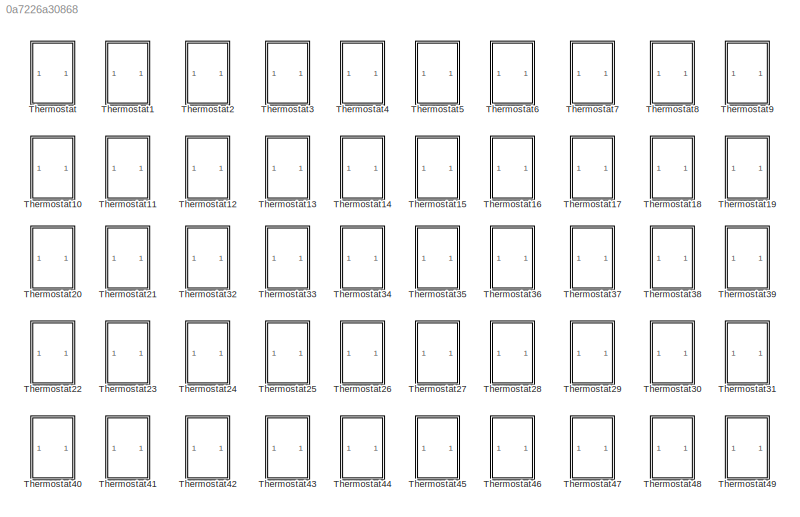
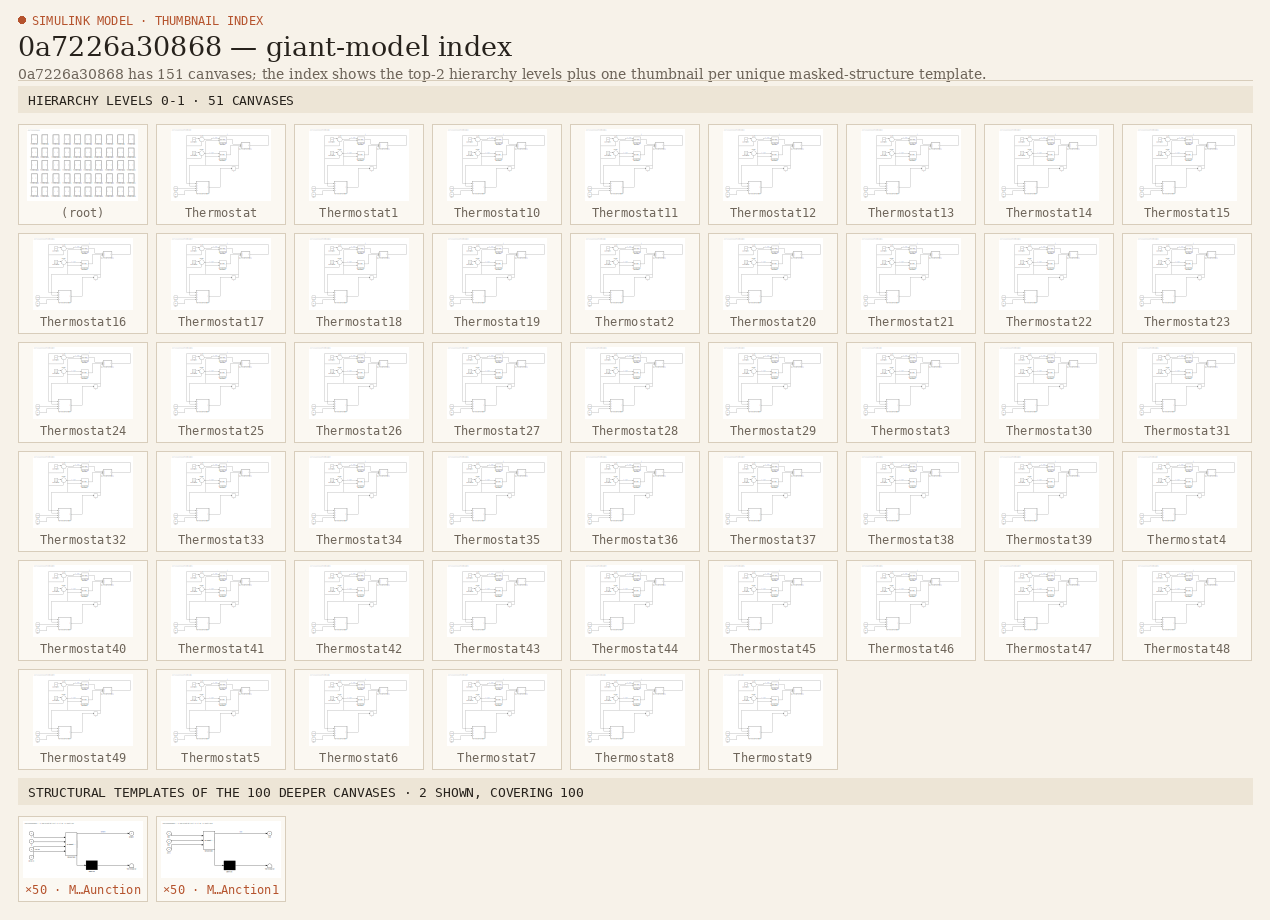
[diagram: thumbnail index - top-2 hierarchy levels (51 canvases) + 2 structural-template representatives of the remaining 100 canvases]
MODEL slx_0a7226a30868
KIND model
BLOCK [SubSystem] Thermostat
  Ports = []
  RequestExecContextInheritance = off
BLOCK [Constant] Thermostat/Constant
  Value = 10
BLOCK [Constant] Thermostat/Constant1
  Value = 37.78
BLOCK [DiscreteIntegrator] Thermostat/Discrete-Time Integrator
  ExternalReset = either
  InitialCondition = 25
  InitialConditionSetting = State (most efficient)
  Ports = [2, 1]
  SampleTime = -1
BLOCK [DiscreteIntegrator] Thermostat/Discrete-Time Integrator1
  ExternalReset = either
  InitialCondition = 22.78
  InitialConditionSetting = State (most efficient)
  Ports = [2, 1]
  SampleTime = -1
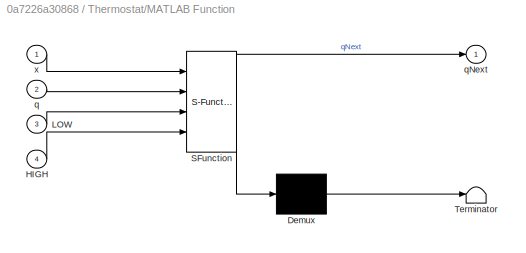
BLOCK [SubSystem] Thermostat/MATLAB Function
  ErrorFcn = Stateflow.Translate.translate
  PermitHierarchicalResolution = ExplicitOnly
  Ports = [4, 1]
  RequestExecContextInheritance = off
  SFBlockType = MATLAB Function
  TreatAsAtomicUnit = on
BLOCK [Demux] Thermostat/MATLAB Function/ Demux 
  Outputs = 1
  Ports = [1, 1]
BLOCK [S-Function] Thermostat/MATLAB Function/ SFunction 
  EnableBusSupport = on
  FunctionName = sf_sfun
  PortCounts = [4 2]
  Ports = [4, 2]
  Tag = Stateflow S-Function thermostat 2
BLOCK [Terminator] Thermostat/MATLAB Function/ Terminator 
BLOCK [Inport] Thermostat/MATLAB Function/HIGH
  IconDisplay = Port number
  Port = 4
BLOCK [Inport] Thermostat/MATLAB Function/LOW
  IconDisplay = Port number
  Port = 3
BLOCK [Inport] Thermostat/MATLAB Function/q
  IconDisplay = Port number
  Port = 2
BLOCK [Outport] Thermostat/MATLAB Function/qNext
  IconDisplay = Port number
BLOCK [Inport] Thermostat/MATLAB Function/x
  IconDisplay = Port number
BLOCK [SubSystem] Thermostat/MATLAB Function1
  ErrorFcn = Stateflow.Translate.translate
  PermitHierarchicalResolution = ExplicitOnly
  Ports = [3, 1]
  RequestExecContextInheritance = off
  SFBlockType = MATLAB Function
  TreatAsAtomicUnit = on
BLOCK [Demux] Thermostat/MATLAB Function1/ Demux 
  Outputs = 1
  Ports = [1, 1]
BLOCK [S-Function] Thermostat/MATLAB Function1/ SFunction 
  EnableBusSupport = on
  FunctionName = sf_sfun
  PortCounts = [3 2]
  Ports = [3, 2]
  Tag = Stateflow S-Function thermostat 1
BLOCK [Terminator] Thermostat/MATLAB Function1/ Terminator 
BLOCK [Inport] Thermostat/MATLAB Function1/ctrl
  IconDisplay = Port number
  Port = 3
BLOCK [Inport] Thermostat/MATLAB Function1/in0
  IconDisplay = Port number
BLOCK [Inport] Thermostat/MATLAB Function1/in1
  IconDisplay = Port number
  Port = 2
BLOCK [Outport] Thermostat/MATLAB Function1/out
  IconDisplay = Port number
BLOCK [Sum] Thermostat/Sum
  IconShape = round
  InputSameDT = off
  Inputs = |+-
  OutDataTypeStr = Inherit: Inherit via internal rule
  Ports = [2, 1]
  SaturateOnIntegerOverflow = off
BLOCK [Sum] Thermostat/Sum1
  IconShape = round
  InputSameDT = off
  Inputs = |+-
  OutDataTypeStr = Inherit: Inherit via internal rule
  Ports = [2, 1]
  SaturateOnIntegerOverflow = off
BLOCK [Constant] Thermostat/high
  Value = 25
BLOCK [Constant] Thermostat/low
  Value = 22.78
BLOCK [Memory] Thermostat/q
BLOCK [SubSystem] Thermostat1
  Ports = []
  RequestExecContextInheritance = off
BLOCK [Constant] Thermostat1/Constant
  Value = 10
BLOCK [Constant] Thermostat1/Constant1
  Value = 37.78
BLOCK [DiscreteIntegrator] Thermostat1/Discrete-Time Integrator
  ExternalReset = either
  InitialCondition = 25
  InitialConditionSetting = State (most efficient)
  Ports = [2, 1]
  SampleTime = -1
BLOCK [DiscreteIntegrator] Thermostat1/Discrete-Time Integrator1
  ExternalReset = either
  InitialCondition = 22.78
  InitialConditionSetting = State (most efficient)
  Ports = [2, 1]
  SampleTime = -1
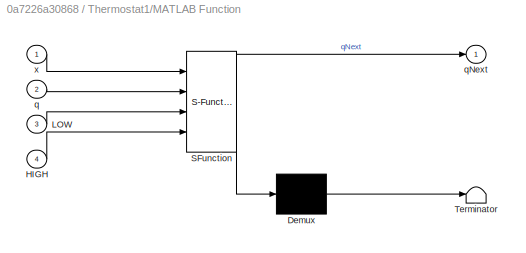
BLOCK [SubSystem] Thermostat1/MATLAB Function
  ErrorFcn = Stateflow.Translate.translate
  PermitHierarchicalResolution = ExplicitOnly
  Ports = [4, 1]
  RequestExecContextInheritance = off
  SFBlockType = MATLAB Function
  TreatAsAtomicUnit = on
BLOCK [Demux] Thermostat1/MATLAB Function/ Demux 
  Outputs = 1
  Ports = [1, 1]
BLOCK [S-Function] Thermostat1/MATLAB Function/ SFunction 
  EnableBusSupport = on
  FunctionName = sf_sfun
  PortCounts = [4 2]
  Ports = [4, 2]
  Tag = Stateflow S-Function thermostat 3
BLOCK [Terminator] Thermostat1/MATLAB Function/ Terminator 
BLOCK [Inport] Thermostat1/MATLAB Function/HIGH
  IconDisplay = Port number
  Port = 4
BLOCK [Inport] Thermostat1/MATLAB Function/LOW
  IconDisplay = Port number
  Port = 3
BLOCK [Inport] Thermostat1/MATLAB Function/q
  IconDisplay = Port number
  Port = 2
BLOCK [Outport] Thermostat1/MATLAB Function/qNext
  IconDisplay = Port number
BLOCK [Inport] Thermostat1/MATLAB Function/x
  IconDisplay = Port number
BLOCK [SubSystem] Thermostat1/MATLAB Function1
  ErrorFcn = Stateflow.Translate.translate
  PermitHierarchicalResolution = ExplicitOnly
  Ports = [3, 1]
  RequestExecContextInheritance = off
  SFBlockType = MATLAB Function
  TreatAsAtomicUnit = on
BLOCK [Demux] Thermostat1/MATLAB Function1/ Demux 
  Outputs = 1
  Ports = [1, 1]
BLOCK [S-Function] Thermostat1/MATLAB Function1/ SFunction 
  EnableBusSupport = on
  FunctionName = sf_sfun
  PortCounts = [3 2]
  Ports = [3, 2]
  Tag = Stateflow S-Function thermostat 4
BLOCK [Terminator] Thermostat1/MATLAB Function1/ Terminator 
BLOCK [Inport] Thermostat1/MATLAB Function1/ctrl
  IconDisplay = Port number
  Port = 3
BLOCK [Inport] Thermostat1/MATLAB Function1/in0
  IconDisplay = Port number
BLOCK [Inport] Thermostat1/MATLAB Function1/in1
  IconDisplay = Port number
  Port = 2
BLOCK [Outport] Thermostat1/MATLAB Function1/out
  IconDisplay = Port number
BLOCK [Sum] Thermostat1/Sum
  IconShape = round
  InputSameDT = off
  Inputs = |+-
  OutDataTypeStr = Inherit: Inherit via internal rule
  Ports = [2, 1]
  SaturateOnIntegerOverflow = off
BLOCK [Sum] Thermostat1/Sum1
  IconShape = round
  InputSameDT = off
  Inputs = |+-
  OutDataTypeStr = Inherit: Inherit via internal rule
  Ports = [2, 1]
  SaturateOnIntegerOverflow = off
BLOCK [Constant] Thermostat1/high
  Value = 25
BLOCK [Constant] Thermostat1/low
  Value = 22.78
BLOCK [Memory] Thermostat1/q
BLOCK [SubSystem] Thermostat10
  Ports = []
  RequestExecContextInheritance = off
BLOCK [Constant] Thermostat10/Constant
  Value = 10
BLOCK [Constant] Thermostat10/Constant1
  Value = 37.78
BLOCK [DiscreteIntegrator] Thermostat10/Discrete-Time Integrator
  ExternalReset = either
  InitialCondition = 25
  InitialConditionSetting = State (most efficient)
  Ports = [2, 1]
  SampleTime = -1
BLOCK [DiscreteIntegrator] Thermostat10/Discrete-Time Integrator1
  ExternalReset = either
  InitialCondition = 22.78
  InitialConditionSetting = State (most efficient)
  Ports = [2, 1]
  SampleTime = -1
BLOCK [SubSystem] Thermostat10/MATLAB Function
  ErrorFcn = Stateflow.Translate.translate
  PermitHierarchicalResolution = ExplicitOnly
  Ports = [4, 1]
  RequestExecContextInheritance = off
  SFBlockType = MATLAB Function
  TreatAsAtomicUnit = on
BLOCK [Demux] Thermostat10/MATLAB Function/ Demux 
  Outputs = 1
  Ports = [1, 1]
BLOCK [S-Function] Thermostat10/MATLAB Function/ SFunction 
  EnableBusSupport = on
  FunctionName = sf_sfun
  PortCounts = [4 2]
  Ports = [4, 2]
  Tag = Stateflow S-Function thermostat 21
BLOCK [Terminator] Thermostat10/MATLAB Function/ Terminator 
BLOCK [Inport] Thermostat10/MATLAB Function/HIGH
  IconDisplay = Port number
  Port = 4
BLOCK [Inport] Thermostat10/MATLAB Function/LOW
  IconDisplay = Port number
  Port = 3
BLOCK [Inport] Thermostat10/MATLAB Function/q
  IconDisplay = Port number
  Port = 2
BLOCK [Outport] Thermostat10/MATLAB Function/qNext
  IconDisplay = Port number
BLOCK [Inport] Thermostat10/MATLAB Function/x
  IconDisplay = Port number
BLOCK [SubSystem] Thermostat10/MATLAB Function1
  ErrorFcn = Stateflow.Translate.translate
  PermitHierarchicalResolution = ExplicitOnly
  Ports = [3, 1]
  RequestExecContextInheritance = off
  SFBlockType = MATLAB Function
  TreatAsAtomicUnit = on
BLOCK [Demux] Thermostat10/MATLAB Function1/ Demux 
  Outputs = 1
  Ports = [1, 1]
BLOCK [S-Function] Thermostat10/MATLAB Function1/ SFunction 
  EnableBusSupport = on
  FunctionName = sf_sfun
  PortCounts = [3 2]
  Ports = [3, 2]
  Tag = Stateflow S-Function thermostat 22
BLOCK [Terminator] Thermostat10/MATLAB Function1/ Terminator 
BLOCK [Inport] Thermostat10/MATLAB Function1/ctrl
  IconDisplay = Port number
  Port = 3
BLOCK [Inport] Thermostat10/MATLAB Function1/in0
  IconDisplay = Port number
BLOCK [Inport] Thermostat10/MATLAB Function1/in1
  IconDisplay = Port number
  Port = 2
BLOCK [Outport] Thermostat10/MATLAB Function1/out
  IconDisplay = Port number
BLOCK [Sum] Thermostat10/Sum
  IconShape = round
  InputSameDT = off
  Inputs = |+-
  OutDataTypeStr = Inherit: Inherit via internal rule
  Ports = [2, 1]
  SaturateOnIntegerOverflow = off
BLOCK [Sum] Thermostat10/Sum1
  IconShape = round
  InputSameDT = off
  Inputs = |+-
  OutDataTypeStr = Inherit: Inherit via internal rule
  Ports = [2, 1]
  SaturateOnIntegerOverflow = off
BLOCK [Constant] Thermostat10/high
  Value = 25
BLOCK [Constant] Thermostat10/low
  Value = 22.78
BLOCK [Memory] Thermostat10/q
BLOCK [SubSystem] Thermostat11
  Ports = []
  RequestExecContextInheritance = off
BLOCK [Constant] Thermostat11/Constant
  Value = 10
BLOCK [Constant] Thermostat11/Constant1
  Value = 37.78
BLOCK [DiscreteIntegrator] Thermostat11/Discrete-Time Integrator
  ExternalReset = either
  InitialCondition = 25
  InitialConditionSetting = State (most efficient)
  Ports = [2, 1]
  SampleTime = -1
BLOCK [DiscreteIntegrator] Thermostat11/Discrete-Time Integrator1
  ExternalReset = either
  InitialCondition = 22.78
  InitialConditionSetting = State (most efficient)
  Ports = [2, 1]
  SampleTime = -1
BLOCK [SubSystem] Thermostat11/MATLAB Function
  ErrorFcn = Stateflow.Translate.translate
  PermitHierarchicalResolution = ExplicitOnly
  Ports = [4, 1]
  RequestExecContextInheritance = off
  SFBlockType = MATLAB Function
  TreatAsAtomicUnit = on
BLOCK [Demux] Thermostat11/MATLAB Function/ Demux 
  Outputs = 1
  Ports = [1, 1]
BLOCK [S-Function] Thermostat11/MATLAB Function/ SFunction 
  EnableBusSupport = on
  FunctionName = sf_sfun
  PortCounts = [4 2]
  Ports = [4, 2]
  Tag = Stateflow S-Function thermostat 23
BLOCK [Terminator] Thermostat11/MATLAB Function/ Terminator 
BLOCK [Inport] Thermostat11/MATLAB Function/HIGH
  IconDisplay = Port number
  Port = 4
BLOCK [Inport] Thermostat11/MATLAB Function/LOW
  IconDisplay = Port number
  Port = 3
BLOCK [Inport] Thermostat11/MATLAB Function/q
  IconDisplay = Port number
  Port = 2
BLOCK [Outport] Thermostat11/MATLAB Function/qNext
  IconDisplay = Port number
BLOCK [Inport] Thermostat11/MATLAB Function/x
  IconDisplay = Port number
BLOCK [SubSystem] Thermostat11/MATLAB Function1
  ErrorFcn = Stateflow.Translate.translate
  PermitHierarchicalResolution = ExplicitOnly
  Ports = [3, 1]
  RequestExecContextInheritance = off
  SFBlockType = MATLAB Function
  TreatAsAtomicUnit = on
BLOCK [Demux] Thermostat11/MATLAB Function1/ Demux 
  Outputs = 1
  Ports = [1, 1]
BLOCK [S-Function] Thermostat11/MATLAB Function1/ SFunction 
  EnableBusSupport = on
  FunctionName = sf_sfun
  PortCounts = [3 2]
  Ports = [3, 2]
  Tag = Stateflow S-Function thermostat 24
BLOCK [Terminator] Thermostat11/MATLAB Function1/ Terminator 
BLOCK [Inport] Thermostat11/MATLAB Function1/ctrl
  IconDisplay = Port number
  Port = 3
BLOCK [Inport] Thermostat11/MATLAB Function1/in0
  IconDisplay = Port number
BLOCK [Inport] Thermostat11/MATLAB Function1/in1
  IconDisplay = Port number
  Port = 2
BLOCK [Outport] Thermostat11/MATLAB Function1/out
  IconDisplay = Port number
BLOCK [Sum] Thermostat11/Sum
  IconShape = round
  InputSameDT = off
  Inputs = |+-
  OutDataTypeStr = Inherit: Inherit via internal rule
  Ports = [2, 1]
  SaturateOnIntegerOverflow = off
BLOCK [Sum] Thermostat11/Sum1
  IconShape = round
  InputSameDT = off
  Inputs = |+-
  OutDataTypeStr = Inherit: Inherit via internal rule
  Ports = [2, 1]
  SaturateOnIntegerOverflow = off
BLOCK [Constant] Thermostat11/high
  Value = 25
BLOCK [Constant] Thermostat11/low
  Value = 22.78
BLOCK [Memory] Thermostat11/q
BLOCK [SubSystem] Thermostat12
  Ports = []
  RequestExecContextInheritance = off
BLOCK [Constant] Thermostat12/Constant
  Value = 10
BLOCK [Constant] Thermostat12/Constant1
  Value = 37.78
BLOCK [DiscreteIntegrator] Thermostat12/Discrete-Time Integrator
  ExternalReset = either
  InitialCondition = 25
  InitialConditionSetting = State (most efficient)
  Ports = [2, 1]
  SampleTime = -1
BLOCK [DiscreteIntegrator] Thermostat12/Discrete-Time Integrator1
  ExternalReset = either
  InitialCondition = 22.78
  InitialConditionSetting = State (most efficient)
  Ports = [2, 1]
  SampleTime = -1
BLOCK [SubSystem] Thermostat12/MATLAB Function
  ErrorFcn = Stateflow.Translate.translate
  PermitHierarchicalResolution = ExplicitOnly
  Ports = [4, 1]
  RequestExecContextInheritance = off
  SFBlockType = MATLAB Function
  TreatAsAtomicUnit = on
BLOCK [Demux] Thermostat12/MATLAB Function/ Demux 
  Outputs = 1
  Ports = [1, 1]
BLOCK [S-Function] Thermostat12/MATLAB Function/ SFunction 
  EnableBusSupport = on
  FunctionName = sf_sfun
  PortCounts = [4 2]
  Ports = [4, 2]
  Tag = Stateflow S-Function thermostat 25
BLOCK [Terminator] Thermostat12/MATLAB Function/ Terminator 
BLOCK [Inport] Thermostat12/MATLAB Function/HIGH
  IconDisplay = Port number
  Port = 4
BLOCK [Inport] Thermostat12/MATLAB Function/LOW
  IconDisplay = Port number
  Port = 3
BLOCK [Inport] Thermostat12/MATLAB Function/q
  IconDisplay = Port number
  Port = 2
BLOCK [Outport] Thermostat12/MATLAB Function/qNext
  IconDisplay = Port number
BLOCK [Inport] Thermostat12/MATLAB Function/x
  IconDisplay = Port number
BLOCK [SubSystem] Thermostat12/MATLAB Function1
  ErrorFcn = Stateflow.Translate.translate
  PermitHierarchicalResolution = ExplicitOnly
  Ports = [3, 1]
  RequestExecContextInheritance = off
  SFBlockType = MATLAB Function
  TreatAsAtomicUnit = on
BLOCK [Demux] Thermostat12/MATLAB Function1/ Demux 
  Outputs = 1
  Ports = [1, 1]
BLOCK [S-Function] Thermostat12/MATLAB Function1/ SFunction 
  EnableBusSupport = on
  FunctionName = sf_sfun
  PortCounts = [3 2]
  Ports = [3, 2]
  Tag = Stateflow S-Function thermostat 26
BLOCK [Terminator] Thermostat12/MATLAB Function1/ Terminator 
BLOCK [Inport] Thermostat12/MATLAB Function1/ctrl
  IconDisplay = Port number
  Port = 3
BLOCK [Inport] Thermostat12/MATLAB Function1/in0
  IconDisplay = Port number
BLOCK [Inport] Thermostat12/MATLAB Function1/in1
  IconDisplay = Port number
  Port = 2
BLOCK [Outport] Thermostat12/MATLAB Function1/out
  IconDisplay = Port number
BLOCK [Sum] Thermostat12/Sum
  IconShape = round
  InputSameDT = off
  Inputs = |+-
  OutDataTypeStr = Inherit: Inherit via internal rule
  Ports = [2, 1]
  SaturateOnIntegerOverflow = off
BLOCK [Sum] Thermostat12/Sum1
  IconShape = round
  InputSameDT = off
  Inputs = |+-
  OutDataTypeStr = Inherit: Inherit via internal rule
  Ports = [2, 1]
  SaturateOnIntegerOverflow = off
BLOCK [Constant] Thermostat12/high
  Value = 25
BLOCK [Constant] Thermostat12/low
  Value = 22.78
BLOCK [Memory] Thermostat12/q
BLOCK [SubSystem] Thermostat13
  Ports = []
  RequestExecContextInheritance = off
BLOCK [Constant] Thermostat13/Constant
  Value = 10
BLOCK [Constant] Thermostat13/Constant1
  Value = 37.78
BLOCK [DiscreteIntegrator] Thermostat13/Discrete-Time Integrator
  ExternalReset = either
  InitialCondition = 25
  InitialConditionSetting = State (most efficient)
  Ports = [2, 1]
  SampleTime = -1
BLOCK [DiscreteIntegrator] Thermostat13/Discrete-Time Integrator1
  ExternalReset = either
  InitialCondition = 22.78
  InitialConditionSetting = State (most efficient)
  Ports = [2, 1]
  SampleTime = -1
BLOCK [SubSystem] Thermostat13/MATLAB Function
  ErrorFcn = Stateflow.Translate.translate
  PermitHierarchicalResolution = ExplicitOnly
  Ports = [4, 1]
  RequestExecContextInheritance = off
  SFBlockType = MATLAB Function
  TreatAsAtomicUnit = on
BLOCK [Demux] Thermostat13/MATLAB Function/ Demux 
  Outputs = 1
  Ports = [1, 1]
BLOCK [S-Function] Thermostat13/MATLAB Function/ SFunction 
  EnableBusSupport = on
  FunctionName = sf_sfun
  PortCounts = [4 2]
  Ports = [4, 2]
  Tag = Stateflow S-Function thermostat 27
BLOCK [Terminator] Thermostat13/MATLAB Function/ Terminator 
BLOCK [Inport] Thermostat13/MATLAB Function/HIGH
  IconDisplay = Port number
  Port = 4
BLOCK [Inport] Thermostat13/MATLAB Function/LOW
  IconDisplay = Port number
  Port = 3
BLOCK [Inport] Thermostat13/MATLAB Function/q
  IconDisplay = Port number
  Port = 2
BLOCK [Outport] Thermostat13/MATLAB Function/qNext
  IconDisplay = Port number
BLOCK [Inport] Thermostat13/MATLAB Function/x
  IconDisplay = Port number
BLOCK [SubSystem] Thermostat13/MATLAB Function1
  ErrorFcn = Stateflow.Translate.translate
  PermitHierarchicalResolution = ExplicitOnly
  Ports = [3, 1]
  RequestExecContextInheritance = off
  SFBlockType = MATLAB Function
  TreatAsAtomicUnit = on
BLOCK [Demux] Thermostat13/MATLAB Function1/ Demux 
  Outputs = 1
  Ports = [1, 1]
BLOCK [S-Function] Thermostat13/MATLAB Function1/ SFunction 
  EnableBusSupport = on
  FunctionName = sf_sfun
  PortCounts = [3 2]
  Ports = [3, 2]
  Tag = Stateflow S-Function thermostat 28
BLOCK [Terminator] Thermostat13/MATLAB Function1/ Terminator 
BLOCK [Inport] Thermostat13/MATLAB Function1/ctrl
  IconDisplay = Port number
  Port = 3
BLOCK [Inport] Thermostat13/MATLAB Function1/in0
  IconDisplay = Port number
BLOCK [Inport] Thermostat13/MATLAB Function1/in1
  IconDisplay = Port number
  Port = 2
BLOCK [Outport] Thermostat13/MATLAB Function1/out
  IconDisplay = Port number
BLOCK [Sum] Thermostat13/Sum
  IconShape = round
  InputSameDT = off
  Inputs = |+-
  OutDataTypeStr = Inherit: Inherit via internal rule
  Ports = [2, 1]
  SaturateOnIntegerOverflow = off
BLOCK [Sum] Thermostat13/Sum1
  IconShape = round
  InputSameDT = off
  Inputs = |+-
  OutDataTypeStr = Inherit: Inherit via internal rule
  Ports = [2, 1]
  SaturateOnIntegerOverflow = off
BLOCK [Constant] Thermostat13/high
  Value = 25
BLOCK [Constant] Thermostat13/low
  Value = 22.78
BLOCK [Memory] Thermostat13/q
BLOCK [SubSystem] Thermostat14
  Ports = []
  RequestExecContextInheritance = off
BLOCK [Constant] Thermostat14/Constant
  Value = 10
BLOCK [Constant] Thermostat14/Constant1
  Value = 37.78
BLOCK [DiscreteIntegrator] Thermostat14/Discrete-Time Integrator
  ExternalReset = either
  InitialCondition = 25
  InitialConditionSetting = State (most efficient)
  Ports = [2, 1]
  SampleTime = -1
BLOCK [DiscreteIntegrator] Thermostat14/Discrete-Time Integrator1
  ExternalReset = either
  InitialCondition = 22.78
  InitialConditionSetting = State (most efficient)
  Ports = [2, 1]
  SampleTime = -1
BLOCK [SubSystem] Thermostat14/MATLAB Function
  ErrorFcn = Stateflow.Translate.translate
  PermitHierarchicalResolution = ExplicitOnly
  Ports = [4, 1]
  RequestExecContextInheritance = off
  SFBlockType = MATLAB Function
  TreatAsAtomicUnit = on
BLOCK [Demux] Thermostat14/MATLAB Function/ Demux 
  Outputs = 1
  Ports = [1, 1]
BLOCK [S-Function] Thermostat14/MATLAB Function/ SFunction 
  EnableBusSupport = on
  FunctionName = sf_sfun
  PortCounts = [4 2]
  Ports = [4, 2]
  Tag = Stateflow S-Function thermostat 29
BLOCK [Terminator] Thermostat14/MATLAB Function/ Terminator 
BLOCK [Inport] Thermostat14/MATLAB Function/HIGH
  IconDisplay = Port number
  Port = 4
BLOCK [Inport] Thermostat14/MATLAB Function/LOW
  IconDisplay = Port number
  Port = 3
BLOCK [Inport] Thermostat14/MATLAB Function/q
  IconDisplay = Port number
  Port = 2
BLOCK [Outport] Thermostat14/MATLAB Function/qNext
  IconDisplay = Port number
BLOCK [Inport] Thermostat14/MATLAB Function/x
  IconDisplay = Port number
BLOCK [SubSystem] Thermostat14/MATLAB Function1
  ErrorFcn = Stateflow.Translate.translate
  PermitHierarchicalResolution = ExplicitOnly
  Ports = [3, 1]
  RequestExecContextInheritance = off
  SFBlockType = MATLAB Function
  TreatAsAtomicUnit = on
BLOCK [Demux] Thermostat14/MATLAB Function1/ Demux 
  Outputs = 1
  Ports = [1, 1]
BLOCK [S-Function] Thermostat14/MATLAB Function1/ SFunction 
  EnableBusSupport = on
  FunctionName = sf_sfun
  PortCounts = [3 2]
  Ports = [3, 2]
  Tag = Stateflow S-Function thermostat 30
BLOCK [Terminator] Thermostat14/MATLAB Function1/ Terminator 
BLOCK [Inport] Thermostat14/MATLAB Function1/ctrl
  IconDisplay = Port number
  Port = 3
BLOCK [Inport] Thermostat14/MATLAB Function1/in0
  IconDisplay = Port number
BLOCK [Inport] Thermostat14/MATLAB Function1/in1
  IconDisplay = Port number
  Port = 2
BLOCK [Outport] Thermostat14/MATLAB Function1/out
  IconDisplay = Port number
BLOCK [Sum] Thermostat14/Sum
  IconShape = round
  InputSameDT = off
  Inputs = |+-
  OutDataTypeStr = Inherit: Inherit via internal rule
  Ports = [2, 1]
  SaturateOnIntegerOverflow = off
BLOCK [Sum] Thermostat14/Sum1
  IconShape = round
  InputSameDT = off
  Inputs = |+-
  OutDataTypeStr = Inherit: Inherit via internal rule
  Ports = [2, 1]
  SaturateOnIntegerOverflow = off
BLOCK [Constant] Thermostat14/high
  Value = 25
BLOCK [Constant] Thermostat14/low
  Value = 22.78
BLOCK [Memory] Thermostat14/q
BLOCK [SubSystem] Thermostat15
  Ports = []
  RequestExecContextInheritance = off
BLOCK [Constant] Thermostat15/Constant
  Value = 10
BLOCK [Constant] Thermostat15/Constant1
  Value = 37.78
BLOCK [DiscreteIntegrator] Thermostat15/Discrete-Time Integrator
  ExternalReset = either
  InitialCondition = 25
  InitialConditionSetting = State (most efficient)
  Ports = [2, 1]
  SampleTime = -1
BLOCK [DiscreteIntegrator] Thermostat15/Discrete-Time Integrator1
  ExternalReset = either
  InitialCondition = 22.78
  InitialConditionSetting = State (most efficient)
  Ports = [2, 1]
  SampleTime = -1
BLOCK [SubSystem] Thermostat15/MATLAB Function
  ErrorFcn = Stateflow.Translate.translate
  PermitHierarchicalResolution = ExplicitOnly
  Ports = [4, 1]
  RequestExecContextInheritance = off
  SFBlockType = MATLAB Function
  TreatAsAtomicUnit = on
BLOCK [Demux] Thermostat15/MATLAB Function/ Demux 
  Outputs = 1
  Ports = [1, 1]
BLOCK [S-Function] Thermostat15/MATLAB Function/ SFunction 
  EnableBusSupport = on
  FunctionName = sf_sfun
  PortCounts = [4 2]
  Ports = [4, 2]
  Tag = Stateflow S-Function thermostat 31
BLOCK [Terminator] Thermostat15/MATLAB Function/ Terminator 
BLOCK [Inport] Thermostat15/MATLAB Function/HIGH
  IconDisplay = Port number
  Port = 4
BLOCK [Inport] Thermostat15/MATLAB Function/LOW
  IconDisplay = Port number
  Port = 3
BLOCK [Inport] Thermostat15/MATLAB Function/q
  IconDisplay = Port number
  Port = 2
BLOCK [Outport] Thermostat15/MATLAB Function/qNext
  IconDisplay = Port number
BLOCK [Inport] Thermostat15/MATLAB Function/x
  IconDisplay = Port number
BLOCK [SubSystem] Thermostat15/MATLAB Function1
  ErrorFcn = Stateflow.Translate.translate
  PermitHierarchicalResolution = ExplicitOnly
  Ports = [3, 1]
  RequestExecContextInheritance = off
  SFBlockType = MATLAB Function
  TreatAsAtomicUnit = on
BLOCK [Demux] Thermostat15/MATLAB Function1/ Demux 
  Outputs = 1
  Ports = [1, 1]
BLOCK [S-Function] Thermostat15/MATLAB Function1/ SFunction 
  EnableBusSupport = on
  FunctionName = sf_sfun
  PortCounts = [3 2]
  Ports = [3, 2]
  Tag = Stateflow S-Function thermostat 32
BLOCK [Terminator] Thermostat15/MATLAB Function1/ Terminator 
BLOCK [Inport] Thermostat15/MATLAB Function1/ctrl
  IconDisplay = Port number
  Port = 3
BLOCK [Inport] Thermostat15/MATLAB Function1/in0
  IconDisplay = Port number
BLOCK [Inport] Thermostat15/MATLAB Function1/in1
  IconDisplay = Port number
  Port = 2
BLOCK [Outport] Thermostat15/MATLAB Function1/out
  IconDisplay = Port number
BLOCK [Sum] Thermostat15/Sum
  IconShape = round
  InputSameDT = off
  Inputs = |+-
  OutDataTypeStr = Inherit: Inherit via internal rule
  Ports = [2, 1]
  SaturateOnIntegerOverflow = off
BLOCK [Sum] Thermostat15/Sum1
  IconShape = round
  InputSameDT = off
  Inputs = |+-
  OutDataTypeStr = Inherit: Inherit via internal rule
  Ports = [2, 1]
  SaturateOnIntegerOverflow = off
BLOCK [Constant] Thermostat15/high
  Value = 25
BLOCK [Constant] Thermostat15/low
  Value = 22.78
BLOCK [Memory] Thermostat15/q
BLOCK [SubSystem] Thermostat16
  Ports = []
  RequestExecContextInheritance = off
BLOCK [Constant] Thermostat16/Constant
  Value = 10
BLOCK [Constant] Thermostat16/Constant1
  Value = 37.78
BLOCK [DiscreteIntegrator] Thermostat16/Discrete-Time Integrator
  ExternalReset = either
  InitialCondition = 25
  InitialConditionSetting = State (most efficient)
  Ports = [2, 1]
  SampleTime = -1
BLOCK [DiscreteIntegrator] Thermostat16/Discrete-Time Integrator1
  ExternalReset = either
  InitialCondition = 22.78
  InitialConditionSetting = State (most efficient)
  Ports = [2, 1]
  SampleTime = -1
BLOCK [SubSystem] Thermostat16/MATLAB Function
  ErrorFcn = Stateflow.Translate.translate
  PermitHierarchicalResolution = ExplicitOnly
  Ports = [4, 1]
  RequestExecContextInheritance = off
  SFBlockType = MATLAB Function
  TreatAsAtomicUnit = on
BLOCK [Demux] Thermostat16/MATLAB Function/ Demux 
  Outputs = 1
  Ports = [1, 1]
BLOCK [S-Function] Thermostat16/MATLAB Function/ SFunction 
  EnableBusSupport = on
  FunctionName = sf_sfun
  PortCounts = [4 2]
  Ports = [4, 2]
  Tag = Stateflow S-Function thermostat 33
BLOCK [Terminator] Thermostat16/MATLAB Function/ Terminator 
BLOCK [Inport] Thermostat16/MATLAB Function/HIGH
  IconDisplay = Port number
  Port = 4
BLOCK [Inport] Thermostat16/MATLAB Function/LOW
  IconDisplay = Port number
  Port = 3
BLOCK [Inport] Thermostat16/MATLAB Function/q
  IconDisplay = Port number
  Port = 2
BLOCK [Outport] Thermostat16/MATLAB Function/qNext
  IconDisplay = Port number
BLOCK [Inport] Thermostat16/MATLAB Function/x
  IconDisplay = Port number
BLOCK [SubSystem] Thermostat16/MATLAB Function1
  ErrorFcn = Stateflow.Translate.translate
  PermitHierarchicalResolution = ExplicitOnly
  Ports = [3, 1]
  RequestExecContextInheritance = off
  SFBlockType = MATLAB Function
  TreatAsAtomicUnit = on
BLOCK [Demux] Thermostat16/MATLAB Function1/ Demux 
  Outputs = 1
  Ports = [1, 1]
BLOCK [S-Function] Thermostat16/MATLAB Function1/ SFunction 
  EnableBusSupport = on
  FunctionName = sf_sfun
  PortCounts = [3 2]
  Ports = [3, 2]
  Tag = Stateflow S-Function thermostat 34
BLOCK [Terminator] Thermostat16/MATLAB Function1/ Terminator 
BLOCK [Inport] Thermostat16/MATLAB Function1/ctrl
  IconDisplay = Port number
  Port = 3
BLOCK [Inport] Thermostat16/MATLAB Function1/in0
  IconDisplay = Port number
BLOCK [Inport] Thermostat16/MATLAB Function1/in1
  IconDisplay = Port number
  Port = 2
BLOCK [Outport] Thermostat16/MATLAB Function1/out
  IconDisplay = Port number
BLOCK [Sum] Thermostat16/Sum
  IconShape = round
  InputSameDT = off
  Inputs = |+-
  OutDataTypeStr = Inherit: Inherit via internal rule
  Ports = [2, 1]
  SaturateOnIntegerOverflow = off
BLOCK [Sum] Thermostat16/Sum1
  IconShape = round
  InputSameDT = off
  Inputs = |+-
  OutDataTypeStr = Inherit: Inherit via internal rule
  Ports = [2, 1]
  SaturateOnIntegerOverflow = off
BLOCK [Constant] Thermostat16/high
  Value = 25
BLOCK [Constant] Thermostat16/low
  Value = 22.78
BLOCK [Memory] Thermostat16/q
BLOCK [SubSystem] Thermostat17
  Ports = []
  RequestExecContextInheritance = off
BLOCK [Constant] Thermostat17/Constant
  Value = 10
BLOCK [Constant] Thermostat17/Constant1
  Value = 37.78
BLOCK [DiscreteIntegrator] Thermostat17/Discrete-Time Integrator
  ExternalReset = either
  InitialCondition = 25
  InitialConditionSetting = State (most efficient)
  Ports = [2, 1]
  SampleTime = -1
BLOCK [DiscreteIntegrator] Thermostat17/Discrete-Time Integrator1
  ExternalReset = either
  InitialCondition = 22.78
  InitialConditionSetting = State (most efficient)
  Ports = [2, 1]
  SampleTime = -1
BLOCK [SubSystem] Thermostat17/MATLAB Function
  ErrorFcn = Stateflow.Translate.translate
  PermitHierarchicalResolution = ExplicitOnly
  Ports = [4, 1]
  RequestExecContextInheritance = off
  SFBlockType = MATLAB Function
  TreatAsAtomicUnit = on
BLOCK [Demux] Thermostat17/MATLAB Function/ Demux 
  Outputs = 1
  Ports = [1, 1]
BLOCK [S-Function] Thermostat17/MATLAB Function/ SFunction 
  EnableBusSupport = on
  FunctionName = sf_sfun
  PortCounts = [4 2]
  Ports = [4, 2]
  Tag = Stateflow S-Function thermostat 35
BLOCK [Terminator] Thermostat17/MATLAB Function/ Terminator 
BLOCK [Inport] Thermostat17/MATLAB Function/HIGH
  IconDisplay = Port number
  Port = 4
BLOCK [Inport] Thermostat17/MATLAB Function/LOW
  IconDisplay = Port number
  Port = 3
BLOCK [Inport] Thermostat17/MATLAB Function/q
  IconDisplay = Port number
  Port = 2
BLOCK [Outport] Thermostat17/MATLAB Function/qNext
  IconDisplay = Port number
BLOCK [Inport] Thermostat17/MATLAB Function/x
  IconDisplay = Port number
BLOCK [SubSystem] Thermostat17/MATLAB Function1
  ErrorFcn = Stateflow.Translate.translate
  PermitHierarchicalResolution = ExplicitOnly
  Ports = [3, 1]
  RequestExecContextInheritance = off
  SFBlockType = MATLAB Function
  TreatAsAtomicUnit = on
BLOCK [Demux] Thermostat17/MATLAB Function1/ Demux 
  Outputs = 1
  Ports = [1, 1]
BLOCK [S-Function] Thermostat17/MATLAB Function1/ SFunction 
  EnableBusSupport = on
  FunctionName = sf_sfun
  PortCounts = [3 2]
  Ports = [3, 2]
  Tag = Stateflow S-Function thermostat 36
BLOCK [Terminator] Thermostat17/MATLAB Function1/ Terminator 
BLOCK [Inport] Thermostat17/MATLAB Function1/ctrl
  IconDisplay = Port number
  Port = 3
BLOCK [Inport] Thermostat17/MATLAB Function1/in0
  IconDisplay = Port number
BLOCK [Inport] Thermostat17/MATLAB Function1/in1
  IconDisplay = Port number
  Port = 2
BLOCK [Outport] Thermostat17/MATLAB Function1/out
  IconDisplay = Port number
BLOCK [Sum] Thermostat17/Sum
  IconShape = round
  InputSameDT = off
  Inputs = |+-
  OutDataTypeStr = Inherit: Inherit via internal rule
  Ports = [2, 1]
  SaturateOnIntegerOverflow = off
BLOCK [Sum] Thermostat17/Sum1
  IconShape = round
  InputSameDT = off
  Inputs = |+-
  OutDataTypeStr = Inherit: Inherit via internal rule
  Ports = [2, 1]
  SaturateOnIntegerOverflow = off
BLOCK [Constant] Thermostat17/high
  Value = 25
BLOCK [Constant] Thermostat17/low
  Value = 22.78
BLOCK [Memory] Thermostat17/q
BLOCK [SubSystem] Thermostat18
  Ports = []
  RequestExecContextInheritance = off
BLOCK [Constant] Thermostat18/Constant
  Value = 10
BLOCK [Constant] Thermostat18/Constant1
  Value = 37.78
BLOCK [DiscreteIntegrator] Thermostat18/Discrete-Time Integrator
  ExternalReset = either
  InitialCondition = 25
  InitialConditionSetting = State (most efficient)
  Ports = [2, 1]
  SampleTime = -1
BLOCK [DiscreteIntegrator] Thermostat18/Discrete-Time Integrator1
  ExternalReset = either
  InitialCondition = 22.78
  InitialConditionSetting = State (most efficient)
  Ports = [2, 1]
  SampleTime = -1
BLOCK [SubSystem] Thermostat18/MATLAB Function
  ErrorFcn = Stateflow.Translate.translate
  PermitHierarchicalResolution = ExplicitOnly
  Ports = [4, 1]
  RequestExecContextInheritance = off
  SFBlockType = MATLAB Function
  TreatAsAtomicUnit = on
BLOCK [Demux] Thermostat18/MATLAB Function/ Demux 
  Outputs = 1
  Ports = [1, 1]
BLOCK [S-Function] Thermostat18/MATLAB Function/ SFunction 
  EnableBusSupport = on
  FunctionName = sf_sfun
  PortCounts = [4 2]
  Ports = [4, 2]
  Tag = Stateflow S-Function thermostat 37
BLOCK [Terminator] Thermostat18/MATLAB Function/ Terminator 
BLOCK [Inport] Thermostat18/MATLAB Function/HIGH
  IconDisplay = Port number
  Port = 4
BLOCK [Inport] Thermostat18/MATLAB Function/LOW
  IconDisplay = Port number
  Port = 3
BLOCK [Inport] Thermostat18/MATLAB Function/q
  IconDisplay = Port number
  Port = 2
BLOCK [Outport] Thermostat18/MATLAB Function/qNext
  IconDisplay = Port number
BLOCK [Inport] Thermostat18/MATLAB Function/x
  IconDisplay = Port number
BLOCK [SubSystem] Thermostat18/MATLAB Function1
  ErrorFcn = Stateflow.Translate.translate
  PermitHierarchicalResolution = ExplicitOnly
  Ports = [3, 1]
  RequestExecContextInheritance = off
  SFBlockType = MATLAB Function
  TreatAsAtomicUnit = on
BLOCK [Demux] Thermostat18/MATLAB Function1/ Demux 
  Outputs = 1
  Ports = [1, 1]
BLOCK [S-Function] Thermostat18/MATLAB Function1/ SFunction 
  EnableBusSupport = on
  FunctionName = sf_sfun
  PortCounts = [3 2]
  Ports = [3, 2]
  Tag = Stateflow S-Function thermostat 38
BLOCK [Terminator] Thermostat18/MATLAB Function1/ Terminator 
BLOCK [Inport] Thermostat18/MATLAB Function1/ctrl
  IconDisplay = Port number
  Port = 3
BLOCK [Inport] Thermostat18/MATLAB Function1/in0
  IconDisplay = Port number
BLOCK [Inport] Thermostat18/MATLAB Function1/in1
  IconDisplay = Port number
  Port = 2
BLOCK [Outport] Thermostat18/MATLAB Function1/out
  IconDisplay = Port number
BLOCK [Sum] Thermostat18/Sum
  IconShape = round
  InputSameDT = off
  Inputs = |+-
  OutDataTypeStr = Inherit: Inherit via internal rule
  Ports = [2, 1]
  SaturateOnIntegerOverflow = off
BLOCK [Sum] Thermostat18/Sum1
  IconShape = round
  InputSameDT = off
  Inputs = |+-
  OutDataTypeStr = Inherit: Inherit via internal rule
  Ports = [2, 1]
  SaturateOnIntegerOverflow = off
BLOCK [Constant] Thermostat18/high
  Value = 25
BLOCK [Constant] Thermostat18/low
  Value = 22.78
BLOCK [Memory] Thermostat18/q
BLOCK [SubSystem] Thermostat19
  Ports = []
  RequestExecContextInheritance = off
BLOCK [Constant] Thermostat19/Constant
  Value = 10
BLOCK [Constant] Thermostat19/Constant1
  Value = 37.78
BLOCK [DiscreteIntegrator] Thermostat19/Discrete-Time Integrator
  ExternalReset = either
  InitialCondition = 25
  InitialConditionSetting = State (most efficient)
  Ports = [2, 1]
  SampleTime = -1
BLOCK [DiscreteIntegrator] Thermostat19/Discrete-Time Integrator1
  ExternalReset = either
  InitialCondition = 22.78
  InitialConditionSetting = State (most efficient)
  Ports = [2, 1]
  SampleTime = -1
BLOCK [SubSystem] Thermostat19/MATLAB Function
  ErrorFcn = Stateflow.Translate.translate
  PermitHierarchicalResolution = ExplicitOnly
  Ports = [4, 1]
  RequestExecContextInheritance = off
  SFBlockType = MATLAB Function
  TreatAsAtomicUnit = on
BLOCK [Demux] Thermostat19/MATLAB Function/ Demux 
  Outputs = 1
  Ports = [1, 1]
BLOCK [S-Function] Thermostat19/MATLAB Function/ SFunction 
  EnableBusSupport = on
  FunctionName = sf_sfun
  PortCounts = [4 2]
  Ports = [4, 2]
  Tag = Stateflow S-Function thermostat 39
BLOCK [Terminator] Thermostat19/MATLAB Function/ Terminator 
BLOCK [Inport] Thermostat19/MATLAB Function/HIGH
  IconDisplay = Port number
  Port = 4
BLOCK [Inport] Thermostat19/MATLAB Function/LOW
  IconDisplay = Port number
  Port = 3
BLOCK [Inport] Thermostat19/MATLAB Function/q
  IconDisplay = Port number
  Port = 2
BLOCK [Outport] Thermostat19/MATLAB Function/qNext
  IconDisplay = Port number
BLOCK [Inport] Thermostat19/MATLAB Function/x
  IconDisplay = Port number
BLOCK [SubSystem] Thermostat19/MATLAB Function1
  ErrorFcn = Stateflow.Translate.translate
  PermitHierarchicalResolution = ExplicitOnly
  Ports = [3, 1]
  RequestExecContextInheritance = off
  SFBlockType = MATLAB Function
  TreatAsAtomicUnit = on
BLOCK [Demux] Thermostat19/MATLAB Function1/ Demux 
  Outputs = 1
  Ports = [1, 1]
BLOCK [S-Function] Thermostat19/MATLAB Function1/ SFunction 
  EnableBusSupport = on
  FunctionName = sf_sfun
  PortCounts = [3 2]
  Ports = [3, 2]
  Tag = Stateflow S-Function thermostat 40
BLOCK [Terminator] Thermostat19/MATLAB Function1/ Terminator 
BLOCK [Inport] Thermostat19/MATLAB Function1/ctrl
  IconDisplay = Port number
  Port = 3
BLOCK [Inport] Thermostat19/MATLAB Function1/in0
  IconDisplay = Port number
BLOCK [Inport] Thermostat19/MATLAB Function1/in1
  IconDisplay = Port number
  Port = 2
BLOCK [Outport] Thermostat19/MATLAB Function1/out
  IconDisplay = Port number
BLOCK [Sum] Thermostat19/Sum
  IconShape = round
  InputSameDT = off
  Inputs = |+-
  OutDataTypeStr = Inherit: Inherit via internal rule
  Ports = [2, 1]
  SaturateOnIntegerOverflow = off
BLOCK [Sum] Thermostat19/Sum1
  IconShape = round
  InputSameDT = off
  Inputs = |+-
  OutDataTypeStr = Inherit: Inherit via internal rule
  Ports = [2, 1]
  SaturateOnIntegerOverflow = off
BLOCK [Constant] Thermostat19/high
  Value = 25
BLOCK [Constant] Thermostat19/low
  Value = 22.78
BLOCK [Memory] Thermostat19/q
BLOCK [SubSystem] Thermostat2
  Ports = []
  RequestExecContextInheritance = off
BLOCK [Constant] Thermostat2/Constant
  Value = 10
BLOCK [Constant] Thermostat2/Constant1
  Value = 37.78
BLOCK [DiscreteIntegrator] Thermostat2/Discrete-Time Integrator
  ExternalReset = either
  InitialCondition = 25
  InitialConditionSetting = State (most efficient)
  Ports = [2, 1]
  SampleTime = -1
BLOCK [DiscreteIntegrator] Thermostat2/Discrete-Time Integrator1
  ExternalReset = either
  InitialCondition = 22.78
  InitialConditionSetting = State (most efficient)
  Ports = [2, 1]
  SampleTime = -1
BLOCK [SubSystem] Thermostat2/MATLAB Function
  ErrorFcn = Stateflow.Translate.translate
  PermitHierarchicalResolution = ExplicitOnly
  Ports = [4, 1]
  RequestExecContextInheritance = off
  SFBlockType = MATLAB Function
  TreatAsAtomicUnit = on
BLOCK [Demux] Thermostat2/MATLAB Function/ Demux 
  Outputs = 1
  Ports = [1, 1]
BLOCK [S-Function] Thermostat2/MATLAB Function/ SFunction 
  EnableBusSupport = on
  FunctionName = sf_sfun
  PortCounts = [4 2]
  Ports = [4, 2]
  Tag = Stateflow S-Function thermostat 5
BLOCK [Terminator] Thermostat2/MATLAB Function/ Terminator 
BLOCK [Inport] Thermostat2/MATLAB Function/HIGH
  IconDisplay = Port number
  Port = 4
BLOCK [Inport] Thermostat2/MATLAB Function/LOW
  IconDisplay = Port number
  Port = 3
BLOCK [Inport] Thermostat2/MATLAB Function/q
  IconDisplay = Port number
  Port = 2
BLOCK [Outport] Thermostat2/MATLAB Function/qNext
  IconDisplay = Port number
BLOCK [Inport] Thermostat2/MATLAB Function/x
  IconDisplay = Port number
BLOCK [SubSystem] Thermostat2/MATLAB Function1
  ErrorFcn = Stateflow.Translate.translate
  PermitHierarchicalResolution = ExplicitOnly
  Ports = [3, 1]
  RequestExecContextInheritance = off
  SFBlockType = MATLAB Function
  TreatAsAtomicUnit = on
BLOCK [Demux] Thermostat2/MATLAB Function1/ Demux 
  Outputs = 1
  Ports = [1, 1]
BLOCK [S-Function] Thermostat2/MATLAB Function1/ SFunction 
  EnableBusSupport = on
  FunctionName = sf_sfun
  PortCounts = [3 2]
  Ports = [3, 2]
  Tag = Stateflow S-Function thermostat 6
BLOCK [Terminator] Thermostat2/MATLAB Function1/ Terminator 
BLOCK [Inport] Thermostat2/MATLAB Function1/ctrl
  IconDisplay = Port number
  Port = 3
BLOCK [Inport] Thermostat2/MATLAB Function1/in0
  IconDisplay = Port number
BLOCK [Inport] Thermostat2/MATLAB Function1/in1
  IconDisplay = Port number
  Port = 2
BLOCK [Outport] Thermostat2/MATLAB Function1/out
  IconDisplay = Port number
BLOCK [Sum] Thermostat2/Sum
  IconShape = round
  InputSameDT = off
  Inputs = |+-
  OutDataTypeStr = Inherit: Inherit via internal rule
  Ports = [2, 1]
  SaturateOnIntegerOverflow = off
BLOCK [Sum] Thermostat2/Sum1
  IconShape = round
  InputSameDT = off
  Inputs = |+-
  OutDataTypeStr = Inherit: Inherit via internal rule
  Ports = [2, 1]
  SaturateOnIntegerOverflow = off
BLOCK [Constant] Thermostat2/high
  Value = 25
BLOCK [Constant] Thermostat2/low
  Value = 22.78
BLOCK [Memory] Thermostat2/q
BLOCK [SubSystem] Thermostat20
  Ports = []
  RequestExecContextInheritance = off
BLOCK [Constant] Thermostat20/Constant
  Value = 10
BLOCK [Constant] Thermostat20/Constant1
  Value = 37.78
BLOCK [DiscreteIntegrator] Thermostat20/Discrete-Time Integrator
  ExternalReset = either
  InitialCondition = 25
  InitialConditionSetting = State (most efficient)
  Ports = [2, 1]
  SampleTime = -1
BLOCK [DiscreteIntegrator] Thermostat20/Discrete-Time Integrator1
  ExternalReset = either
  InitialCondition = 22.78
  InitialConditionSetting = State (most efficient)
  Ports = [2, 1]
  SampleTime = -1
BLOCK [SubSystem] Thermostat20/MATLAB Function
  ErrorFcn = Stateflow.Translate.translate
  PermitHierarchicalResolution = ExplicitOnly
  Ports = [4, 1]
  RequestExecContextInheritance = off
  SFBlockType = MATLAB Function
  TreatAsAtomicUnit = on
BLOCK [Demux] Thermostat20/MATLAB Function/ Demux 
  Outputs = 1
  Ports = [1, 1]
BLOCK [S-Function] Thermostat20/MATLAB Function/ SFunction 
  EnableBusSupport = on
  FunctionName = sf_sfun
  PortCounts = [4 2]
  Ports = [4, 2]
  Tag = Stateflow S-Function thermostat 41
BLOCK [Terminator] Thermostat20/MATLAB Function/ Terminator 
BLOCK [Inport] Thermostat20/MATLAB Function/HIGH
  IconDisplay = Port number
  Port = 4
BLOCK [Inport] Thermostat20/MATLAB Function/LOW
  IconDisplay = Port number
  Port = 3
BLOCK [Inport] Thermostat20/MATLAB Function/q
  IconDisplay = Port number
  Port = 2
BLOCK [Outport] Thermostat20/MATLAB Function/qNext
  IconDisplay = Port number
BLOCK [Inport] Thermostat20/MATLAB Function/x
  IconDisplay = Port number
BLOCK [SubSystem] Thermostat20/MATLAB Function1
  ErrorFcn = Stateflow.Translate.translate
  PermitHierarchicalResolution = ExplicitOnly
  Ports = [3, 1]
  RequestExecContextInheritance = off
  SFBlockType = MATLAB Function
  TreatAsAtomicUnit = on
BLOCK [Demux] Thermostat20/MATLAB Function1/ Demux 
  Outputs = 1
  Ports = [1, 1]
BLOCK [S-Function] Thermostat20/MATLAB Function1/ SFunction 
  EnableBusSupport = on
  FunctionName = sf_sfun
  PortCounts = [3 2]
  Ports = [3, 2]
  Tag = Stateflow S-Function thermostat 42
BLOCK [Terminator] Thermostat20/MATLAB Function1/ Terminator 
BLOCK [Inport] Thermostat20/MATLAB Function1/ctrl
  IconDisplay = Port number
  Port = 3
BLOCK [Inport] Thermostat20/MATLAB Function1/in0
  IconDisplay = Port number
BLOCK [Inport] Thermostat20/MATLAB Function1/in1
  IconDisplay = Port number
  Port = 2
BLOCK [Outport] Thermostat20/MATLAB Function1/out
  IconDisplay = Port number
BLOCK [Sum] Thermostat20/Sum
  IconShape = round
  InputSameDT = off
  Inputs = |+-
  OutDataTypeStr = Inherit: Inherit via internal rule
  Ports = [2, 1]
  SaturateOnIntegerOverflow = off
BLOCK [Sum] Thermostat20/Sum1
  IconShape = round
  InputSameDT = off
  Inputs = |+-
  OutDataTypeStr = Inherit: Inherit via internal rule
  Ports = [2, 1]
  SaturateOnIntegerOverflow = off
BLOCK [Constant] Thermostat20/high
  Value = 25
BLOCK [Constant] Thermostat20/low
  Value = 22.78
BLOCK [Memory] Thermostat20/q
BLOCK [SubSystem] Thermostat21
  Ports = []
  RequestExecContextInheritance = off
BLOCK [Constant] Thermostat21/Constant
  Value = 10
BLOCK [Constant] Thermostat21/Constant1
  Value = 37.78
BLOCK [DiscreteIntegrator] Thermostat21/Discrete-Time Integrator
  ExternalReset = either
  InitialCondition = 25
  InitialConditionSetting = State (most efficient)
  Ports = [2, 1]
  SampleTime = -1
BLOCK [DiscreteIntegrator] Thermostat21/Discrete-Time Integrator1
  ExternalReset = either
  InitialCondition = 22.78
  InitialConditionSetting = State (most efficient)
  Ports = [2, 1]
  SampleTime = -1
BLOCK [SubSystem] Thermostat21/MATLAB Function
  ErrorFcn = Stateflow.Translate.translate
  PermitHierarchicalResolution = ExplicitOnly
  Ports = [4, 1]
  RequestExecContextInheritance = off
  SFBlockType = MATLAB Function
  TreatAsAtomicUnit = on
BLOCK [Demux] Thermostat21/MATLAB Function/ Demux 
  Outputs = 1
  Ports = [1, 1]
BLOCK [S-Function] Thermostat21/MATLAB Function/ SFunction 
  EnableBusSupport = on
  FunctionName = sf_sfun
  PortCounts = [4 2]
  Ports = [4, 2]
  Tag = Stateflow S-Function thermostat 43
BLOCK [Terminator] Thermostat21/MATLAB Function/ Terminator 
BLOCK [Inport] Thermostat21/MATLAB Function/HIGH
  IconDisplay = Port number
  Port = 4
BLOCK [Inport] Thermostat21/MATLAB Function/LOW
  IconDisplay = Port number
  Port = 3
BLOCK [Inport] Thermostat21/MATLAB Function/q
  IconDisplay = Port number
  Port = 2
BLOCK [Outport] Thermostat21/MATLAB Function/qNext
  IconDisplay = Port number
BLOCK [Inport] Thermostat21/MATLAB Function/x
  IconDisplay = Port number
BLOCK [SubSystem] Thermostat21/MATLAB Function1
  ErrorFcn = Stateflow.Translate.translate
  PermitHierarchicalResolution = ExplicitOnly
  Ports = [3, 1]
  RequestExecContextInheritance = off
  SFBlockType = MATLAB Function
  TreatAsAtomicUnit = on
BLOCK [Demux] Thermostat21/MATLAB Function1/ Demux 
  Outputs = 1
  Ports = [1, 1]
BLOCK [S-Function] Thermostat21/MATLAB Function1/ SFunction 
  EnableBusSupport = on
  FunctionName = sf_sfun
  PortCounts = [3 2]
  Ports = [3, 2]
  Tag = Stateflow S-Function thermostat 44
BLOCK [Terminator] Thermostat21/MATLAB Function1/ Terminator 
BLOCK [Inport] Thermostat21/MATLAB Function1/ctrl
  IconDisplay = Port number
  Port = 3
BLOCK [Inport] Thermostat21/MATLAB Function1/in0
  IconDisplay = Port number
BLOCK [Inport] Thermostat21/MATLAB Function1/in1
  IconDisplay = Port number
  Port = 2
BLOCK [Outport] Thermostat21/MATLAB Function1/out
  IconDisplay = Port number
BLOCK [Sum] Thermostat21/Sum
  IconShape = round
  InputSameDT = off
  Inputs = |+-
  OutDataTypeStr = Inherit: Inherit via internal rule
  Ports = [2, 1]
  SaturateOnIntegerOverflow = off
BLOCK [Sum] Thermostat21/Sum1
  IconShape = round
  InputSameDT = off
  Inputs = |+-
  OutDataTypeStr = Inherit: Inherit via internal rule
  Ports = [2, 1]
  SaturateOnIntegerOverflow = off
BLOCK [Constant] Thermostat21/high
  Value = 25
BLOCK [Constant] Thermostat21/low
  Value = 22.78
BLOCK [Memory] Thermostat21/q
BLOCK [SubSystem] Thermostat22
  Ports = []
  RequestExecContextInheritance = off
BLOCK [Constant] Thermostat22/Constant
  Value = 10
BLOCK [Constant] Thermostat22/Constant1
  Value = 37.78
BLOCK [DiscreteIntegrator] Thermostat22/Discrete-Time Integrator
  ExternalReset = either
  InitialCondition = 25
  InitialConditionSetting = State (most efficient)
  Ports = [2, 1]
  SampleTime = -1
BLOCK [DiscreteIntegrator] Thermostat22/Discrete-Time Integrator1
  ExternalReset = either
  InitialCondition = 22.78
  InitialConditionSetting = State (most efficient)
  Ports = [2, 1]
  SampleTime = -1
BLOCK [SubSystem] Thermostat22/MATLAB Function
  ErrorFcn = Stateflow.Translate.translate
  PermitHierarchicalResolution = ExplicitOnly
  Ports = [4, 1]
  RequestExecContextInheritance = off
  SFBlockType = MATLAB Function
  TreatAsAtomicUnit = on
BLOCK [Demux] Thermostat22/MATLAB Function/ Demux 
  Outputs = 1
  Ports = [1, 1]
BLOCK [S-Function] Thermostat22/MATLAB Function/ SFunction 
  EnableBusSupport = on
  FunctionName = sf_sfun
  PortCounts = [4 2]
  Ports = [4, 2]
  Tag = Stateflow S-Function thermostat 45
BLOCK [Terminator] Thermostat22/MATLAB Function/ Terminator 
BLOCK [Inport] Thermostat22/MATLAB Function/HIGH
  IconDisplay = Port number
  Port = 4
BLOCK [Inport] Thermostat22/MATLAB Function/LOW
  IconDisplay = Port number
  Port = 3
BLOCK [Inport] Thermostat22/MATLAB Function/q
  IconDisplay = Port number
  Port = 2
BLOCK [Outport] Thermostat22/MATLAB Function/qNext
  IconDisplay = Port number
BLOCK [Inport] Thermostat22/MATLAB Function/x
  IconDisplay = Port number
BLOCK [SubSystem] Thermostat22/MATLAB Function1
  ErrorFcn = Stateflow.Translate.translate
  PermitHierarchicalResolution = ExplicitOnly
  Ports = [3, 1]
  RequestExecContextInheritance = off
  SFBlockType = MATLAB Function
  TreatAsAtomicUnit = on
BLOCK [Demux] Thermostat22/MATLAB Function1/ Demux 
  Outputs = 1
  Ports = [1, 1]
BLOCK [S-Function] Thermostat22/MATLAB Function1/ SFunction 
  EnableBusSupport = on
  FunctionName = sf_sfun
  PortCounts = [3 2]
  Ports = [3, 2]
  Tag = Stateflow S-Function thermostat 46
BLOCK [Terminator] Thermostat22/MATLAB Function1/ Terminator 
BLOCK [Inport] Thermostat22/MATLAB Function1/ctrl
  IconDisplay = Port number
  Port = 3
BLOCK [Inport] Thermostat22/MATLAB Function1/in0
  IconDisplay = Port number
BLOCK [Inport] Thermostat22/MATLAB Function1/in1
  IconDisplay = Port number
  Port = 2
BLOCK [Outport] Thermostat22/MATLAB Function1/out
  IconDisplay = Port number
BLOCK [Sum] Thermostat22/Sum
  IconShape = round
  InputSameDT = off
  Inputs = |+-
  OutDataTypeStr = Inherit: Inherit via internal rule
  Ports = [2, 1]
  SaturateOnIntegerOverflow = off
BLOCK [Sum] Thermostat22/Sum1
  IconShape = round
  InputSameDT = off
  Inputs = |+-
  OutDataTypeStr = Inherit: Inherit via internal rule
  Ports = [2, 1]
  SaturateOnIntegerOverflow = off
BLOCK [Constant] Thermostat22/high
  Value = 25
BLOCK [Constant] Thermostat22/low
  Value = 22.78
BLOCK [Memory] Thermostat22/q
BLOCK [SubSystem] Thermostat23
  Ports = []
  RequestExecContextInheritance = off
BLOCK [Constant] Thermostat23/Constant
  Value = 10
BLOCK [Constant] Thermostat23/Constant1
  Value = 37.78
BLOCK [DiscreteIntegrator] Thermostat23/Discrete-Time Integrator
  ExternalReset = either
  InitialCondition = 25
  InitialConditionSetting = State (most efficient)
  Ports = [2, 1]
  SampleTime = -1
BLOCK [DiscreteIntegrator] Thermostat23/Discrete-Time Integrator1
  ExternalReset = either
  InitialCondition = 22.78
  InitialConditionSetting = State (most efficient)
  Ports = [2, 1]
  SampleTime = -1
BLOCK [SubSystem] Thermostat23/MATLAB Function
  ErrorFcn = Stateflow.Translate.translate
  PermitHierarchicalResolution = ExplicitOnly
  Ports = [4, 1]
  RequestExecContextInheritance = off
  SFBlockType = MATLAB Function
  TreatAsAtomicUnit = on
BLOCK [Demux] Thermostat23/MATLAB Function/ Demux 
  Outputs = 1
  Ports = [1, 1]
BLOCK [S-Function] Thermostat23/MATLAB Function/ SFunction 
  EnableBusSupport = on
  FunctionName = sf_sfun
  PortCounts = [4 2]
  Ports = [4, 2]
  Tag = Stateflow S-Function thermostat 47
BLOCK [Terminator] Thermostat23/MATLAB Function/ Terminator 
BLOCK [Inport] Thermostat23/MATLAB Function/HIGH
  IconDisplay = Port number
  Port = 4
BLOCK [Inport] Thermostat23/MATLAB Function/LOW
  IconDisplay = Port number
  Port = 3
BLOCK [Inport] Thermostat23/MATLAB Function/q
  IconDisplay = Port number
  Port = 2
BLOCK [Outport] Thermostat23/MATLAB Function/qNext
  IconDisplay = Port number
BLOCK [Inport] Thermostat23/MATLAB Function/x
  IconDisplay = Port number
BLOCK [SubSystem] Thermostat23/MATLAB Function1
  ErrorFcn = Stateflow.Translate.translate
  PermitHierarchicalResolution = ExplicitOnly
  Ports = [3, 1]
  RequestExecContextInheritance = off
  SFBlockType = MATLAB Function
  TreatAsAtomicUnit = on
BLOCK [Demux] Thermostat23/MATLAB Function1/ Demux 
  Outputs = 1
  Ports = [1, 1]
BLOCK [S-Function] Thermostat23/MATLAB Function1/ SFunction 
  EnableBusSupport = on
  FunctionName = sf_sfun
  PortCounts = [3 2]
  Ports = [3, 2]
  Tag = Stateflow S-Function thermostat 48
BLOCK [Terminator] Thermostat23/MATLAB Function1/ Terminator 
BLOCK [Inport] Thermostat23/MATLAB Function1/ctrl
  IconDisplay = Port number
  Port = 3
BLOCK [Inport] Thermostat23/MATLAB Function1/in0
  IconDisplay = Port number
BLOCK [Inport] Thermostat23/MATLAB Function1/in1
  IconDisplay = Port number
  Port = 2
BLOCK [Outport] Thermostat23/MATLAB Function1/out
  IconDisplay = Port number
BLOCK [Sum] Thermostat23/Sum
  IconShape = round
  InputSameDT = off
  Inputs = |+-
  OutDataTypeStr = Inherit: Inherit via internal rule
  Ports = [2, 1]
  SaturateOnIntegerOverflow = off
BLOCK [Sum] Thermostat23/Sum1
  IconShape = round
  InputSameDT = off
  Inputs = |+-
  OutDataTypeStr = Inherit: Inherit via internal rule
  Ports = [2, 1]
  SaturateOnIntegerOverflow = off
BLOCK [Constant] Thermostat23/high
  Value = 25
BLOCK [Constant] Thermostat23/low
  Value = 22.78
BLOCK [Memory] Thermostat23/q
BLOCK [SubSystem] Thermostat24
  Ports = []
  RequestExecContextInheritance = off
BLOCK [Constant] Thermostat24/Constant
  Value = 10
BLOCK [Constant] Thermostat24/Constant1
  Value = 37.78
BLOCK [DiscreteIntegrator] Thermostat24/Discrete-Time Integrator
  ExternalReset = either
  InitialCondition = 25
  InitialConditionSetting = State (most efficient)
  Ports = [2, 1]
  SampleTime = -1
BLOCK [DiscreteIntegrator] Thermostat24/Discrete-Time Integrator1
  ExternalReset = either
  InitialCondition = 22.78
  InitialConditionSetting = State (most efficient)
  Ports = [2, 1]
  SampleTime = -1
BLOCK [SubSystem] Thermostat24/MATLAB Function
  ErrorFcn = Stateflow.Translate.translate
  PermitHierarchicalResolution = ExplicitOnly
  Ports = [4, 1]
  RequestExecContextInheritance = off
  SFBlockType = MATLAB Function
  TreatAsAtomicUnit = on
BLOCK [Demux] Thermostat24/MATLAB Function/ Demux 
  Outputs = 1
  Ports = [1, 1]
BLOCK [S-Function] Thermostat24/MATLAB Function/ SFunction 
  EnableBusSupport = on
  FunctionName = sf_sfun
  PortCounts = [4 2]
  Ports = [4, 2]
  Tag = Stateflow S-Function thermostat 49
BLOCK [Terminator] Thermostat24/MATLAB Function/ Terminator 
BLOCK [Inport] Thermostat24/MATLAB Function/HIGH
  IconDisplay = Port number
  Port = 4
BLOCK [Inport] Thermostat24/MATLAB Function/LOW
  IconDisplay = Port number
  Port = 3
BLOCK [Inport] Thermostat24/MATLAB Function/q
  IconDisplay = Port number
  Port = 2
BLOCK [Outport] Thermostat24/MATLAB Function/qNext
  IconDisplay = Port number
BLOCK [Inport] Thermostat24/MATLAB Function/x
  IconDisplay = Port number
BLOCK [SubSystem] Thermostat24/MATLAB Function1
  ErrorFcn = Stateflow.Translate.translate
  PermitHierarchicalResolution = ExplicitOnly
  Ports = [3, 1]
  RequestExecContextInheritance = off
  SFBlockType = MATLAB Function
  TreatAsAtomicUnit = on
BLOCK [Demux] Thermostat24/MATLAB Function1/ Demux 
  Outputs = 1
  Ports = [1, 1]
BLOCK [S-Function] Thermostat24/MATLAB Function1/ SFunction 
  EnableBusSupport = on
  FunctionName = sf_sfun
  PortCounts = [3 2]
  Ports = [3, 2]
  Tag = Stateflow S-Function thermostat 50
BLOCK [Terminator] Thermostat24/MATLAB Function1/ Terminator 
BLOCK [Inport] Thermostat24/MATLAB Function1/ctrl
  IconDisplay = Port number
  Port = 3
BLOCK [Inport] Thermostat24/MATLAB Function1/in0
  IconDisplay = Port number
BLOCK [Inport] Thermostat24/MATLAB Function1/in1
  IconDisplay = Port number
  Port = 2
BLOCK [Outport] Thermostat24/MATLAB Function1/out
  IconDisplay = Port number
BLOCK [Sum] Thermostat24/Sum
  IconShape = round
  InputSameDT = off
  Inputs = |+-
  OutDataTypeStr = Inherit: Inherit via internal rule
  Ports = [2, 1]
  SaturateOnIntegerOverflow = off
BLOCK [Sum] Thermostat24/Sum1
  IconShape = round
  InputSameDT = off
  Inputs = |+-
  OutDataTypeStr = Inherit: Inherit via internal rule
  Ports = [2, 1]
  SaturateOnIntegerOverflow = off
BLOCK [Constant] Thermostat24/high
  Value = 25
BLOCK [Constant] Thermostat24/low
  Value = 22.78
BLOCK [Memory] Thermostat24/q
BLOCK [SubSystem] Thermostat25
  Ports = []
  RequestExecContextInheritance = off
BLOCK [Constant] Thermostat25/Constant
  Value = 10
BLOCK [Constant] Thermostat25/Constant1
  Value = 37.78
BLOCK [DiscreteIntegrator] Thermostat25/Discrete-Time Integrator
  ExternalReset = either
  InitialCondition = 25
  InitialConditionSetting = State (most efficient)
  Ports = [2, 1]
  SampleTime = -1
BLOCK [DiscreteIntegrator] Thermostat25/Discrete-Time Integrator1
  ExternalReset = either
  InitialCondition = 22.78
  InitialConditionSetting = State (most efficient)
  Ports = [2, 1]
  SampleTime = -1
BLOCK [SubSystem] Thermostat25/MATLAB Function
  ErrorFcn = Stateflow.Translate.translate
  PermitHierarchicalResolution = ExplicitOnly
  Ports = [4, 1]
  RequestExecContextInheritance = off
  SFBlockType = MATLAB Function
  TreatAsAtomicUnit = on
BLOCK [Demux] Thermostat25/MATLAB Function/ Demux 
  Outputs = 1
  Ports = [1, 1]
BLOCK [S-Function] Thermostat25/MATLAB Function/ SFunction 
  EnableBusSupport = on
  FunctionName = sf_sfun
  PortCounts = [4 2]
  Ports = [4, 2]
  Tag = Stateflow S-Function thermostat 51
BLOCK [Terminator] Thermostat25/MATLAB Function/ Terminator 
BLOCK [Inport] Thermostat25/MATLAB Function/HIGH
  IconDisplay = Port number
  Port = 4
BLOCK [Inport] Thermostat25/MATLAB Function/LOW
  IconDisplay = Port number
  Port = 3
BLOCK [Inport] Thermostat25/MATLAB Function/q
  IconDisplay = Port number
  Port = 2
BLOCK [Outport] Thermostat25/MATLAB Function/qNext
  IconDisplay = Port number
BLOCK [Inport] Thermostat25/MATLAB Function/x
  IconDisplay = Port number
BLOCK [SubSystem] Thermostat25/MATLAB Function1
  ErrorFcn = Stateflow.Translate.translate
  PermitHierarchicalResolution = ExplicitOnly
  Ports = [3, 1]
  RequestExecContextInheritance = off
  SFBlockType = MATLAB Function
  TreatAsAtomicUnit = on
BLOCK [Demux] Thermostat25/MATLAB Function1/ Demux 
  Outputs = 1
  Ports = [1, 1]
BLOCK [S-Function] Thermostat25/MATLAB Function1/ SFunction 
  EnableBusSupport = on
  FunctionName = sf_sfun
  PortCounts = [3 2]
  Ports = [3, 2]
  Tag = Stateflow S-Function thermostat 52
BLOCK [Terminator] Thermostat25/MATLAB Function1/ Terminator 
BLOCK [Inport] Thermostat25/MATLAB Function1/ctrl
  IconDisplay = Port number
  Port = 3
BLOCK [Inport] Thermostat25/MATLAB Function1/in0
  IconDisplay = Port number
BLOCK [Inport] Thermostat25/MATLAB Function1/in1
  IconDisplay = Port number
  Port = 2
BLOCK [Outport] Thermostat25/MATLAB Function1/out
  IconDisplay = Port number
BLOCK [Sum] Thermostat25/Sum
  IconShape = round
  InputSameDT = off
  Inputs = |+-
  OutDataTypeStr = Inherit: Inherit via internal rule
  Ports = [2, 1]
  SaturateOnIntegerOverflow = off
BLOCK [Sum] Thermostat25/Sum1
  IconShape = round
  InputSameDT = off
  Inputs = |+-
  OutDataTypeStr = Inherit: Inherit via internal rule
  Ports = [2, 1]
  SaturateOnIntegerOverflow = off
BLOCK [Constant] Thermostat25/high
  Value = 25
BLOCK [Constant] Thermostat25/low
  Value = 22.78
BLOCK [Memory] Thermostat25/q
BLOCK [SubSystem] Thermostat26
  Ports = []
  RequestExecContextInheritance = off
BLOCK [Constant] Thermostat26/Constant
  Value = 10
BLOCK [Constant] Thermostat26/Constant1
  Value = 37.78
BLOCK [DiscreteIntegrator] Thermostat26/Discrete-Time Integrator
  ExternalReset = either
  InitialCondition = 25
  InitialConditionSetting = State (most efficient)
  Ports = [2, 1]
  SampleTime = -1
BLOCK [DiscreteIntegrator] Thermostat26/Discrete-Time Integrator1
  ExternalReset = either
  InitialCondition = 22.78
  InitialConditionSetting = State (most efficient)
  Ports = [2, 1]
  SampleTime = -1
BLOCK [SubSystem] Thermostat26/MATLAB Function
  ErrorFcn = Stateflow.Translate.translate
  PermitHierarchicalResolution = ExplicitOnly
  Ports = [4, 1]
  RequestExecContextInheritance = off
  SFBlockType = MATLAB Function
  TreatAsAtomicUnit = on
BLOCK [Demux] Thermostat26/MATLAB Function/ Demux 
  Outputs = 1
  Ports = [1, 1]
BLOCK [S-Function] Thermostat26/MATLAB Function/ SFunction 
  EnableBusSupport = on
  FunctionName = sf_sfun
  PortCounts = [4 2]
  Ports = [4, 2]
  Tag = Stateflow S-Function thermostat 53
BLOCK [Terminator] Thermostat26/MATLAB Function/ Terminator 
BLOCK [Inport] Thermostat26/MATLAB Function/HIGH
  IconDisplay = Port number
  Port = 4
BLOCK [Inport] Thermostat26/MATLAB Function/LOW
  IconDisplay = Port number
  Port = 3
BLOCK [Inport] Thermostat26/MATLAB Function/q
  IconDisplay = Port number
  Port = 2
BLOCK [Outport] Thermostat26/MATLAB Function/qNext
  IconDisplay = Port number
BLOCK [Inport] Thermostat26/MATLAB Function/x
  IconDisplay = Port number
BLOCK [SubSystem] Thermostat26/MATLAB Function1
  ErrorFcn = Stateflow.Translate.translate
  PermitHierarchicalResolution = ExplicitOnly
  Ports = [3, 1]
  RequestExecContextInheritance = off
  SFBlockType = MATLAB Function
  TreatAsAtomicUnit = on
BLOCK [Demux] Thermostat26/MATLAB Function1/ Demux 
  Outputs = 1
  Ports = [1, 1]
BLOCK [S-Function] Thermostat26/MATLAB Function1/ SFunction 
  EnableBusSupport = on
  FunctionName = sf_sfun
  PortCounts = [3 2]
  Ports = [3, 2]
  Tag = Stateflow S-Function thermostat 54
BLOCK [Terminator] Thermostat26/MATLAB Function1/ Terminator 
BLOCK [Inport] Thermostat26/MATLAB Function1/ctrl
  IconDisplay = Port number
  Port = 3
BLOCK [Inport] Thermostat26/MATLAB Function1/in0
  IconDisplay = Port number
BLOCK [Inport] Thermostat26/MATLAB Function1/in1
  IconDisplay = Port number
  Port = 2
BLOCK [Outport] Thermostat26/MATLAB Function1/out
  IconDisplay = Port number
BLOCK [Sum] Thermostat26/Sum
  IconShape = round
  InputSameDT = off
  Inputs = |+-
  OutDataTypeStr = Inherit: Inherit via internal rule
  Ports = [2, 1]
  SaturateOnIntegerOverflow = off
BLOCK [Sum] Thermostat26/Sum1
  IconShape = round
  InputSameDT = off
  Inputs = |+-
  OutDataTypeStr = Inherit: Inherit via internal rule
  Ports = [2, 1]
  SaturateOnIntegerOverflow = off
BLOCK [Constant] Thermostat26/high
  Value = 25
BLOCK [Constant] Thermostat26/low
  Value = 22.78
BLOCK [Memory] Thermostat26/q
BLOCK [SubSystem] Thermostat27
  Ports = []
  RequestExecContextInheritance = off
BLOCK [Constant] Thermostat27/Constant
  Value = 10
BLOCK [Constant] Thermostat27/Constant1
  Value = 37.78
BLOCK [DiscreteIntegrator] Thermostat27/Discrete-Time Integrator
  ExternalReset = either
  InitialCondition = 25
  InitialConditionSetting = State (most efficient)
  Ports = [2, 1]
  SampleTime = -1
BLOCK [DiscreteIntegrator] Thermostat27/Discrete-Time Integrator1
  ExternalReset = either
  InitialCondition = 22.78
  InitialConditionSetting = State (most efficient)
  Ports = [2, 1]
  SampleTime = -1
BLOCK [SubSystem] Thermostat27/MATLAB Function
  ErrorFcn = Stateflow.Translate.translate
  PermitHierarchicalResolution = ExplicitOnly
  Ports = [4, 1]
  RequestExecContextInheritance = off
  SFBlockType = MATLAB Function
  TreatAsAtomicUnit = on
BLOCK [Demux] Thermostat27/MATLAB Function/ Demux 
  Outputs = 1
  Ports = [1, 1]
BLOCK [S-Function] Thermostat27/MATLAB Function/ SFunction 
  EnableBusSupport = on
  FunctionName = sf_sfun
  PortCounts = [4 2]
  Ports = [4, 2]
  Tag = Stateflow S-Function thermostat 55
BLOCK [Terminator] Thermostat27/MATLAB Function/ Terminator 
BLOCK [Inport] Thermostat27/MATLAB Function/HIGH
  IconDisplay = Port number
  Port = 4
BLOCK [Inport] Thermostat27/MATLAB Function/LOW
  IconDisplay = Port number
  Port = 3
BLOCK [Inport] Thermostat27/MATLAB Function/q
  IconDisplay = Port number
  Port = 2
BLOCK [Outport] Thermostat27/MATLAB Function/qNext
  IconDisplay = Port number
BLOCK [Inport] Thermostat27/MATLAB Function/x
  IconDisplay = Port number
BLOCK [SubSystem] Thermostat27/MATLAB Function1
  ErrorFcn = Stateflow.Translate.translate
  PermitHierarchicalResolution = ExplicitOnly
  Ports = [3, 1]
  RequestExecContextInheritance = off
  SFBlockType = MATLAB Function
  TreatAsAtomicUnit = on
BLOCK [Demux] Thermostat27/MATLAB Function1/ Demux 
  Outputs = 1
  Ports = [1, 1]
BLOCK [S-Function] Thermostat27/MATLAB Function1/ SFunction 
  EnableBusSupport = on
  FunctionName = sf_sfun
  PortCounts = [3 2]
  Ports = [3, 2]
  Tag = Stateflow S-Function thermostat 56
BLOCK [Terminator] Thermostat27/MATLAB Function1/ Terminator 
BLOCK [Inport] Thermostat27/MATLAB Function1/ctrl
  IconDisplay = Port number
  Port = 3
BLOCK [Inport] Thermostat27/MATLAB Function1/in0
  IconDisplay = Port number
BLOCK [Inport] Thermostat27/MATLAB Function1/in1
  IconDisplay = Port number
  Port = 2
BLOCK [Outport] Thermostat27/MATLAB Function1/out
  IconDisplay = Port number
BLOCK [Sum] Thermostat27/Sum
  IconShape = round
  InputSameDT = off
  Inputs = |+-
  OutDataTypeStr = Inherit: Inherit via internal rule
  Ports = [2, 1]
  SaturateOnIntegerOverflow = off
BLOCK [Sum] Thermostat27/Sum1
  IconShape = round
  InputSameDT = off
  Inputs = |+-
  OutDataTypeStr = Inherit: Inherit via internal rule
  Ports = [2, 1]
  SaturateOnIntegerOverflow = off
BLOCK [Constant] Thermostat27/high
  Value = 25
BLOCK [Constant] Thermostat27/low
  Value = 22.78
BLOCK [Memory] Thermostat27/q
BLOCK [SubSystem] Thermostat28
  Ports = []
  RequestExecContextInheritance = off
BLOCK [Constant] Thermostat28/Constant
  Value = 10
BLOCK [Constant] Thermostat28/Constant1
  Value = 37.78
BLOCK [DiscreteIntegrator] Thermostat28/Discrete-Time Integrator
  ExternalReset = either
  InitialCondition = 25
  InitialConditionSetting = State (most efficient)
  Ports = [2, 1]
  SampleTime = -1
BLOCK [DiscreteIntegrator] Thermostat28/Discrete-Time Integrator1
  ExternalReset = either
  InitialCondition = 22.78
  InitialConditionSetting = State (most efficient)
  Ports = [2, 1]
  SampleTime = -1
BLOCK [SubSystem] Thermostat28/MATLAB Function
  ErrorFcn = Stateflow.Translate.translate
  PermitHierarchicalResolution = ExplicitOnly
  Ports = [4, 1]
  RequestExecContextInheritance = off
  SFBlockType = MATLAB Function
  TreatAsAtomicUnit = on
BLOCK [Demux] Thermostat28/MATLAB Function/ Demux 
  Outputs = 1
  Ports = [1, 1]
BLOCK [S-Function] Thermostat28/MATLAB Function/ SFunction 
  EnableBusSupport = on
  FunctionName = sf_sfun
  PortCounts = [4 2]
  Ports = [4, 2]
  Tag = Stateflow S-Function thermostat 57
BLOCK [Terminator] Thermostat28/MATLAB Function/ Terminator 
BLOCK [Inport] Thermostat28/MATLAB Function/HIGH
  IconDisplay = Port number
  Port = 4
BLOCK [Inport] Thermostat28/MATLAB Function/LOW
  IconDisplay = Port number
  Port = 3
BLOCK [Inport] Thermostat28/MATLAB Function/q
  IconDisplay = Port number
  Port = 2
BLOCK [Outport] Thermostat28/MATLAB Function/qNext
  IconDisplay = Port number
BLOCK [Inport] Thermostat28/MATLAB Function/x
  IconDisplay = Port number
BLOCK [SubSystem] Thermostat28/MATLAB Function1
  ErrorFcn = Stateflow.Translate.translate
  PermitHierarchicalResolution = ExplicitOnly
  Ports = [3, 1]
  RequestExecContextInheritance = off
  SFBlockType = MATLAB Function
  TreatAsAtomicUnit = on
BLOCK [Demux] Thermostat28/MATLAB Function1/ Demux 
  Outputs = 1
  Ports = [1, 1]
BLOCK [S-Function] Thermostat28/MATLAB Function1/ SFunction 
  EnableBusSupport = on
  FunctionName = sf_sfun
  PortCounts = [3 2]
  Ports = [3, 2]
  Tag = Stateflow S-Function thermostat 58
BLOCK [Terminator] Thermostat28/MATLAB Function1/ Terminator 
BLOCK [Inport] Thermostat28/MATLAB Function1/ctrl
  IconDisplay = Port number
  Port = 3
BLOCK [Inport] Thermostat28/MATLAB Function1/in0
  IconDisplay = Port number
BLOCK [Inport] Thermostat28/MATLAB Function1/in1
  IconDisplay = Port number
  Port = 2
BLOCK [Outport] Thermostat28/MATLAB Function1/out
  IconDisplay = Port number
BLOCK [Sum] Thermostat28/Sum
  IconShape = round
  InputSameDT = off
  Inputs = |+-
  OutDataTypeStr = Inherit: Inherit via internal rule
  Ports = [2, 1]
  SaturateOnIntegerOverflow = off
BLOCK [Sum] Thermostat28/Sum1
  IconShape = round
  InputSameDT = off
  Inputs = |+-
  OutDataTypeStr = Inherit: Inherit via internal rule
  Ports = [2, 1]
  SaturateOnIntegerOverflow = off
BLOCK [Constant] Thermostat28/high
  Value = 25
BLOCK [Constant] Thermostat28/low
  Value = 22.78
BLOCK [Memory] Thermostat28/q
BLOCK [SubSystem] Thermostat29
  Ports = []
  RequestExecContextInheritance = off
BLOCK [Constant] Thermostat29/Constant
  Value = 10
BLOCK [Constant] Thermostat29/Constant1
  Value = 37.78
BLOCK [DiscreteIntegrator] Thermostat29/Discrete-Time Integrator
  ExternalReset = either
  InitialCondition = 25
  InitialConditionSetting = State (most efficient)
  Ports = [2, 1]
  SampleTime = -1
BLOCK [DiscreteIntegrator] Thermostat29/Discrete-Time Integrator1
  ExternalReset = either
  InitialCondition = 22.78
  InitialConditionSetting = State (most efficient)
  Ports = [2, 1]
  SampleTime = -1
BLOCK [SubSystem] Thermostat29/MATLAB Function
  ErrorFcn = Stateflow.Translate.translate
  PermitHierarchicalResolution = ExplicitOnly
  Ports = [4, 1]
  RequestExecContextInheritance = off
  SFBlockType = MATLAB Function
  TreatAsAtomicUnit = on
BLOCK [Demux] Thermostat29/MATLAB Function/ Demux 
  Outputs = 1
  Ports = [1, 1]
BLOCK [S-Function] Thermostat29/MATLAB Function/ SFunction 
  EnableBusSupport = on
  FunctionName = sf_sfun
  PortCounts = [4 2]
  Ports = [4, 2]
  Tag = Stateflow S-Function thermostat 59
BLOCK [Terminator] Thermostat29/MATLAB Function/ Terminator 
BLOCK [Inport] Thermostat29/MATLAB Function/HIGH
  IconDisplay = Port number
  Port = 4
BLOCK [Inport] Thermostat29/MATLAB Function/LOW
  IconDisplay = Port number
  Port = 3
BLOCK [Inport] Thermostat29/MATLAB Function/q
  IconDisplay = Port number
  Port = 2
BLOCK [Outport] Thermostat29/MATLAB Function/qNext
  IconDisplay = Port number
BLOCK [Inport] Thermostat29/MATLAB Function/x
  IconDisplay = Port number
BLOCK [SubSystem] Thermostat29/MATLAB Function1
  ErrorFcn = Stateflow.Translate.translate
  PermitHierarchicalResolution = ExplicitOnly
  Ports = [3, 1]
  RequestExecContextInheritance = off
  SFBlockType = MATLAB Function
  TreatAsAtomicUnit = on
BLOCK [Demux] Thermostat29/MATLAB Function1/ Demux 
  Outputs = 1
  Ports = [1, 1]
BLOCK [S-Function] Thermostat29/MATLAB Function1/ SFunction 
  EnableBusSupport = on
  FunctionName = sf_sfun
  PortCounts = [3 2]
  Ports = [3, 2]
  Tag = Stateflow S-Function thermostat 60
BLOCK [Terminator] Thermostat29/MATLAB Function1/ Terminator 
BLOCK [Inport] Thermostat29/MATLAB Function1/ctrl
  IconDisplay = Port number
  Port = 3
BLOCK [Inport] Thermostat29/MATLAB Function1/in0
  IconDisplay = Port number
BLOCK [Inport] Thermostat29/MATLAB Function1/in1
  IconDisplay = Port number
  Port = 2
BLOCK [Outport] Thermostat29/MATLAB Function1/out
  IconDisplay = Port number
BLOCK [Sum] Thermostat29/Sum
  IconShape = round
  InputSameDT = off
  Inputs = |+-
  OutDataTypeStr = Inherit: Inherit via internal rule
  Ports = [2, 1]
  SaturateOnIntegerOverflow = off
BLOCK [Sum] Thermostat29/Sum1
  IconShape = round
  InputSameDT = off
  Inputs = |+-
  OutDataTypeStr = Inherit: Inherit via internal rule
  Ports = [2, 1]
  SaturateOnIntegerOverflow = off
BLOCK [Constant] Thermostat29/high
  Value = 25
BLOCK [Constant] Thermostat29/low
  Value = 22.78
BLOCK [Memory] Thermostat29/q
BLOCK [SubSystem] Thermostat3
  Ports = []
  RequestExecContextInheritance = off
BLOCK [Constant] Thermostat3/Constant
  Value = 10
BLOCK [Constant] Thermostat3/Constant1
  Value = 37.78
BLOCK [DiscreteIntegrator] Thermostat3/Discrete-Time Integrator
  ExternalReset = either
  InitialCondition = 25
  InitialConditionSetting = State (most efficient)
  Ports = [2, 1]
  SampleTime = -1
BLOCK [DiscreteIntegrator] Thermostat3/Discrete-Time Integrator1
  ExternalReset = either
  InitialCondition = 22.78
  InitialConditionSetting = State (most efficient)
  Ports = [2, 1]
  SampleTime = -1
BLOCK [SubSystem] Thermostat3/MATLAB Function
  ErrorFcn = Stateflow.Translate.translate
  PermitHierarchicalResolution = ExplicitOnly
  Ports = [4, 1]
  RequestExecContextInheritance = off
  SFBlockType = MATLAB Function
  TreatAsAtomicUnit = on
BLOCK [Demux] Thermostat3/MATLAB Function/ Demux 
  Outputs = 1
  Ports = [1, 1]
BLOCK [S-Function] Thermostat3/MATLAB Function/ SFunction 
  EnableBusSupport = on
  FunctionName = sf_sfun
  PortCounts = [4 2]
  Ports = [4, 2]
  Tag = Stateflow S-Function thermostat 7
BLOCK [Terminator] Thermostat3/MATLAB Function/ Terminator 
BLOCK [Inport] Thermostat3/MATLAB Function/HIGH
  IconDisplay = Port number
  Port = 4
BLOCK [Inport] Thermostat3/MATLAB Function/LOW
  IconDisplay = Port number
  Port = 3
BLOCK [Inport] Thermostat3/MATLAB Function/q
  IconDisplay = Port number
  Port = 2
BLOCK [Outport] Thermostat3/MATLAB Function/qNext
  IconDisplay = Port number
BLOCK [Inport] Thermostat3/MATLAB Function/x
  IconDisplay = Port number
BLOCK [SubSystem] Thermostat3/MATLAB Function1
  ErrorFcn = Stateflow.Translate.translate
  PermitHierarchicalResolution = ExplicitOnly
  Ports = [3, 1]
  RequestExecContextInheritance = off
  SFBlockType = MATLAB Function
  TreatAsAtomicUnit = on
BLOCK [Demux] Thermostat3/MATLAB Function1/ Demux 
  Outputs = 1
  Ports = [1, 1]
BLOCK [S-Function] Thermostat3/MATLAB Function1/ SFunction 
  EnableBusSupport = on
  FunctionName = sf_sfun
  PortCounts = [3 2]
  Ports = [3, 2]
  Tag = Stateflow S-Function thermostat 8
BLOCK [Terminator] Thermostat3/MATLAB Function1/ Terminator 
BLOCK [Inport] Thermostat3/MATLAB Function1/ctrl
  IconDisplay = Port number
  Port = 3
BLOCK [Inport] Thermostat3/MATLAB Function1/in0
  IconDisplay = Port number
BLOCK [Inport] Thermostat3/MATLAB Function1/in1
  IconDisplay = Port number
  Port = 2
BLOCK [Outport] Thermostat3/MATLAB Function1/out
  IconDisplay = Port number
BLOCK [Sum] Thermostat3/Sum
  IconShape = round
  InputSameDT = off
  Inputs = |+-
  OutDataTypeStr = Inherit: Inherit via internal rule
  Ports = [2, 1]
  SaturateOnIntegerOverflow = off
BLOCK [Sum] Thermostat3/Sum1
  IconShape = round
  InputSameDT = off
  Inputs = |+-
  OutDataTypeStr = Inherit: Inherit via internal rule
  Ports = [2, 1]
  SaturateOnIntegerOverflow = off
BLOCK [Constant] Thermostat3/high
  Value = 25
BLOCK [Constant] Thermostat3/low
  Value = 22.78
BLOCK [Memory] Thermostat3/q
BLOCK [SubSystem] Thermostat30
  Ports = []
  RequestExecContextInheritance = off
BLOCK [Constant] Thermostat30/Constant
  Value = 10
BLOCK [Constant] Thermostat30/Constant1
  Value = 37.78
BLOCK [DiscreteIntegrator] Thermostat30/Discrete-Time Integrator
  ExternalReset = either
  InitialCondition = 25
  InitialConditionSetting = State (most efficient)
  Ports = [2, 1]
  SampleTime = -1
BLOCK [DiscreteIntegrator] Thermostat30/Discrete-Time Integrator1
  ExternalReset = either
  InitialCondition = 22.78
  InitialConditionSetting = State (most efficient)
  Ports = [2, 1]
  SampleTime = -1
BLOCK [SubSystem] Thermostat30/MATLAB Function
  ErrorFcn = Stateflow.Translate.translate
  PermitHierarchicalResolution = ExplicitOnly
  Ports = [4, 1]
  RequestExecContextInheritance = off
  SFBlockType = MATLAB Function
  TreatAsAtomicUnit = on
BLOCK [Demux] Thermostat30/MATLAB Function/ Demux 
  Outputs = 1
  Ports = [1, 1]
BLOCK [S-Function] Thermostat30/MATLAB Function/ SFunction 
  EnableBusSupport = on
  FunctionName = sf_sfun
  PortCounts = [4 2]
  Ports = [4, 2]
  Tag = Stateflow S-Function thermostat 61
BLOCK [Terminator] Thermostat30/MATLAB Function/ Terminator 
BLOCK [Inport] Thermostat30/MATLAB Function/HIGH
  IconDisplay = Port number
  Port = 4
BLOCK [Inport] Thermostat30/MATLAB Function/LOW
  IconDisplay = Port number
  Port = 3
BLOCK [Inport] Thermostat30/MATLAB Function/q
  IconDisplay = Port number
  Port = 2
BLOCK [Outport] Thermostat30/MATLAB Function/qNext
  IconDisplay = Port number
BLOCK [Inport] Thermostat30/MATLAB Function/x
  IconDisplay = Port number
BLOCK [SubSystem] Thermostat30/MATLAB Function1
  ErrorFcn = Stateflow.Translate.translate
  PermitHierarchicalResolution = ExplicitOnly
  Ports = [3, 1]
  RequestExecContextInheritance = off
  SFBlockType = MATLAB Function
  TreatAsAtomicUnit = on
BLOCK [Demux] Thermostat30/MATLAB Function1/ Demux 
  Outputs = 1
  Ports = [1, 1]
BLOCK [S-Function] Thermostat30/MATLAB Function1/ SFunction 
  EnableBusSupport = on
  FunctionName = sf_sfun
  PortCounts = [3 2]
  Ports = [3, 2]
  Tag = Stateflow S-Function thermostat 62
BLOCK [Terminator] Thermostat30/MATLAB Function1/ Terminator 
BLOCK [Inport] Thermostat30/MATLAB Function1/ctrl
  IconDisplay = Port number
  Port = 3
BLOCK [Inport] Thermostat30/MATLAB Function1/in0
  IconDisplay = Port number
BLOCK [Inport] Thermostat30/MATLAB Function1/in1
  IconDisplay = Port number
  Port = 2
BLOCK [Outport] Thermostat30/MATLAB Function1/out
  IconDisplay = Port number
BLOCK [Sum] Thermostat30/Sum
  IconShape = round
  InputSameDT = off
  Inputs = |+-
  OutDataTypeStr = Inherit: Inherit via internal rule
  Ports = [2, 1]
  SaturateOnIntegerOverflow = off
BLOCK [Sum] Thermostat30/Sum1
  IconShape = round
  InputSameDT = off
  Inputs = |+-
  OutDataTypeStr = Inherit: Inherit via internal rule
  Ports = [2, 1]
  SaturateOnIntegerOverflow = off
BLOCK [Constant] Thermostat30/high
  Value = 25
BLOCK [Constant] Thermostat30/low
  Value = 22.78
BLOCK [Memory] Thermostat30/q
BLOCK [SubSystem] Thermostat31
  Ports = []
  RequestExecContextInheritance = off
BLOCK [Constant] Thermostat31/Constant
  Value = 10
BLOCK [Constant] Thermostat31/Constant1
  Value = 37.78
BLOCK [DiscreteIntegrator] Thermostat31/Discrete-Time Integrator
  ExternalReset = either
  InitialCondition = 25
  InitialConditionSetting = State (most efficient)
  Ports = [2, 1]
  SampleTime = -1
BLOCK [DiscreteIntegrator] Thermostat31/Discrete-Time Integrator1
  ExternalReset = either
  InitialCondition = 22.78
  InitialConditionSetting = State (most efficient)
  Ports = [2, 1]
  SampleTime = -1
BLOCK [SubSystem] Thermostat31/MATLAB Function
  ErrorFcn = Stateflow.Translate.translate
  PermitHierarchicalResolution = ExplicitOnly
  Ports = [4, 1]
  RequestExecContextInheritance = off
  SFBlockType = MATLAB Function
  TreatAsAtomicUnit = on
BLOCK [Demux] Thermostat31/MATLAB Function/ Demux 
  Outputs = 1
  Ports = [1, 1]
BLOCK [S-Function] Thermostat31/MATLAB Function/ SFunction 
  EnableBusSupport = on
  FunctionName = sf_sfun
  PortCounts = [4 2]
  Ports = [4, 2]
  Tag = Stateflow S-Function thermostat 63
BLOCK [Terminator] Thermostat31/MATLAB Function/ Terminator 
BLOCK [Inport] Thermostat31/MATLAB Function/HIGH
  IconDisplay = Port number
  Port = 4
BLOCK [Inport] Thermostat31/MATLAB Function/LOW
  IconDisplay = Port number
  Port = 3
BLOCK [Inport] Thermostat31/MATLAB Function/q
  IconDisplay = Port number
  Port = 2
BLOCK [Outport] Thermostat31/MATLAB Function/qNext
  IconDisplay = Port number
BLOCK [Inport] Thermostat31/MATLAB Function/x
  IconDisplay = Port number
BLOCK [SubSystem] Thermostat31/MATLAB Function1
  ErrorFcn = Stateflow.Translate.translate
  PermitHierarchicalResolution = ExplicitOnly
  Ports = [3, 1]
  RequestExecContextInheritance = off
  SFBlockType = MATLAB Function
  TreatAsAtomicUnit = on
BLOCK [Demux] Thermostat31/MATLAB Function1/ Demux 
  Outputs = 1
  Ports = [1, 1]
BLOCK [S-Function] Thermostat31/MATLAB Function1/ SFunction 
  EnableBusSupport = on
  FunctionName = sf_sfun
  PortCounts = [3 2]
  Ports = [3, 2]
  Tag = Stateflow S-Function thermostat 64
BLOCK [Terminator] Thermostat31/MATLAB Function1/ Terminator 
BLOCK [Inport] Thermostat31/MATLAB Function1/ctrl
  IconDisplay = Port number
  Port = 3
BLOCK [Inport] Thermostat31/MATLAB Function1/in0
  IconDisplay = Port number
BLOCK [Inport] Thermostat31/MATLAB Function1/in1
  IconDisplay = Port number
  Port = 2
BLOCK [Outport] Thermostat31/MATLAB Function1/out
  IconDisplay = Port number
BLOCK [Sum] Thermostat31/Sum
  IconShape = round
  InputSameDT = off
  Inputs = |+-
  OutDataTypeStr = Inherit: Inherit via internal rule
  Ports = [2, 1]
  SaturateOnIntegerOverflow = off
BLOCK [Sum] Thermostat31/Sum1
  IconShape = round
  InputSameDT = off
  Inputs = |+-
  OutDataTypeStr = Inherit: Inherit via internal rule
  Ports = [2, 1]
  SaturateOnIntegerOverflow = off
BLOCK [Constant] Thermostat31/high
  Value = 25
BLOCK [Constant] Thermostat31/low
  Value = 22.78
BLOCK [Memory] Thermostat31/q
BLOCK [SubSystem] Thermostat32
  Ports = []
  RequestExecContextInheritance = off
BLOCK [Constant] Thermostat32/Constant
  Value = 10
BLOCK [Constant] Thermostat32/Constant1
  Value = 37.78
BLOCK [DiscreteIntegrator] Thermostat32/Discrete-Time Integrator
  ExternalReset = either
  InitialCondition = 25
  InitialConditionSetting = State (most efficient)
  Ports = [2, 1]
  SampleTime = -1
BLOCK [DiscreteIntegrator] Thermostat32/Discrete-Time Integrator1
  ExternalReset = either
  InitialCondition = 22.78
  InitialConditionSetting = State (most efficient)
  Ports = [2, 1]
  SampleTime = -1
BLOCK [SubSystem] Thermostat32/MATLAB Function
  ErrorFcn = Stateflow.Translate.translate
  PermitHierarchicalResolution = ExplicitOnly
  Ports = [4, 1]
  RequestExecContextInheritance = off
  SFBlockType = MATLAB Function
  TreatAsAtomicUnit = on
BLOCK [Demux] Thermostat32/MATLAB Function/ Demux 
  Outputs = 1
  Ports = [1, 1]
BLOCK [S-Function] Thermostat32/MATLAB Function/ SFunction 
  EnableBusSupport = on
  FunctionName = sf_sfun
  PortCounts = [4 2]
  Ports = [4, 2]
  Tag = Stateflow S-Function thermostat 65
BLOCK [Terminator] Thermostat32/MATLAB Function/ Terminator 
BLOCK [Inport] Thermostat32/MATLAB Function/HIGH
  IconDisplay = Port number
  Port = 4
BLOCK [Inport] Thermostat32/MATLAB Function/LOW
  IconDisplay = Port number
  Port = 3
BLOCK [Inport] Thermostat32/MATLAB Function/q
  IconDisplay = Port number
  Port = 2
BLOCK [Outport] Thermostat32/MATLAB Function/qNext
  IconDisplay = Port number
BLOCK [Inport] Thermostat32/MATLAB Function/x
  IconDisplay = Port number
BLOCK [SubSystem] Thermostat32/MATLAB Function1
  ErrorFcn = Stateflow.Translate.translate
  PermitHierarchicalResolution = ExplicitOnly
  Ports = [3, 1]
  RequestExecContextInheritance = off
  SFBlockType = MATLAB Function
  TreatAsAtomicUnit = on
BLOCK [Demux] Thermostat32/MATLAB Function1/ Demux 
  Outputs = 1
  Ports = [1, 1]
BLOCK [S-Function] Thermostat32/MATLAB Function1/ SFunction 
  EnableBusSupport = on
  FunctionName = sf_sfun
  PortCounts = [3 2]
  Ports = [3, 2]
  Tag = Stateflow S-Function thermostat 66
BLOCK [Terminator] Thermostat32/MATLAB Function1/ Terminator 
BLOCK [Inport] Thermostat32/MATLAB Function1/ctrl
  IconDisplay = Port number
  Port = 3
BLOCK [Inport] Thermostat32/MATLAB Function1/in0
  IconDisplay = Port number
BLOCK [Inport] Thermostat32/MATLAB Function1/in1
  IconDisplay = Port number
  Port = 2
BLOCK [Outport] Thermostat32/MATLAB Function1/out
  IconDisplay = Port number
BLOCK [Sum] Thermostat32/Sum
  IconShape = round
  InputSameDT = off
  Inputs = |+-
  OutDataTypeStr = Inherit: Inherit via internal rule
  Ports = [2, 1]
  SaturateOnIntegerOverflow = off
BLOCK [Sum] Thermostat32/Sum1
  IconShape = round
  InputSameDT = off
  Inputs = |+-
  OutDataTypeStr = Inherit: Inherit via internal rule
  Ports = [2, 1]
  SaturateOnIntegerOverflow = off
BLOCK [Constant] Thermostat32/high
  Value = 25
BLOCK [Constant] Thermostat32/low
  Value = 22.78
BLOCK [Memory] Thermostat32/q
BLOCK [SubSystem] Thermostat33
  Ports = []
  RequestExecContextInheritance = off
BLOCK [Constant] Thermostat33/Constant
  Value = 10
BLOCK [Constant] Thermostat33/Constant1
  Value = 37.78
BLOCK [DiscreteIntegrator] Thermostat33/Discrete-Time Integrator
  ExternalReset = either
  InitialCondition = 25
  InitialConditionSetting = State (most efficient)
  Ports = [2, 1]
  SampleTime = -1
BLOCK [DiscreteIntegrator] Thermostat33/Discrete-Time Integrator1
  ExternalReset = either
  InitialCondition = 22.78
  InitialConditionSetting = State (most efficient)
  Ports = [2, 1]
  SampleTime = -1
BLOCK [SubSystem] Thermostat33/MATLAB Function
  ErrorFcn = Stateflow.Translate.translate
  PermitHierarchicalResolution = ExplicitOnly
  Ports = [4, 1]
  RequestExecContextInheritance = off
  SFBlockType = MATLAB Function
  TreatAsAtomicUnit = on
BLOCK [Demux] Thermostat33/MATLAB Function/ Demux 
  Outputs = 1
  Ports = [1, 1]
BLOCK [S-Function] Thermostat33/MATLAB Function/ SFunction 
  EnableBusSupport = on
  FunctionName = sf_sfun
  PortCounts = [4 2]
  Ports = [4, 2]
  Tag = Stateflow S-Function thermostat 67
BLOCK [Terminator] Thermostat33/MATLAB Function/ Terminator 
BLOCK [Inport] Thermostat33/MATLAB Function/HIGH
  IconDisplay = Port number
  Port = 4
BLOCK [Inport] Thermostat33/MATLAB Function/LOW
  IconDisplay = Port number
  Port = 3
BLOCK [Inport] Thermostat33/MATLAB Function/q
  IconDisplay = Port number
  Port = 2
BLOCK [Outport] Thermostat33/MATLAB Function/qNext
  IconDisplay = Port number
BLOCK [Inport] Thermostat33/MATLAB Function/x
  IconDisplay = Port number
BLOCK [SubSystem] Thermostat33/MATLAB Function1
  ErrorFcn = Stateflow.Translate.translate
  PermitHierarchicalResolution = ExplicitOnly
  Ports = [3, 1]
  RequestExecContextInheritance = off
  SFBlockType = MATLAB Function
  TreatAsAtomicUnit = on
BLOCK [Demux] Thermostat33/MATLAB Function1/ Demux 
  Outputs = 1
  Ports = [1, 1]
BLOCK [S-Function] Thermostat33/MATLAB Function1/ SFunction 
  EnableBusSupport = on
  FunctionName = sf_sfun
  PortCounts = [3 2]
  Ports = [3, 2]
  Tag = Stateflow S-Function thermostat 68
BLOCK [Terminator] Thermostat33/MATLAB Function1/ Terminator 
BLOCK [Inport] Thermostat33/MATLAB Function1/ctrl
  IconDisplay = Port number
  Port = 3
BLOCK [Inport] Thermostat33/MATLAB Function1/in0
  IconDisplay = Port number
BLOCK [Inport] Thermostat33/MATLAB Function1/in1
  IconDisplay = Port number
  Port = 2
BLOCK [Outport] Thermostat33/MATLAB Function1/out
  IconDisplay = Port number
BLOCK [Sum] Thermostat33/Sum
  IconShape = round
  InputSameDT = off
  Inputs = |+-
  OutDataTypeStr = Inherit: Inherit via internal rule
  Ports = [2, 1]
  SaturateOnIntegerOverflow = off
BLOCK [Sum] Thermostat33/Sum1
  IconShape = round
  InputSameDT = off
  Inputs = |+-
  OutDataTypeStr = Inherit: Inherit via internal rule
  Ports = [2, 1]
  SaturateOnIntegerOverflow = off
BLOCK [Constant] Thermostat33/high
  Value = 25
BLOCK [Constant] Thermostat33/low
  Value = 22.78
BLOCK [Memory] Thermostat33/q
BLOCK [SubSystem] Thermostat34
  Ports = []
  RequestExecContextInheritance = off
BLOCK [Constant] Thermostat34/Constant
  Value = 10
BLOCK [Constant] Thermostat34/Constant1
  Value = 37.78
BLOCK [DiscreteIntegrator] Thermostat34/Discrete-Time Integrator
  ExternalReset = either
  InitialCondition = 25
  InitialConditionSetting = State (most efficient)
  Ports = [2, 1]
  SampleTime = -1
BLOCK [DiscreteIntegrator] Thermostat34/Discrete-Time Integrator1
  ExternalReset = either
  InitialCondition = 22.78
  InitialConditionSetting = State (most efficient)
  Ports = [2, 1]
  SampleTime = -1
BLOCK [SubSystem] Thermostat34/MATLAB Function
  ErrorFcn = Stateflow.Translate.translate
  PermitHierarchicalResolution = ExplicitOnly
  Ports = [4, 1]
  RequestExecContextInheritance = off
  SFBlockType = MATLAB Function
  TreatAsAtomicUnit = on
BLOCK [Demux] Thermostat34/MATLAB Function/ Demux 
  Outputs = 1
  Ports = [1, 1]
BLOCK [S-Function] Thermostat34/MATLAB Function/ SFunction 
  EnableBusSupport = on
  FunctionName = sf_sfun
  PortCounts = [4 2]
  Ports = [4, 2]
  Tag = Stateflow S-Function thermostat 69
BLOCK [Terminator] Thermostat34/MATLAB Function/ Terminator 
BLOCK [Inport] Thermostat34/MATLAB Function/HIGH
  IconDisplay = Port number
  Port = 4
BLOCK [Inport] Thermostat34/MATLAB Function/LOW
  IconDisplay = Port number
  Port = 3
BLOCK [Inport] Thermostat34/MATLAB Function/q
  IconDisplay = Port number
  Port = 2
BLOCK [Outport] Thermostat34/MATLAB Function/qNext
  IconDisplay = Port number
BLOCK [Inport] Thermostat34/MATLAB Function/x
  IconDisplay = Port number
BLOCK [SubSystem] Thermostat34/MATLAB Function1
  ErrorFcn = Stateflow.Translate.translate
  PermitHierarchicalResolution = ExplicitOnly
  Ports = [3, 1]
  RequestExecContextInheritance = off
  SFBlockType = MATLAB Function
  TreatAsAtomicUnit = on
BLOCK [Demux] Thermostat34/MATLAB Function1/ Demux 
  Outputs = 1
  Ports = [1, 1]
BLOCK [S-Function] Thermostat34/MATLAB Function1/ SFunction 
  EnableBusSupport = on
  FunctionName = sf_sfun
  PortCounts = [3 2]
  Ports = [3, 2]
  Tag = Stateflow S-Function thermostat 70
BLOCK [Terminator] Thermostat34/MATLAB Function1/ Terminator 
BLOCK [Inport] Thermostat34/MATLAB Function1/ctrl
  IconDisplay = Port number
  Port = 3
BLOCK [Inport] Thermostat34/MATLAB Function1/in0
  IconDisplay = Port number
BLOCK [Inport] Thermostat34/MATLAB Function1/in1
  IconDisplay = Port number
  Port = 2
BLOCK [Outport] Thermostat34/MATLAB Function1/out
  IconDisplay = Port number
BLOCK [Sum] Thermostat34/Sum
  IconShape = round
  InputSameDT = off
  Inputs = |+-
  OutDataTypeStr = Inherit: Inherit via internal rule
  Ports = [2, 1]
  SaturateOnIntegerOverflow = off
BLOCK [Sum] Thermostat34/Sum1
  IconShape = round
  InputSameDT = off
  Inputs = |+-
  OutDataTypeStr = Inherit: Inherit via internal rule
  Ports = [2, 1]
  SaturateOnIntegerOverflow = off
BLOCK [Constant] Thermostat34/high
  Value = 25
BLOCK [Constant] Thermostat34/low
  Value = 22.78
BLOCK [Memory] Thermostat34/q
BLOCK [SubSystem] Thermostat35
  Ports = []
  RequestExecContextInheritance = off
BLOCK [Constant] Thermostat35/Constant
  Value = 10
BLOCK [Constant] Thermostat35/Constant1
  Value = 37.78
BLOCK [DiscreteIntegrator] Thermostat35/Discrete-Time Integrator
  ExternalReset = either
  InitialCondition = 25
  InitialConditionSetting = State (most efficient)
  Ports = [2, 1]
  SampleTime = -1
BLOCK [DiscreteIntegrator] Thermostat35/Discrete-Time Integrator1
  ExternalReset = either
  InitialCondition = 22.78
  InitialConditionSetting = State (most efficient)
  Ports = [2, 1]
  SampleTime = -1
BLOCK [SubSystem] Thermostat35/MATLAB Function
  ErrorFcn = Stateflow.Translate.translate
  PermitHierarchicalResolution = ExplicitOnly
  Ports = [4, 1]
  RequestExecContextInheritance = off
  SFBlockType = MATLAB Function
  TreatAsAtomicUnit = on
BLOCK [Demux] Thermostat35/MATLAB Function/ Demux 
  Outputs = 1
  Ports = [1, 1]
BLOCK [S-Function] Thermostat35/MATLAB Function/ SFunction 
  EnableBusSupport = on
  FunctionName = sf_sfun
  PortCounts = [4 2]
  Ports = [4, 2]
  Tag = Stateflow S-Function thermostat 71
BLOCK [Terminator] Thermostat35/MATLAB Function/ Terminator 
BLOCK [Inport] Thermostat35/MATLAB Function/HIGH
  IconDisplay = Port number
  Port = 4
BLOCK [Inport] Thermostat35/MATLAB Function/LOW
  IconDisplay = Port number
  Port = 3
BLOCK [Inport] Thermostat35/MATLAB Function/q
  IconDisplay = Port number
  Port = 2
BLOCK [Outport] Thermostat35/MATLAB Function/qNext
  IconDisplay = Port number
BLOCK [Inport] Thermostat35/MATLAB Function/x
  IconDisplay = Port number
BLOCK [SubSystem] Thermostat35/MATLAB Function1
  ErrorFcn = Stateflow.Translate.translate
  PermitHierarchicalResolution = ExplicitOnly
  Ports = [3, 1]
  RequestExecContextInheritance = off
  SFBlockType = MATLAB Function
  TreatAsAtomicUnit = on
BLOCK [Demux] Thermostat35/MATLAB Function1/ Demux 
  Outputs = 1
  Ports = [1, 1]
BLOCK [S-Function] Thermostat35/MATLAB Function1/ SFunction 
  EnableBusSupport = on
  FunctionName = sf_sfun
  PortCounts = [3 2]
  Ports = [3, 2]
  Tag = Stateflow S-Function thermostat 72
BLOCK [Terminator] Thermostat35/MATLAB Function1/ Terminator 
BLOCK [Inport] Thermostat35/MATLAB Function1/ctrl
  IconDisplay = Port number
  Port = 3
BLOCK [Inport] Thermostat35/MATLAB Function1/in0
  IconDisplay = Port number
BLOCK [Inport] Thermostat35/MATLAB Function1/in1
  IconDisplay = Port number
  Port = 2
BLOCK [Outport] Thermostat35/MATLAB Function1/out
  IconDisplay = Port number
BLOCK [Sum] Thermostat35/Sum
  IconShape = round
  InputSameDT = off
  Inputs = |+-
  OutDataTypeStr = Inherit: Inherit via internal rule
  Ports = [2, 1]
  SaturateOnIntegerOverflow = off
BLOCK [Sum] Thermostat35/Sum1
  IconShape = round
  InputSameDT = off
  Inputs = |+-
  OutDataTypeStr = Inherit: Inherit via internal rule
  Ports = [2, 1]
  SaturateOnIntegerOverflow = off
BLOCK [Constant] Thermostat35/high
  Value = 25
BLOCK [Constant] Thermostat35/low
  Value = 22.78
BLOCK [Memory] Thermostat35/q
BLOCK [SubSystem] Thermostat36
  Ports = []
  RequestExecContextInheritance = off
BLOCK [Constant] Thermostat36/Constant
  Value = 10
BLOCK [Constant] Thermostat36/Constant1
  Value = 37.78
BLOCK [DiscreteIntegrator] Thermostat36/Discrete-Time Integrator
  ExternalReset = either
  InitialCondition = 25
  InitialConditionSetting = State (most efficient)
  Ports = [2, 1]
  SampleTime = -1
BLOCK [DiscreteIntegrator] Thermostat36/Discrete-Time Integrator1
  ExternalReset = either
  InitialCondition = 22.78
  InitialConditionSetting = State (most efficient)
  Ports = [2, 1]
  SampleTime = -1
BLOCK [SubSystem] Thermostat36/MATLAB Function
  ErrorFcn = Stateflow.Translate.translate
  PermitHierarchicalResolution = ExplicitOnly
  Ports = [4, 1]
  RequestExecContextInheritance = off
  SFBlockType = MATLAB Function
  TreatAsAtomicUnit = on
BLOCK [Demux] Thermostat36/MATLAB Function/ Demux 
  Outputs = 1
  Ports = [1, 1]
BLOCK [S-Function] Thermostat36/MATLAB Function/ SFunction 
  EnableBusSupport = on
  FunctionName = sf_sfun
  PortCounts = [4 2]
  Ports = [4, 2]
  Tag = Stateflow S-Function thermostat 73
BLOCK [Terminator] Thermostat36/MATLAB Function/ Terminator 
BLOCK [Inport] Thermostat36/MATLAB Function/HIGH
  IconDisplay = Port number
  Port = 4
BLOCK [Inport] Thermostat36/MATLAB Function/LOW
  IconDisplay = Port number
  Port = 3
BLOCK [Inport] Thermostat36/MATLAB Function/q
  IconDisplay = Port number
  Port = 2
BLOCK [Outport] Thermostat36/MATLAB Function/qNext
  IconDisplay = Port number
BLOCK [Inport] Thermostat36/MATLAB Function/x
  IconDisplay = Port number
BLOCK [SubSystem] Thermostat36/MATLAB Function1
  ErrorFcn = Stateflow.Translate.translate
  PermitHierarchicalResolution = ExplicitOnly
  Ports = [3, 1]
  RequestExecContextInheritance = off
  SFBlockType = MATLAB Function
  TreatAsAtomicUnit = on
BLOCK [Demux] Thermostat36/MATLAB Function1/ Demux 
  Outputs = 1
  Ports = [1, 1]
BLOCK [S-Function] Thermostat36/MATLAB Function1/ SFunction 
  EnableBusSupport = on
  FunctionName = sf_sfun
  PortCounts = [3 2]
  Ports = [3, 2]
  Tag = Stateflow S-Function thermostat 74
BLOCK [Terminator] Thermostat36/MATLAB Function1/ Terminator 
BLOCK [Inport] Thermostat36/MATLAB Function1/ctrl
  IconDisplay = Port number
  Port = 3
BLOCK [Inport] Thermostat36/MATLAB Function1/in0
  IconDisplay = Port number
BLOCK [Inport] Thermostat36/MATLAB Function1/in1
  IconDisplay = Port number
  Port = 2
BLOCK [Outport] Thermostat36/MATLAB Function1/out
  IconDisplay = Port number
BLOCK [Sum] Thermostat36/Sum
  IconShape = round
  InputSameDT = off
  Inputs = |+-
  OutDataTypeStr = Inherit: Inherit via internal rule
  Ports = [2, 1]
  SaturateOnIntegerOverflow = off
BLOCK [Sum] Thermostat36/Sum1
  IconShape = round
  InputSameDT = off
  Inputs = |+-
  OutDataTypeStr = Inherit: Inherit via internal rule
  Ports = [2, 1]
  SaturateOnIntegerOverflow = off
BLOCK [Constant] Thermostat36/high
  Value = 25
BLOCK [Constant] Thermostat36/low
  Value = 22.78
BLOCK [Memory] Thermostat36/q
BLOCK [SubSystem] Thermostat37
  Ports = []
  RequestExecContextInheritance = off
BLOCK [Constant] Thermostat37/Constant
  Value = 10
BLOCK [Constant] Thermostat37/Constant1
  Value = 37.78
BLOCK [DiscreteIntegrator] Thermostat37/Discrete-Time Integrator
  ExternalReset = either
  InitialCondition = 25
  InitialConditionSetting = State (most efficient)
  Ports = [2, 1]
  SampleTime = -1
BLOCK [DiscreteIntegrator] Thermostat37/Discrete-Time Integrator1
  ExternalReset = either
  InitialCondition = 22.78
  InitialConditionSetting = State (most efficient)
  Ports = [2, 1]
  SampleTime = -1
BLOCK [SubSystem] Thermostat37/MATLAB Function
  ErrorFcn = Stateflow.Translate.translate
  PermitHierarchicalResolution = ExplicitOnly
  Ports = [4, 1]
  RequestExecContextInheritance = off
  SFBlockType = MATLAB Function
  TreatAsAtomicUnit = on
BLOCK [Demux] Thermostat37/MATLAB Function/ Demux 
  Outputs = 1
  Ports = [1, 1]
BLOCK [S-Function] Thermostat37/MATLAB Function/ SFunction 
  EnableBusSupport = on
  FunctionName = sf_sfun
  PortCounts = [4 2]
  Ports = [4, 2]
  Tag = Stateflow S-Function thermostat 75
BLOCK [Terminator] Thermostat37/MATLAB Function/ Terminator 
BLOCK [Inport] Thermostat37/MATLAB Function/HIGH
  IconDisplay = Port number
  Port = 4
BLOCK [Inport] Thermostat37/MATLAB Function/LOW
  IconDisplay = Port number
  Port = 3
BLOCK [Inport] Thermostat37/MATLAB Function/q
  IconDisplay = Port number
  Port = 2
BLOCK [Outport] Thermostat37/MATLAB Function/qNext
  IconDisplay = Port number
BLOCK [Inport] Thermostat37/MATLAB Function/x
  IconDisplay = Port number
BLOCK [SubSystem] Thermostat37/MATLAB Function1
  ErrorFcn = Stateflow.Translate.translate
  PermitHierarchicalResolution = ExplicitOnly
  Ports = [3, 1]
  RequestExecContextInheritance = off
  SFBlockType = MATLAB Function
  TreatAsAtomicUnit = on
BLOCK [Demux] Thermostat37/MATLAB Function1/ Demux 
  Outputs = 1
  Ports = [1, 1]
BLOCK [S-Function] Thermostat37/MATLAB Function1/ SFunction 
  EnableBusSupport = on
  FunctionName = sf_sfun
  PortCounts = [3 2]
  Ports = [3, 2]
  Tag = Stateflow S-Function thermostat 76
BLOCK [Terminator] Thermostat37/MATLAB Function1/ Terminator 
BLOCK [Inport] Thermostat37/MATLAB Function1/ctrl
  IconDisplay = Port number
  Port = 3
BLOCK [Inport] Thermostat37/MATLAB Function1/in0
  IconDisplay = Port number
BLOCK [Inport] Thermostat37/MATLAB Function1/in1
  IconDisplay = Port number
  Port = 2
BLOCK [Outport] Thermostat37/MATLAB Function1/out
  IconDisplay = Port number
BLOCK [Sum] Thermostat37/Sum
  IconShape = round
  InputSameDT = off
  Inputs = |+-
  OutDataTypeStr = Inherit: Inherit via internal rule
  Ports = [2, 1]
  SaturateOnIntegerOverflow = off
BLOCK [Sum] Thermostat37/Sum1
  IconShape = round
  InputSameDT = off
  Inputs = |+-
  OutDataTypeStr = Inherit: Inherit via internal rule
  Ports = [2, 1]
  SaturateOnIntegerOverflow = off
BLOCK [Constant] Thermostat37/high
  Value = 25
BLOCK [Constant] Thermostat37/low
  Value = 22.78
BLOCK [Memory] Thermostat37/q
BLOCK [SubSystem] Thermostat38
  Ports = []
  RequestExecContextInheritance = off
BLOCK [Constant] Thermostat38/Constant
  Value = 10
BLOCK [Constant] Thermostat38/Constant1
  Value = 37.78
BLOCK [DiscreteIntegrator] Thermostat38/Discrete-Time Integrator
  ExternalReset = either
  InitialCondition = 25
  InitialConditionSetting = State (most efficient)
  Ports = [2, 1]
  SampleTime = -1
BLOCK [DiscreteIntegrator] Thermostat38/Discrete-Time Integrator1
  ExternalReset = either
  InitialCondition = 22.78
  InitialConditionSetting = State (most efficient)
  Ports = [2, 1]
  SampleTime = -1
BLOCK [SubSystem] Thermostat38/MATLAB Function
  ErrorFcn = Stateflow.Translate.translate
  PermitHierarchicalResolution = ExplicitOnly
  Ports = [4, 1]
  RequestExecContextInheritance = off
  SFBlockType = MATLAB Function
  TreatAsAtomicUnit = on
BLOCK [Demux] Thermostat38/MATLAB Function/ Demux 
  Outputs = 1
  Ports = [1, 1]
BLOCK [S-Function] Thermostat38/MATLAB Function/ SFunction 
  EnableBusSupport = on
  FunctionName = sf_sfun
  PortCounts = [4 2]
  Ports = [4, 2]
  Tag = Stateflow S-Function thermostat 77
BLOCK [Terminator] Thermostat38/MATLAB Function/ Terminator 
BLOCK [Inport] Thermostat38/MATLAB Function/HIGH
  IconDisplay = Port number
  Port = 4
BLOCK [Inport] Thermostat38/MATLAB Function/LOW
  IconDisplay = Port number
  Port = 3
BLOCK [Inport] Thermostat38/MATLAB Function/q
  IconDisplay = Port number
  Port = 2
BLOCK [Outport] Thermostat38/MATLAB Function/qNext
  IconDisplay = Port number
BLOCK [Inport] Thermostat38/MATLAB Function/x
  IconDisplay = Port number
BLOCK [SubSystem] Thermostat38/MATLAB Function1
  ErrorFcn = Stateflow.Translate.translate
  PermitHierarchicalResolution = ExplicitOnly
  Ports = [3, 1]
  RequestExecContextInheritance = off
  SFBlockType = MATLAB Function
  TreatAsAtomicUnit = on
BLOCK [Demux] Thermostat38/MATLAB Function1/ Demux 
  Outputs = 1
  Ports = [1, 1]
BLOCK [S-Function] Thermostat38/MATLAB Function1/ SFunction 
  EnableBusSupport = on
  FunctionName = sf_sfun
  PortCounts = [3 2]
  Ports = [3, 2]
  Tag = Stateflow S-Function thermostat 78
BLOCK [Terminator] Thermostat38/MATLAB Function1/ Terminator 
BLOCK [Inport] Thermostat38/MATLAB Function1/ctrl
  IconDisplay = Port number
  Port = 3
BLOCK [Inport] Thermostat38/MATLAB Function1/in0
  IconDisplay = Port number
BLOCK [Inport] Thermostat38/MATLAB Function1/in1
  IconDisplay = Port number
  Port = 2
BLOCK [Outport] Thermostat38/MATLAB Function1/out
  IconDisplay = Port number
BLOCK [Sum] Thermostat38/Sum
  IconShape = round
  InputSameDT = off
  Inputs = |+-
  OutDataTypeStr = Inherit: Inherit via internal rule
  Ports = [2, 1]
  SaturateOnIntegerOverflow = off
BLOCK [Sum] Thermostat38/Sum1
  IconShape = round
  InputSameDT = off
  Inputs = |+-
  OutDataTypeStr = Inherit: Inherit via internal rule
  Ports = [2, 1]
  SaturateOnIntegerOverflow = off
BLOCK [Constant] Thermostat38/high
  Value = 25
BLOCK [Constant] Thermostat38/low
  Value = 22.78
BLOCK [Memory] Thermostat38/q
BLOCK [SubSystem] Thermostat39
  Ports = []
  RequestExecContextInheritance = off
BLOCK [Constant] Thermostat39/Constant
  Value = 10
BLOCK [Constant] Thermostat39/Constant1
  Value = 37.78
BLOCK [DiscreteIntegrator] Thermostat39/Discrete-Time Integrator
  ExternalReset = either
  InitialCondition = 25
  InitialConditionSetting = State (most efficient)
  Ports = [2, 1]
  SampleTime = -1
BLOCK [DiscreteIntegrator] Thermostat39/Discrete-Time Integrator1
  ExternalReset = either
  InitialCondition = 22.78
  InitialConditionSetting = State (most efficient)
  Ports = [2, 1]
  SampleTime = -1
BLOCK [SubSystem] Thermostat39/MATLAB Function
  ErrorFcn = Stateflow.Translate.translate
  PermitHierarchicalResolution = ExplicitOnly
  Ports = [4, 1]
  RequestExecContextInheritance = off
  SFBlockType = MATLAB Function
  TreatAsAtomicUnit = on
BLOCK [Demux] Thermostat39/MATLAB Function/ Demux 
  Outputs = 1
  Ports = [1, 1]
BLOCK [S-Function] Thermostat39/MATLAB Function/ SFunction 
  EnableBusSupport = on
  FunctionName = sf_sfun
  PortCounts = [4 2]
  Ports = [4, 2]
  Tag = Stateflow S-Function thermostat 79
BLOCK [Terminator] Thermostat39/MATLAB Function/ Terminator 
BLOCK [Inport] Thermostat39/MATLAB Function/HIGH
  IconDisplay = Port number
  Port = 4
BLOCK [Inport] Thermostat39/MATLAB Function/LOW
  IconDisplay = Port number
  Port = 3
BLOCK [Inport] Thermostat39/MATLAB Function/q
  IconDisplay = Port number
  Port = 2
BLOCK [Outport] Thermostat39/MATLAB Function/qNext
  IconDisplay = Port number
BLOCK [Inport] Thermostat39/MATLAB Function/x
  IconDisplay = Port number
BLOCK [SubSystem] Thermostat39/MATLAB Function1
  ErrorFcn = Stateflow.Translate.translate
  PermitHierarchicalResolution = ExplicitOnly
  Ports = [3, 1]
  RequestExecContextInheritance = off
  SFBlockType = MATLAB Function
  TreatAsAtomicUnit = on
BLOCK [Demux] Thermostat39/MATLAB Function1/ Demux 
  Outputs = 1
  Ports = [1, 1]
BLOCK [S-Function] Thermostat39/MATLAB Function1/ SFunction 
  EnableBusSupport = on
  FunctionName = sf_sfun
  PortCounts = [3 2]
  Ports = [3, 2]
  Tag = Stateflow S-Function thermostat 80
BLOCK [Terminator] Thermostat39/MATLAB Function1/ Terminator 
BLOCK [Inport] Thermostat39/MATLAB Function1/ctrl
  IconDisplay = Port number
  Port = 3
BLOCK [Inport] Thermostat39/MATLAB Function1/in0
  IconDisplay = Port number
BLOCK [Inport] Thermostat39/MATLAB Function1/in1
  IconDisplay = Port number
  Port = 2
BLOCK [Outport] Thermostat39/MATLAB Function1/out
  IconDisplay = Port number
BLOCK [Sum] Thermostat39/Sum
  IconShape = round
  InputSameDT = off
  Inputs = |+-
  OutDataTypeStr = Inherit: Inherit via internal rule
  Ports = [2, 1]
  SaturateOnIntegerOverflow = off
BLOCK [Sum] Thermostat39/Sum1
  IconShape = round
  InputSameDT = off
  Inputs = |+-
  OutDataTypeStr = Inherit: Inherit via internal rule
  Ports = [2, 1]
  SaturateOnIntegerOverflow = off
BLOCK [Constant] Thermostat39/high
  Value = 25
BLOCK [Constant] Thermostat39/low
  Value = 22.78
BLOCK [Memory] Thermostat39/q
BLOCK [SubSystem] Thermostat4
  Ports = []
  RequestExecContextInheritance = off
BLOCK [Constant] Thermostat4/Constant
  Value = 10
BLOCK [Constant] Thermostat4/Constant1
  Value = 37.78
BLOCK [DiscreteIntegrator] Thermostat4/Discrete-Time Integrator
  ExternalReset = either
  InitialCondition = 25
  InitialConditionSetting = State (most efficient)
  Ports = [2, 1]
  SampleTime = -1
BLOCK [DiscreteIntegrator] Thermostat4/Discrete-Time Integrator1
  ExternalReset = either
  InitialCondition = 22.78
  InitialConditionSetting = State (most efficient)
  Ports = [2, 1]
  SampleTime = -1
BLOCK [SubSystem] Thermostat4/MATLAB Function
  ErrorFcn = Stateflow.Translate.translate
  PermitHierarchicalResolution = ExplicitOnly
  Ports = [4, 1]
  RequestExecContextInheritance = off
  SFBlockType = MATLAB Function
  TreatAsAtomicUnit = on
BLOCK [Demux] Thermostat4/MATLAB Function/ Demux 
  Outputs = 1
  Ports = [1, 1]
BLOCK [S-Function] Thermostat4/MATLAB Function/ SFunction 
  EnableBusSupport = on
  FunctionName = sf_sfun
  PortCounts = [4 2]
  Ports = [4, 2]
  Tag = Stateflow S-Function thermostat 9
BLOCK [Terminator] Thermostat4/MATLAB Function/ Terminator 
BLOCK [Inport] Thermostat4/MATLAB Function/HIGH
  IconDisplay = Port number
  Port = 4
BLOCK [Inport] Thermostat4/MATLAB Function/LOW
  IconDisplay = Port number
  Port = 3
BLOCK [Inport] Thermostat4/MATLAB Function/q
  IconDisplay = Port number
  Port = 2
BLOCK [Outport] Thermostat4/MATLAB Function/qNext
  IconDisplay = Port number
BLOCK [Inport] Thermostat4/MATLAB Function/x
  IconDisplay = Port number
BLOCK [SubSystem] Thermostat4/MATLAB Function1
  ErrorFcn = Stateflow.Translate.translate
  PermitHierarchicalResolution = ExplicitOnly
  Ports = [3, 1]
  RequestExecContextInheritance = off
  SFBlockType = MATLAB Function
  TreatAsAtomicUnit = on
BLOCK [Demux] Thermostat4/MATLAB Function1/ Demux 
  Outputs = 1
  Ports = [1, 1]
BLOCK [S-Function] Thermostat4/MATLAB Function1/ SFunction 
  EnableBusSupport = on
  FunctionName = sf_sfun
  PortCounts = [3 2]
  Ports = [3, 2]
  Tag = Stateflow S-Function thermostat 10
BLOCK [Terminator] Thermostat4/MATLAB Function1/ Terminator 
BLOCK [Inport] Thermostat4/MATLAB Function1/ctrl
  IconDisplay = Port number
  Port = 3
BLOCK [Inport] Thermostat4/MATLAB Function1/in0
  IconDisplay = Port number
BLOCK [Inport] Thermostat4/MATLAB Function1/in1
  IconDisplay = Port number
  Port = 2
BLOCK [Outport] Thermostat4/MATLAB Function1/out
  IconDisplay = Port number
BLOCK [Sum] Thermostat4/Sum
  IconShape = round
  InputSameDT = off
  Inputs = |+-
  OutDataTypeStr = Inherit: Inherit via internal rule
  Ports = [2, 1]
  SaturateOnIntegerOverflow = off
BLOCK [Sum] Thermostat4/Sum1
  IconShape = round
  InputSameDT = off
  Inputs = |+-
  OutDataTypeStr = Inherit: Inherit via internal rule
  Ports = [2, 1]
  SaturateOnIntegerOverflow = off
BLOCK [Constant] Thermostat4/high
  Value = 25
BLOCK [Constant] Thermostat4/low
  Value = 22.78
BLOCK [Memory] Thermostat4/q
BLOCK [SubSystem] Thermostat40
  Ports = []
  RequestExecContextInheritance = off
BLOCK [Constant] Thermostat40/Constant
  Value = 10
BLOCK [Constant] Thermostat40/Constant1
  Value = 37.78
BLOCK [DiscreteIntegrator] Thermostat40/Discrete-Time Integrator
  ExternalReset = either
  InitialCondition = 25
  InitialConditionSetting = State (most efficient)
  Ports = [2, 1]
  SampleTime = -1
BLOCK [DiscreteIntegrator] Thermostat40/Discrete-Time Integrator1
  ExternalReset = either
  InitialCondition = 22.78
  InitialConditionSetting = State (most efficient)
  Ports = [2, 1]
  SampleTime = -1
BLOCK [SubSystem] Thermostat40/MATLAB Function
  ErrorFcn = Stateflow.Translate.translate
  PermitHierarchicalResolution = ExplicitOnly
  Ports = [4, 1]
  RequestExecContextInheritance = off
  SFBlockType = MATLAB Function
  TreatAsAtomicUnit = on
BLOCK [Demux] Thermostat40/MATLAB Function/ Demux 
  Outputs = 1
  Ports = [1, 1]
BLOCK [S-Function] Thermostat40/MATLAB Function/ SFunction 
  EnableBusSupport = on
  FunctionName = sf_sfun
  PortCounts = [4 2]
  Ports = [4, 2]
  Tag = Stateflow S-Function thermostat 81
BLOCK [Terminator] Thermostat40/MATLAB Function/ Terminator 
BLOCK [Inport] Thermostat40/MATLAB Function/HIGH
  IconDisplay = Port number
  Port = 4
BLOCK [Inport] Thermostat40/MATLAB Function/LOW
  IconDisplay = Port number
  Port = 3
BLOCK [Inport] Thermostat40/MATLAB Function/q
  IconDisplay = Port number
  Port = 2
BLOCK [Outport] Thermostat40/MATLAB Function/qNext
  IconDisplay = Port number
BLOCK [Inport] Thermostat40/MATLAB Function/x
  IconDisplay = Port number
BLOCK [SubSystem] Thermostat40/MATLAB Function1
  ErrorFcn = Stateflow.Translate.translate
  PermitHierarchicalResolution = ExplicitOnly
  Ports = [3, 1]
  RequestExecContextInheritance = off
  SFBlockType = MATLAB Function
  TreatAsAtomicUnit = on
BLOCK [Demux] Thermostat40/MATLAB Function1/ Demux 
  Outputs = 1
  Ports = [1, 1]
BLOCK [S-Function] Thermostat40/MATLAB Function1/ SFunction 
  EnableBusSupport = on
  FunctionName = sf_sfun
  PortCounts = [3 2]
  Ports = [3, 2]
  Tag = Stateflow S-Function thermostat 82
BLOCK [Terminator] Thermostat40/MATLAB Function1/ Terminator 
BLOCK [Inport] Thermostat40/MATLAB Function1/ctrl
  IconDisplay = Port number
  Port = 3
BLOCK [Inport] Thermostat40/MATLAB Function1/in0
  IconDisplay = Port number
BLOCK [Inport] Thermostat40/MATLAB Function1/in1
  IconDisplay = Port number
  Port = 2
BLOCK [Outport] Thermostat40/MATLAB Function1/out
  IconDisplay = Port number
BLOCK [Sum] Thermostat40/Sum
  IconShape = round
  InputSameDT = off
  Inputs = |+-
  OutDataTypeStr = Inherit: Inherit via internal rule
  Ports = [2, 1]
  SaturateOnIntegerOverflow = off
BLOCK [Sum] Thermostat40/Sum1
  IconShape = round
  InputSameDT = off
  Inputs = |+-
  OutDataTypeStr = Inherit: Inherit via internal rule
  Ports = [2, 1]
  SaturateOnIntegerOverflow = off
BLOCK [Constant] Thermostat40/high
  Value = 25
BLOCK [Constant] Thermostat40/low
  Value = 22.78
BLOCK [Memory] Thermostat40/q
BLOCK [SubSystem] Thermostat41
  Ports = []
  RequestExecContextInheritance = off
BLOCK [Constant] Thermostat41/Constant
  Value = 10
BLOCK [Constant] Thermostat41/Constant1
  Value = 37.78
BLOCK [DiscreteIntegrator] Thermostat41/Discrete-Time Integrator
  ExternalReset = either
  InitialCondition = 25
  InitialConditionSetting = State (most efficient)
  Ports = [2, 1]
  SampleTime = -1
BLOCK [DiscreteIntegrator] Thermostat41/Discrete-Time Integrator1
  ExternalReset = either
  InitialCondition = 22.78
  InitialConditionSetting = State (most efficient)
  Ports = [2, 1]
  SampleTime = -1
BLOCK [SubSystem] Thermostat41/MATLAB Function
  ErrorFcn = Stateflow.Translate.translate
  PermitHierarchicalResolution = ExplicitOnly
  Ports = [4, 1]
  RequestExecContextInheritance = off
  SFBlockType = MATLAB Function
  TreatAsAtomicUnit = on
BLOCK [Demux] Thermostat41/MATLAB Function/ Demux 
  Outputs = 1
  Ports = [1, 1]
BLOCK [S-Function] Thermostat41/MATLAB Function/ SFunction 
  EnableBusSupport = on
  FunctionName = sf_sfun
  PortCounts = [4 2]
  Ports = [4, 2]
  Tag = Stateflow S-Function thermostat 83
BLOCK [Terminator] Thermostat41/MATLAB Function/ Terminator 
BLOCK [Inport] Thermostat41/MATLAB Function/HIGH
  IconDisplay = Port number
  Port = 4
BLOCK [Inport] Thermostat41/MATLAB Function/LOW
  IconDisplay = Port number
  Port = 3
BLOCK [Inport] Thermostat41/MATLAB Function/q
  IconDisplay = Port number
  Port = 2
BLOCK [Outport] Thermostat41/MATLAB Function/qNext
  IconDisplay = Port number
BLOCK [Inport] Thermostat41/MATLAB Function/x
  IconDisplay = Port number
BLOCK [SubSystem] Thermostat41/MATLAB Function1
  ErrorFcn = Stateflow.Translate.translate
  PermitHierarchicalResolution = ExplicitOnly
  Ports = [3, 1]
  RequestExecContextInheritance = off
  SFBlockType = MATLAB Function
  TreatAsAtomicUnit = on
BLOCK [Demux] Thermostat41/MATLAB Function1/ Demux 
  Outputs = 1
  Ports = [1, 1]
BLOCK [S-Function] Thermostat41/MATLAB Function1/ SFunction 
  EnableBusSupport = on
  FunctionName = sf_sfun
  PortCounts = [3 2]
  Ports = [3, 2]
  Tag = Stateflow S-Function thermostat 84
BLOCK [Terminator] Thermostat41/MATLAB Function1/ Terminator 
BLOCK [Inport] Thermostat41/MATLAB Function1/ctrl
  IconDisplay = Port number
  Port = 3
BLOCK [Inport] Thermostat41/MATLAB Function1/in0
  IconDisplay = Port number
BLOCK [Inport] Thermostat41/MATLAB Function1/in1
  IconDisplay = Port number
  Port = 2
BLOCK [Outport] Thermostat41/MATLAB Function1/out
  IconDisplay = Port number
BLOCK [Sum] Thermostat41/Sum
  IconShape = round
  InputSameDT = off
  Inputs = |+-
  OutDataTypeStr = Inherit: Inherit via internal rule
  Ports = [2, 1]
  SaturateOnIntegerOverflow = off
BLOCK [Sum] Thermostat41/Sum1
  IconShape = round
  InputSameDT = off
  Inputs = |+-
  OutDataTypeStr = Inherit: Inherit via internal rule
  Ports = [2, 1]
  SaturateOnIntegerOverflow = off
BLOCK [Constant] Thermostat41/high
  Value = 25
BLOCK [Constant] Thermostat41/low
  Value = 22.78
BLOCK [Memory] Thermostat41/q
BLOCK [SubSystem] Thermostat42
  Ports = []
  RequestExecContextInheritance = off
BLOCK [Constant] Thermostat42/Constant
  Value = 10
BLOCK [Constant] Thermostat42/Constant1
  Value = 37.78
BLOCK [DiscreteIntegrator] Thermostat42/Discrete-Time Integrator
  ExternalReset = either
  InitialCondition = 25
  InitialConditionSetting = State (most efficient)
  Ports = [2, 1]
  SampleTime = -1
BLOCK [DiscreteIntegrator] Thermostat42/Discrete-Time Integrator1
  ExternalReset = either
  InitialCondition = 22.78
  InitialConditionSetting = State (most efficient)
  Ports = [2, 1]
  SampleTime = -1
BLOCK [SubSystem] Thermostat42/MATLAB Function
  ErrorFcn = Stateflow.Translate.translate
  PermitHierarchicalResolution = ExplicitOnly
  Ports = [4, 1]
  RequestExecContextInheritance = off
  SFBlockType = MATLAB Function
  TreatAsAtomicUnit = on
BLOCK [Demux] Thermostat42/MATLAB Function/ Demux 
  Outputs = 1
  Ports = [1, 1]
BLOCK [S-Function] Thermostat42/MATLAB Function/ SFunction 
  EnableBusSupport = on
  FunctionName = sf_sfun
  PortCounts = [4 2]
  Ports = [4, 2]
  Tag = Stateflow S-Function thermostat 85
BLOCK [Terminator] Thermostat42/MATLAB Function/ Terminator 
BLOCK [Inport] Thermostat42/MATLAB Function/HIGH
  IconDisplay = Port number
  Port = 4
BLOCK [Inport] Thermostat42/MATLAB Function/LOW
  IconDisplay = Port number
  Port = 3
BLOCK [Inport] Thermostat42/MATLAB Function/q
  IconDisplay = Port number
  Port = 2
BLOCK [Outport] Thermostat42/MATLAB Function/qNext
  IconDisplay = Port number
BLOCK [Inport] Thermostat42/MATLAB Function/x
  IconDisplay = Port number
BLOCK [SubSystem] Thermostat42/MATLAB Function1
  ErrorFcn = Stateflow.Translate.translate
  PermitHierarchicalResolution = ExplicitOnly
  Ports = [3, 1]
  RequestExecContextInheritance = off
  SFBlockType = MATLAB Function
  TreatAsAtomicUnit = on
BLOCK [Demux] Thermostat42/MATLAB Function1/ Demux 
  Outputs = 1
  Ports = [1, 1]
BLOCK [S-Function] Thermostat42/MATLAB Function1/ SFunction 
  EnableBusSupport = on
  FunctionName = sf_sfun
  PortCounts = [3 2]
  Ports = [3, 2]
  Tag = Stateflow S-Function thermostat 86
BLOCK [Terminator] Thermostat42/MATLAB Function1/ Terminator 
BLOCK [Inport] Thermostat42/MATLAB Function1/ctrl
  IconDisplay = Port number
  Port = 3
BLOCK [Inport] Thermostat42/MATLAB Function1/in0
  IconDisplay = Port number
BLOCK [Inport] Thermostat42/MATLAB Function1/in1
  IconDisplay = Port number
  Port = 2
BLOCK [Outport] Thermostat42/MATLAB Function1/out
  IconDisplay = Port number
BLOCK [Sum] Thermostat42/Sum
  IconShape = round
  InputSameDT = off
  Inputs = |+-
  OutDataTypeStr = Inherit: Inherit via internal rule
  Ports = [2, 1]
  SaturateOnIntegerOverflow = off
BLOCK [Sum] Thermostat42/Sum1
  IconShape = round
  InputSameDT = off
  Inputs = |+-
  OutDataTypeStr = Inherit: Inherit via internal rule
  Ports = [2, 1]
  SaturateOnIntegerOverflow = off
BLOCK [Constant] Thermostat42/high
  Value = 25
BLOCK [Constant] Thermostat42/low
  Value = 22.78
BLOCK [Memory] Thermostat42/q
BLOCK [SubSystem] Thermostat43
  Ports = []
  RequestExecContextInheritance = off
BLOCK [Constant] Thermostat43/Constant
  Value = 10
BLOCK [Constant] Thermostat43/Constant1
  Value = 37.78
BLOCK [DiscreteIntegrator] Thermostat43/Discrete-Time Integrator
  ExternalReset = either
  InitialCondition = 25
  InitialConditionSetting = State (most efficient)
  Ports = [2, 1]
  SampleTime = -1
BLOCK [DiscreteIntegrator] Thermostat43/Discrete-Time Integrator1
  ExternalReset = either
  InitialCondition = 22.78
  InitialConditionSetting = State (most efficient)
  Ports = [2, 1]
  SampleTime = -1
BLOCK [SubSystem] Thermostat43/MATLAB Function
  ErrorFcn = Stateflow.Translate.translate
  PermitHierarchicalResolution = ExplicitOnly
  Ports = [4, 1]
  RequestExecContextInheritance = off
  SFBlockType = MATLAB Function
  TreatAsAtomicUnit = on
BLOCK [Demux] Thermostat43/MATLAB Function/ Demux 
  Outputs = 1
  Ports = [1, 1]
BLOCK [S-Function] Thermostat43/MATLAB Function/ SFunction 
  EnableBusSupport = on
  FunctionName = sf_sfun
  PortCounts = [4 2]
  Ports = [4, 2]
  Tag = Stateflow S-Function thermostat 87
BLOCK [Terminator] Thermostat43/MATLAB Function/ Terminator 
BLOCK [Inport] Thermostat43/MATLAB Function/HIGH
  IconDisplay = Port number
  Port = 4
BLOCK [Inport] Thermostat43/MATLAB Function/LOW
  IconDisplay = Port number
  Port = 3
BLOCK [Inport] Thermostat43/MATLAB Function/q
  IconDisplay = Port number
  Port = 2
BLOCK [Outport] Thermostat43/MATLAB Function/qNext
  IconDisplay = Port number
BLOCK [Inport] Thermostat43/MATLAB Function/x
  IconDisplay = Port number
BLOCK [SubSystem] Thermostat43/MATLAB Function1
  ErrorFcn = Stateflow.Translate.translate
  PermitHierarchicalResolution = ExplicitOnly
  Ports = [3, 1]
  RequestExecContextInheritance = off
  SFBlockType = MATLAB Function
  TreatAsAtomicUnit = on
BLOCK [Demux] Thermostat43/MATLAB Function1/ Demux 
  Outputs = 1
  Ports = [1, 1]
BLOCK [S-Function] Thermostat43/MATLAB Function1/ SFunction 
  EnableBusSupport = on
  FunctionName = sf_sfun
  PortCounts = [3 2]
  Ports = [3, 2]
  Tag = Stateflow S-Function thermostat 88
BLOCK [Terminator] Thermostat43/MATLAB Function1/ Terminator 
BLOCK [Inport] Thermostat43/MATLAB Function1/ctrl
  IconDisplay = Port number
  Port = 3
BLOCK [Inport] Thermostat43/MATLAB Function1/in0
  IconDisplay = Port number
BLOCK [Inport] Thermostat43/MATLAB Function1/in1
  IconDisplay = Port number
  Port = 2
BLOCK [Outport] Thermostat43/MATLAB Function1/out
  IconDisplay = Port number
BLOCK [Sum] Thermostat43/Sum
  IconShape = round
  InputSameDT = off
  Inputs = |+-
  OutDataTypeStr = Inherit: Inherit via internal rule
  Ports = [2, 1]
  SaturateOnIntegerOverflow = off
BLOCK [Sum] Thermostat43/Sum1
  IconShape = round
  InputSameDT = off
  Inputs = |+-
  OutDataTypeStr = Inherit: Inherit via internal rule
  Ports = [2, 1]
  SaturateOnIntegerOverflow = off
BLOCK [Constant] Thermostat43/high
  Value = 25
BLOCK [Constant] Thermostat43/low
  Value = 22.78
BLOCK [Memory] Thermostat43/q
BLOCK [SubSystem] Thermostat44
  Ports = []
  RequestExecContextInheritance = off
BLOCK [Constant] Thermostat44/Constant
  Value = 10
BLOCK [Constant] Thermostat44/Constant1
  Value = 37.78
BLOCK [DiscreteIntegrator] Thermostat44/Discrete-Time Integrator
  ExternalReset = either
  InitialCondition = 25
  InitialConditionSetting = State (most efficient)
  Ports = [2, 1]
  SampleTime = -1
BLOCK [DiscreteIntegrator] Thermostat44/Discrete-Time Integrator1
  ExternalReset = either
  InitialCondition = 22.78
  InitialConditionSetting = State (most efficient)
  Ports = [2, 1]
  SampleTime = -1
BLOCK [SubSystem] Thermostat44/MATLAB Function
  ErrorFcn = Stateflow.Translate.translate
  PermitHierarchicalResolution = ExplicitOnly
  Ports = [4, 1]
  RequestExecContextInheritance = off
  SFBlockType = MATLAB Function
  TreatAsAtomicUnit = on
BLOCK [Demux] Thermostat44/MATLAB Function/ Demux 
  Outputs = 1
  Ports = [1, 1]
BLOCK [S-Function] Thermostat44/MATLAB Function/ SFunction 
  EnableBusSupport = on
  FunctionName = sf_sfun
  PortCounts = [4 2]
  Ports = [4, 2]
  Tag = Stateflow S-Function thermostat 89
BLOCK [Terminator] Thermostat44/MATLAB Function/ Terminator 
BLOCK [Inport] Thermostat44/MATLAB Function/HIGH
  IconDisplay = Port number
  Port = 4
BLOCK [Inport] Thermostat44/MATLAB Function/LOW
  IconDisplay = Port number
  Port = 3
BLOCK [Inport] Thermostat44/MATLAB Function/q
  IconDisplay = Port number
  Port = 2
BLOCK [Outport] Thermostat44/MATLAB Function/qNext
  IconDisplay = Port number
BLOCK [Inport] Thermostat44/MATLAB Function/x
  IconDisplay = Port number
BLOCK [SubSystem] Thermostat44/MATLAB Function1
  ErrorFcn = Stateflow.Translate.translate
  PermitHierarchicalResolution = ExplicitOnly
  Ports = [3, 1]
  RequestExecContextInheritance = off
  SFBlockType = MATLAB Function
  TreatAsAtomicUnit = on
BLOCK [Demux] Thermostat44/MATLAB Function1/ Demux 
  Outputs = 1
  Ports = [1, 1]
BLOCK [S-Function] Thermostat44/MATLAB Function1/ SFunction 
  EnableBusSupport = on
  FunctionName = sf_sfun
  PortCounts = [3 2]
  Ports = [3, 2]
  Tag = Stateflow S-Function thermostat 90
BLOCK [Terminator] Thermostat44/MATLAB Function1/ Terminator 
BLOCK [Inport] Thermostat44/MATLAB Function1/ctrl
  IconDisplay = Port number
  Port = 3
BLOCK [Inport] Thermostat44/MATLAB Function1/in0
  IconDisplay = Port number
BLOCK [Inport] Thermostat44/MATLAB Function1/in1
  IconDisplay = Port number
  Port = 2
BLOCK [Outport] Thermostat44/MATLAB Function1/out
  IconDisplay = Port number
BLOCK [Sum] Thermostat44/Sum
  IconShape = round
  InputSameDT = off
  Inputs = |+-
  OutDataTypeStr = Inherit: Inherit via internal rule
  Ports = [2, 1]
  SaturateOnIntegerOverflow = off
BLOCK [Sum] Thermostat44/Sum1
  IconShape = round
  InputSameDT = off
  Inputs = |+-
  OutDataTypeStr = Inherit: Inherit via internal rule
  Ports = [2, 1]
  SaturateOnIntegerOverflow = off
BLOCK [Constant] Thermostat44/high
  Value = 25
BLOCK [Constant] Thermostat44/low
  Value = 22.78
BLOCK [Memory] Thermostat44/q
BLOCK [SubSystem] Thermostat45
  Ports = []
  RequestExecContextInheritance = off
BLOCK [Constant] Thermostat45/Constant
  Value = 10
BLOCK [Constant] Thermostat45/Constant1
  Value = 37.78
BLOCK [DiscreteIntegrator] Thermostat45/Discrete-Time Integrator
  ExternalReset = either
  InitialCondition = 25
  InitialConditionSetting = State (most efficient)
  Ports = [2, 1]
  SampleTime = -1
BLOCK [DiscreteIntegrator] Thermostat45/Discrete-Time Integrator1
  ExternalReset = either
  InitialCondition = 22.78
  InitialConditionSetting = State (most efficient)
  Ports = [2, 1]
  SampleTime = -1
BLOCK [SubSystem] Thermostat45/MATLAB Function
  ErrorFcn = Stateflow.Translate.translate
  PermitHierarchicalResolution = ExplicitOnly
  Ports = [4, 1]
  RequestExecContextInheritance = off
  SFBlockType = MATLAB Function
  TreatAsAtomicUnit = on
BLOCK [Demux] Thermostat45/MATLAB Function/ Demux 
  Outputs = 1
  Ports = [1, 1]
BLOCK [S-Function] Thermostat45/MATLAB Function/ SFunction 
  EnableBusSupport = on
  FunctionName = sf_sfun
  PortCounts = [4 2]
  Ports = [4, 2]
  Tag = Stateflow S-Function thermostat 91
BLOCK [Terminator] Thermostat45/MATLAB Function/ Terminator 
BLOCK [Inport] Thermostat45/MATLAB Function/HIGH
  IconDisplay = Port number
  Port = 4
BLOCK [Inport] Thermostat45/MATLAB Function/LOW
  IconDisplay = Port number
  Port = 3
BLOCK [Inport] Thermostat45/MATLAB Function/q
  IconDisplay = Port number
  Port = 2
BLOCK [Outport] Thermostat45/MATLAB Function/qNext
  IconDisplay = Port number
BLOCK [Inport] Thermostat45/MATLAB Function/x
  IconDisplay = Port number
BLOCK [SubSystem] Thermostat45/MATLAB Function1
  ErrorFcn = Stateflow.Translate.translate
  PermitHierarchicalResolution = ExplicitOnly
  Ports = [3, 1]
  RequestExecContextInheritance = off
  SFBlockType = MATLAB Function
  TreatAsAtomicUnit = on
BLOCK [Demux] Thermostat45/MATLAB Function1/ Demux 
  Outputs = 1
  Ports = [1, 1]
BLOCK [S-Function] Thermostat45/MATLAB Function1/ SFunction 
  EnableBusSupport = on
  FunctionName = sf_sfun
  PortCounts = [3 2]
  Ports = [3, 2]
  Tag = Stateflow S-Function thermostat 92
BLOCK [Terminator] Thermostat45/MATLAB Function1/ Terminator 
BLOCK [Inport] Thermostat45/MATLAB Function1/ctrl
  IconDisplay = Port number
  Port = 3
BLOCK [Inport] Thermostat45/MATLAB Function1/in0
  IconDisplay = Port number
BLOCK [Inport] Thermostat45/MATLAB Function1/in1
  IconDisplay = Port number
  Port = 2
BLOCK [Outport] Thermostat45/MATLAB Function1/out
  IconDisplay = Port number
BLOCK [Sum] Thermostat45/Sum
  IconShape = round
  InputSameDT = off
  Inputs = |+-
  OutDataTypeStr = Inherit: Inherit via internal rule
  Ports = [2, 1]
  SaturateOnIntegerOverflow = off
BLOCK [Sum] Thermostat45/Sum1
  IconShape = round
  InputSameDT = off
  Inputs = |+-
  OutDataTypeStr = Inherit: Inherit via internal rule
  Ports = [2, 1]
  SaturateOnIntegerOverflow = off
BLOCK [Constant] Thermostat45/high
  Value = 25
BLOCK [Constant] Thermostat45/low
  Value = 22.78
BLOCK [Memory] Thermostat45/q
BLOCK [SubSystem] Thermostat46
  Ports = []
  RequestExecContextInheritance = off
BLOCK [Constant] Thermostat46/Constant
  Value = 10
BLOCK [Constant] Thermostat46/Constant1
  Value = 37.78
BLOCK [DiscreteIntegrator] Thermostat46/Discrete-Time Integrator
  ExternalReset = either
  InitialCondition = 25
  InitialConditionSetting = State (most efficient)
  Ports = [2, 1]
  SampleTime = -1
BLOCK [DiscreteIntegrator] Thermostat46/Discrete-Time Integrator1
  ExternalReset = either
  InitialCondition = 22.78
  InitialConditionSetting = State (most efficient)
  Ports = [2, 1]
  SampleTime = -1
BLOCK [SubSystem] Thermostat46/MATLAB Function
  ErrorFcn = Stateflow.Translate.translate
  PermitHierarchicalResolution = ExplicitOnly
  Ports = [4, 1]
  RequestExecContextInheritance = off
  SFBlockType = MATLAB Function
  TreatAsAtomicUnit = on
BLOCK [Demux] Thermostat46/MATLAB Function/ Demux 
  Outputs = 1
  Ports = [1, 1]
BLOCK [S-Function] Thermostat46/MATLAB Function/ SFunction 
  EnableBusSupport = on
  FunctionName = sf_sfun
  PortCounts = [4 2]
  Ports = [4, 2]
  Tag = Stateflow S-Function thermostat 93
BLOCK [Terminator] Thermostat46/MATLAB Function/ Terminator 
BLOCK [Inport] Thermostat46/MATLAB Function/HIGH
  IconDisplay = Port number
  Port = 4
BLOCK [Inport] Thermostat46/MATLAB Function/LOW
  IconDisplay = Port number
  Port = 3
BLOCK [Inport] Thermostat46/MATLAB Function/q
  IconDisplay = Port number
  Port = 2
BLOCK [Outport] Thermostat46/MATLAB Function/qNext
  IconDisplay = Port number
BLOCK [Inport] Thermostat46/MATLAB Function/x
  IconDisplay = Port number
BLOCK [SubSystem] Thermostat46/MATLAB Function1
  ErrorFcn = Stateflow.Translate.translate
  PermitHierarchicalResolution = ExplicitOnly
  Ports = [3, 1]
  RequestExecContextInheritance = off
  SFBlockType = MATLAB Function
  TreatAsAtomicUnit = on
BLOCK [Demux] Thermostat46/MATLAB Function1/ Demux 
  Outputs = 1
  Ports = [1, 1]
BLOCK [S-Function] Thermostat46/MATLAB Function1/ SFunction 
  EnableBusSupport = on
  FunctionName = sf_sfun
  PortCounts = [3 2]
  Ports = [3, 2]
  Tag = Stateflow S-Function thermostat 94
BLOCK [Terminator] Thermostat46/MATLAB Function1/ Terminator 
BLOCK [Inport] Thermostat46/MATLAB Function1/ctrl
  IconDisplay = Port number
  Port = 3
BLOCK [Inport] Thermostat46/MATLAB Function1/in0
  IconDisplay = Port number
BLOCK [Inport] Thermostat46/MATLAB Function1/in1
  IconDisplay = Port number
  Port = 2
BLOCK [Outport] Thermostat46/MATLAB Function1/out
  IconDisplay = Port number
BLOCK [Sum] Thermostat46/Sum
  IconShape = round
  InputSameDT = off
  Inputs = |+-
  OutDataTypeStr = Inherit: Inherit via internal rule
  Ports = [2, 1]
  SaturateOnIntegerOverflow = off
BLOCK [Sum] Thermostat46/Sum1
  IconShape = round
  InputSameDT = off
  Inputs = |+-
  OutDataTypeStr = Inherit: Inherit via internal rule
  Ports = [2, 1]
  SaturateOnIntegerOverflow = off
BLOCK [Constant] Thermostat46/high
  Value = 25
BLOCK [Constant] Thermostat46/low
  Value = 22.78
BLOCK [Memory] Thermostat46/q
BLOCK [SubSystem] Thermostat47
  Ports = []
  RequestExecContextInheritance = off
BLOCK [Constant] Thermostat47/Constant
  Value = 10
BLOCK [Constant] Thermostat47/Constant1
  Value = 37.78
BLOCK [DiscreteIntegrator] Thermostat47/Discrete-Time Integrator
  ExternalReset = either
  InitialCondition = 25
  InitialConditionSetting = State (most efficient)
  Ports = [2, 1]
  SampleTime = -1
BLOCK [DiscreteIntegrator] Thermostat47/Discrete-Time Integrator1
  ExternalReset = either
  InitialCondition = 22.78
  InitialConditionSetting = State (most efficient)
  Ports = [2, 1]
  SampleTime = -1
BLOCK [SubSystem] Thermostat47/MATLAB Function
  ErrorFcn = Stateflow.Translate.translate
  PermitHierarchicalResolution = ExplicitOnly
  Ports = [4, 1]
  RequestExecContextInheritance = off
  SFBlockType = MATLAB Function
  TreatAsAtomicUnit = on
BLOCK [Demux] Thermostat47/MATLAB Function/ Demux 
  Outputs = 1
  Ports = [1, 1]
BLOCK [S-Function] Thermostat47/MATLAB Function/ SFunction 
  EnableBusSupport = on
  FunctionName = sf_sfun
  PortCounts = [4 2]
  Ports = [4, 2]
  Tag = Stateflow S-Function thermostat 95
BLOCK [Terminator] Thermostat47/MATLAB Function/ Terminator 
BLOCK [Inport] Thermostat47/MATLAB Function/HIGH
  IconDisplay = Port number
  Port = 4
BLOCK [Inport] Thermostat47/MATLAB Function/LOW
  IconDisplay = Port number
  Port = 3
BLOCK [Inport] Thermostat47/MATLAB Function/q
  IconDisplay = Port number
  Port = 2
BLOCK [Outport] Thermostat47/MATLAB Function/qNext
  IconDisplay = Port number
BLOCK [Inport] Thermostat47/MATLAB Function/x
  IconDisplay = Port number
BLOCK [SubSystem] Thermostat47/MATLAB Function1
  ErrorFcn = Stateflow.Translate.translate
  PermitHierarchicalResolution = ExplicitOnly
  Ports = [3, 1]
  RequestExecContextInheritance = off
  SFBlockType = MATLAB Function
  TreatAsAtomicUnit = on
BLOCK [Demux] Thermostat47/MATLAB Function1/ Demux 
  Outputs = 1
  Ports = [1, 1]
BLOCK [S-Function] Thermostat47/MATLAB Function1/ SFunction 
  EnableBusSupport = on
  FunctionName = sf_sfun
  PortCounts = [3 2]
  Ports = [3, 2]
  Tag = Stateflow S-Function thermostat 96
BLOCK [Terminator] Thermostat47/MATLAB Function1/ Terminator 
BLOCK [Inport] Thermostat47/MATLAB Function1/ctrl
  IconDisplay = Port number
  Port = 3
BLOCK [Inport] Thermostat47/MATLAB Function1/in0
  IconDisplay = Port number
BLOCK [Inport] Thermostat47/MATLAB Function1/in1
  IconDisplay = Port number
  Port = 2
BLOCK [Outport] Thermostat47/MATLAB Function1/out
  IconDisplay = Port number
BLOCK [Sum] Thermostat47/Sum
  IconShape = round
  InputSameDT = off
  Inputs = |+-
  OutDataTypeStr = Inherit: Inherit via internal rule
  Ports = [2, 1]
  SaturateOnIntegerOverflow = off
BLOCK [Sum] Thermostat47/Sum1
  IconShape = round
  InputSameDT = off
  Inputs = |+-
  OutDataTypeStr = Inherit: Inherit via internal rule
  Ports = [2, 1]
  SaturateOnIntegerOverflow = off
BLOCK [Constant] Thermostat47/high
  Value = 25
BLOCK [Constant] Thermostat47/low
  Value = 22.78
BLOCK [Memory] Thermostat47/q
BLOCK [SubSystem] Thermostat48
  Ports = []
  RequestExecContextInheritance = off
BLOCK [Constant] Thermostat48/Constant
  Value = 10
BLOCK [Constant] Thermostat48/Constant1
  Value = 37.78
BLOCK [DiscreteIntegrator] Thermostat48/Discrete-Time Integrator
  ExternalReset = either
  InitialCondition = 25
  InitialConditionSetting = State (most efficient)
  Ports = [2, 1]
  SampleTime = -1
BLOCK [DiscreteIntegrator] Thermostat48/Discrete-Time Integrator1
  ExternalReset = either
  InitialCondition = 22.78
  InitialConditionSetting = State (most efficient)
  Ports = [2, 1]
  SampleTime = -1
BLOCK [SubSystem] Thermostat48/MATLAB Function
  ErrorFcn = Stateflow.Translate.translate
  PermitHierarchicalResolution = ExplicitOnly
  Ports = [4, 1]
  RequestExecContextInheritance = off
  SFBlockType = MATLAB Function
  TreatAsAtomicUnit = on
BLOCK [Demux] Thermostat48/MATLAB Function/ Demux 
  Outputs = 1
  Ports = [1, 1]
BLOCK [S-Function] Thermostat48/MATLAB Function/ SFunction 
  EnableBusSupport = on
  FunctionName = sf_sfun
  PortCounts = [4 2]
  Ports = [4, 2]
  Tag = Stateflow S-Function thermostat 97
BLOCK [Terminator] Thermostat48/MATLAB Function/ Terminator 
BLOCK [Inport] Thermostat48/MATLAB Function/HIGH
  IconDisplay = Port number
  Port = 4
BLOCK [Inport] Thermostat48/MATLAB Function/LOW
  IconDisplay = Port number
  Port = 3
BLOCK [Inport] Thermostat48/MATLAB Function/q
  IconDisplay = Port number
  Port = 2
BLOCK [Outport] Thermostat48/MATLAB Function/qNext
  IconDisplay = Port number
BLOCK [Inport] Thermostat48/MATLAB Function/x
  IconDisplay = Port number
BLOCK [SubSystem] Thermostat48/MATLAB Function1
  ErrorFcn = Stateflow.Translate.translate
  PermitHierarchicalResolution = ExplicitOnly
  Ports = [3, 1]
  RequestExecContextInheritance = off
  SFBlockType = MATLAB Function
  TreatAsAtomicUnit = on
BLOCK [Demux] Thermostat48/MATLAB Function1/ Demux 
  Outputs = 1
  Ports = [1, 1]
BLOCK [S-Function] Thermostat48/MATLAB Function1/ SFunction 
  EnableBusSupport = on
  FunctionName = sf_sfun
  PortCounts = [3 2]
  Ports = [3, 2]
  Tag = Stateflow S-Function thermostat 98
BLOCK [Terminator] Thermostat48/MATLAB Function1/ Terminator 
BLOCK [Inport] Thermostat48/MATLAB Function1/ctrl
  IconDisplay = Port number
  Port = 3
BLOCK [Inport] Thermostat48/MATLAB Function1/in0
  IconDisplay = Port number
BLOCK [Inport] Thermostat48/MATLAB Function1/in1
  IconDisplay = Port number
  Port = 2
BLOCK [Outport] Thermostat48/MATLAB Function1/out
  IconDisplay = Port number
BLOCK [Sum] Thermostat48/Sum
  IconShape = round
  InputSameDT = off
  Inputs = |+-
  OutDataTypeStr = Inherit: Inherit via internal rule
  Ports = [2, 1]
  SaturateOnIntegerOverflow = off
BLOCK [Sum] Thermostat48/Sum1
  IconShape = round
  InputSameDT = off
  Inputs = |+-
  OutDataTypeStr = Inherit: Inherit via internal rule
  Ports = [2, 1]
  SaturateOnIntegerOverflow = off
BLOCK [Constant] Thermostat48/high
  Value = 25
BLOCK [Constant] Thermostat48/low
  Value = 22.78
BLOCK [Memory] Thermostat48/q
BLOCK [SubSystem] Thermostat49
  Ports = []
  RequestExecContextInheritance = off
BLOCK [Constant] Thermostat49/Constant
  Value = 10
BLOCK [Constant] Thermostat49/Constant1
  Value = 37.78
BLOCK [DiscreteIntegrator] Thermostat49/Discrete-Time Integrator
  ExternalReset = either
  InitialCondition = 25
  InitialConditionSetting = State (most efficient)
  Ports = [2, 1]
  SampleTime = -1
BLOCK [DiscreteIntegrator] Thermostat49/Discrete-Time Integrator1
  ExternalReset = either
  InitialCondition = 22.78
  InitialConditionSetting = State (most efficient)
  Ports = [2, 1]
  SampleTime = -1
BLOCK [SubSystem] Thermostat49/MATLAB Function
  ErrorFcn = Stateflow.Translate.translate
  PermitHierarchicalResolution = ExplicitOnly
  Ports = [4, 1]
  RequestExecContextInheritance = off
  SFBlockType = MATLAB Function
  TreatAsAtomicUnit = on
BLOCK [Demux] Thermostat49/MATLAB Function/ Demux 
  Outputs = 1
  Ports = [1, 1]
BLOCK [S-Function] Thermostat49/MATLAB Function/ SFunction 
  EnableBusSupport = on
  FunctionName = sf_sfun
  PortCounts = [4 2]
  Ports = [4, 2]
  Tag = Stateflow S-Function thermostat 99
BLOCK [Terminator] Thermostat49/MATLAB Function/ Terminator 
BLOCK [Inport] Thermostat49/MATLAB Function/HIGH
  IconDisplay = Port number
  Port = 4
BLOCK [Inport] Thermostat49/MATLAB Function/LOW
  IconDisplay = Port number
  Port = 3
BLOCK [Inport] Thermostat49/MATLAB Function/q
  IconDisplay = Port number
  Port = 2
BLOCK [Outport] Thermostat49/MATLAB Function/qNext
  IconDisplay = Port number
BLOCK [Inport] Thermostat49/MATLAB Function/x
  IconDisplay = Port number
BLOCK [SubSystem] Thermostat49/MATLAB Function1
  ErrorFcn = Stateflow.Translate.translate
  PermitHierarchicalResolution = ExplicitOnly
  Ports = [3, 1]
  RequestExecContextInheritance = off
  SFBlockType = MATLAB Function
  TreatAsAtomicUnit = on
BLOCK [Demux] Thermostat49/MATLAB Function1/ Demux 
  Outputs = 1
  Ports = [1, 1]
BLOCK [S-Function] Thermostat49/MATLAB Function1/ SFunction 
  EnableBusSupport = on
  FunctionName = sf_sfun
  PortCounts = [3 2]
  Ports = [3, 2]
  Tag = Stateflow S-Function thermostat 100
BLOCK [Terminator] Thermostat49/MATLAB Function1/ Terminator 
BLOCK [Inport] Thermostat49/MATLAB Function1/ctrl
  IconDisplay = Port number
  Port = 3
BLOCK [Inport] Thermostat49/MATLAB Function1/in0
  IconDisplay = Port number
BLOCK [Inport] Thermostat49/MATLAB Function1/in1
  IconDisplay = Port number
  Port = 2
BLOCK [Outport] Thermostat49/MATLAB Function1/out
  IconDisplay = Port number
BLOCK [Sum] Thermostat49/Sum
  IconShape = round
  InputSameDT = off
  Inputs = |+-
  OutDataTypeStr = Inherit: Inherit via internal rule
  Ports = [2, 1]
  SaturateOnIntegerOverflow = off
BLOCK [Sum] Thermostat49/Sum1
  IconShape = round
  InputSameDT = off
  Inputs = |+-
  OutDataTypeStr = Inherit: Inherit via internal rule
  Ports = [2, 1]
  SaturateOnIntegerOverflow = off
BLOCK [Constant] Thermostat49/high
  Value = 25
BLOCK [Constant] Thermostat49/low
  Value = 22.78
BLOCK [Memory] Thermostat49/q
BLOCK [SubSystem] Thermostat5
  Ports = []
  RequestExecContextInheritance = off
BLOCK [Constant] Thermostat5/Constant
  Value = 10
BLOCK [Constant] Thermostat5/Constant1
  Value = 37.78
BLOCK [DiscreteIntegrator] Thermostat5/Discrete-Time Integrator
  ExternalReset = either
  InitialCondition = 25
  InitialConditionSetting = State (most efficient)
  Ports = [2, 1]
  SampleTime = -1
BLOCK [DiscreteIntegrator] Thermostat5/Discrete-Time Integrator1
  ExternalReset = either
  InitialCondition = 22.78
  InitialConditionSetting = State (most efficient)
  Ports = [2, 1]
  SampleTime = -1
BLOCK [SubSystem] Thermostat5/MATLAB Function
  ErrorFcn = Stateflow.Translate.translate
  PermitHierarchicalResolution = ExplicitOnly
  Ports = [4, 1]
  RequestExecContextInheritance = off
  SFBlockType = MATLAB Function
  TreatAsAtomicUnit = on
BLOCK [Demux] Thermostat5/MATLAB Function/ Demux 
  Outputs = 1
  Ports = [1, 1]
BLOCK [S-Function] Thermostat5/MATLAB Function/ SFunction 
  EnableBusSupport = on
  FunctionName = sf_sfun
  PortCounts = [4 2]
  Ports = [4, 2]
  Tag = Stateflow S-Function thermostat 11
BLOCK [Terminator] Thermostat5/MATLAB Function/ Terminator 
BLOCK [Inport] Thermostat5/MATLAB Function/HIGH
  IconDisplay = Port number
  Port = 4
BLOCK [Inport] Thermostat5/MATLAB Function/LOW
  IconDisplay = Port number
  Port = 3
BLOCK [Inport] Thermostat5/MATLAB Function/q
  IconDisplay = Port number
  Port = 2
BLOCK [Outport] Thermostat5/MATLAB Function/qNext
  IconDisplay = Port number
BLOCK [Inport] Thermostat5/MATLAB Function/x
  IconDisplay = Port number
BLOCK [SubSystem] Thermostat5/MATLAB Function1
  ErrorFcn = Stateflow.Translate.translate
  PermitHierarchicalResolution = ExplicitOnly
  Ports = [3, 1]
  RequestExecContextInheritance = off
  SFBlockType = MATLAB Function
  TreatAsAtomicUnit = on
BLOCK [Demux] Thermostat5/MATLAB Function1/ Demux 
  Outputs = 1
  Ports = [1, 1]
BLOCK [S-Function] Thermostat5/MATLAB Function1/ SFunction 
  EnableBusSupport = on
  FunctionName = sf_sfun
  PortCounts = [3 2]
  Ports = [3, 2]
  Tag = Stateflow S-Function thermostat 12
BLOCK [Terminator] Thermostat5/MATLAB Function1/ Terminator 
BLOCK [Inport] Thermostat5/MATLAB Function1/ctrl
  IconDisplay = Port number
  Port = 3
BLOCK [Inport] Thermostat5/MATLAB Function1/in0
  IconDisplay = Port number
BLOCK [Inport] Thermostat5/MATLAB Function1/in1
  IconDisplay = Port number
  Port = 2
BLOCK [Outport] Thermostat5/MATLAB Function1/out
  IconDisplay = Port number
BLOCK [Sum] Thermostat5/Sum
  IconShape = round
  InputSameDT = off
  Inputs = |+-
  OutDataTypeStr = Inherit: Inherit via internal rule
  Ports = [2, 1]
  SaturateOnIntegerOverflow = off
BLOCK [Sum] Thermostat5/Sum1
  IconShape = round
  InputSameDT = off
  Inputs = |+-
  OutDataTypeStr = Inherit: Inherit via internal rule
  Ports = [2, 1]
  SaturateOnIntegerOverflow = off
BLOCK [Constant] Thermostat5/high
  Value = 25
BLOCK [Constant] Thermostat5/low
  Value = 22.78
BLOCK [Memory] Thermostat5/q
BLOCK [SubSystem] Thermostat6
  Ports = []
  RequestExecContextInheritance = off
BLOCK [Constant] Thermostat6/Constant
  Value = 10
BLOCK [Constant] Thermostat6/Constant1
  Value = 37.78
BLOCK [DiscreteIntegrator] Thermostat6/Discrete-Time Integrator
  ExternalReset = either
  InitialCondition = 25
  InitialConditionSetting = State (most efficient)
  Ports = [2, 1]
  SampleTime = -1
BLOCK [DiscreteIntegrator] Thermostat6/Discrete-Time Integrator1
  ExternalReset = either
  InitialCondition = 22.78
  InitialConditionSetting = State (most efficient)
  Ports = [2, 1]
  SampleTime = -1
BLOCK [SubSystem] Thermostat6/MATLAB Function
  ErrorFcn = Stateflow.Translate.translate
  PermitHierarchicalResolution = ExplicitOnly
  Ports = [4, 1]
  RequestExecContextInheritance = off
  SFBlockType = MATLAB Function
  TreatAsAtomicUnit = on
BLOCK [Demux] Thermostat6/MATLAB Function/ Demux 
  Outputs = 1
  Ports = [1, 1]
BLOCK [S-Function] Thermostat6/MATLAB Function/ SFunction 
  EnableBusSupport = on
  FunctionName = sf_sfun
  PortCounts = [4 2]
  Ports = [4, 2]
  Tag = Stateflow S-Function thermostat 13
BLOCK [Terminator] Thermostat6/MATLAB Function/ Terminator 
BLOCK [Inport] Thermostat6/MATLAB Function/HIGH
  IconDisplay = Port number
  Port = 4
BLOCK [Inport] Thermostat6/MATLAB Function/LOW
  IconDisplay = Port number
  Port = 3
BLOCK [Inport] Thermostat6/MATLAB Function/q
  IconDisplay = Port number
  Port = 2
BLOCK [Outport] Thermostat6/MATLAB Function/qNext
  IconDisplay = Port number
BLOCK [Inport] Thermostat6/MATLAB Function/x
  IconDisplay = Port number
BLOCK [SubSystem] Thermostat6/MATLAB Function1
  ErrorFcn = Stateflow.Translate.translate
  PermitHierarchicalResolution = ExplicitOnly
  Ports = [3, 1]
  RequestExecContextInheritance = off
  SFBlockType = MATLAB Function
  TreatAsAtomicUnit = on
BLOCK [Demux] Thermostat6/MATLAB Function1/ Demux 
  Outputs = 1
  Ports = [1, 1]
BLOCK [S-Function] Thermostat6/MATLAB Function1/ SFunction 
  EnableBusSupport = on
  FunctionName = sf_sfun
  PortCounts = [3 2]
  Ports = [3, 2]
  Tag = Stateflow S-Function thermostat 14
BLOCK [Terminator] Thermostat6/MATLAB Function1/ Terminator 
BLOCK [Inport] Thermostat6/MATLAB Function1/ctrl
  IconDisplay = Port number
  Port = 3
BLOCK [Inport] Thermostat6/MATLAB Function1/in0
  IconDisplay = Port number
BLOCK [Inport] Thermostat6/MATLAB Function1/in1
  IconDisplay = Port number
  Port = 2
BLOCK [Outport] Thermostat6/MATLAB Function1/out
  IconDisplay = Port number
BLOCK [Sum] Thermostat6/Sum
  IconShape = round
  InputSameDT = off
  Inputs = |+-
  OutDataTypeStr = Inherit: Inherit via internal rule
  Ports = [2, 1]
  SaturateOnIntegerOverflow = off
BLOCK [Sum] Thermostat6/Sum1
  IconShape = round
  InputSameDT = off
  Inputs = |+-
  OutDataTypeStr = Inherit: Inherit via internal rule
  Ports = [2, 1]
  SaturateOnIntegerOverflow = off
BLOCK [Constant] Thermostat6/high
  Value = 25
BLOCK [Constant] Thermostat6/low
  Value = 22.78
BLOCK [Memory] Thermostat6/q
BLOCK [SubSystem] Thermostat7
  Ports = []
  RequestExecContextInheritance = off
BLOCK [Constant] Thermostat7/Constant
  Value = 10
BLOCK [Constant] Thermostat7/Constant1
  Value = 37.78
BLOCK [DiscreteIntegrator] Thermostat7/Discrete-Time Integrator
  ExternalReset = either
  InitialCondition = 25
  InitialConditionSetting = State (most efficient)
  Ports = [2, 1]
  SampleTime = -1
BLOCK [DiscreteIntegrator] Thermostat7/Discrete-Time Integrator1
  ExternalReset = either
  InitialCondition = 22.78
  InitialConditionSetting = State (most efficient)
  Ports = [2, 1]
  SampleTime = -1
BLOCK [SubSystem] Thermostat7/MATLAB Function
  ErrorFcn = Stateflow.Translate.translate
  PermitHierarchicalResolution = ExplicitOnly
  Ports = [4, 1]
  RequestExecContextInheritance = off
  SFBlockType = MATLAB Function
  TreatAsAtomicUnit = on
BLOCK [Demux] Thermostat7/MATLAB Function/ Demux 
  Outputs = 1
  Ports = [1, 1]
BLOCK [S-Function] Thermostat7/MATLAB Function/ SFunction 
  EnableBusSupport = on
  FunctionName = sf_sfun
  PortCounts = [4 2]
  Ports = [4, 2]
  Tag = Stateflow S-Function thermostat 15
BLOCK [Terminator] Thermostat7/MATLAB Function/ Terminator 
BLOCK [Inport] Thermostat7/MATLAB Function/HIGH
  IconDisplay = Port number
  Port = 4
BLOCK [Inport] Thermostat7/MATLAB Function/LOW
  IconDisplay = Port number
  Port = 3
BLOCK [Inport] Thermostat7/MATLAB Function/q
  IconDisplay = Port number
  Port = 2
BLOCK [Outport] Thermostat7/MATLAB Function/qNext
  IconDisplay = Port number
BLOCK [Inport] Thermostat7/MATLAB Function/x
  IconDisplay = Port number
BLOCK [SubSystem] Thermostat7/MATLAB Function1
  ErrorFcn = Stateflow.Translate.translate
  PermitHierarchicalResolution = ExplicitOnly
  Ports = [3, 1]
  RequestExecContextInheritance = off
  SFBlockType = MATLAB Function
  TreatAsAtomicUnit = on
BLOCK [Demux] Thermostat7/MATLAB Function1/ Demux 
  Outputs = 1
  Ports = [1, 1]
BLOCK [S-Function] Thermostat7/MATLAB Function1/ SFunction 
  EnableBusSupport = on
  FunctionName = sf_sfun
  PortCounts = [3 2]
  Ports = [3, 2]
  Tag = Stateflow S-Function thermostat 16
BLOCK [Terminator] Thermostat7/MATLAB Function1/ Terminator 
BLOCK [Inport] Thermostat7/MATLAB Function1/ctrl
  IconDisplay = Port number
  Port = 3
BLOCK [Inport] Thermostat7/MATLAB Function1/in0
  IconDisplay = Port number
BLOCK [Inport] Thermostat7/MATLAB Function1/in1
  IconDisplay = Port number
  Port = 2
BLOCK [Outport] Thermostat7/MATLAB Function1/out
  IconDisplay = Port number
BLOCK [Sum] Thermostat7/Sum
  IconShape = round
  InputSameDT = off
  Inputs = |+-
  OutDataTypeStr = Inherit: Inherit via internal rule
  Ports = [2, 1]
  SaturateOnIntegerOverflow = off
BLOCK [Sum] Thermostat7/Sum1
  IconShape = round
  InputSameDT = off
  Inputs = |+-
  OutDataTypeStr = Inherit: Inherit via internal rule
  Ports = [2, 1]
  SaturateOnIntegerOverflow = off
BLOCK [Constant] Thermostat7/high
  Value = 25
BLOCK [Constant] Thermostat7/low
  Value = 22.78
BLOCK [Memory] Thermostat7/q
BLOCK [SubSystem] Thermostat8
  Ports = []
  RequestExecContextInheritance = off
BLOCK [Constant] Thermostat8/Constant
  Value = 10
BLOCK [Constant] Thermostat8/Constant1
  Value = 37.78
BLOCK [DiscreteIntegrator] Thermostat8/Discrete-Time Integrator
  ExternalReset = either
  InitialCondition = 25
  InitialConditionSetting = State (most efficient)
  Ports = [2, 1]
  SampleTime = -1
BLOCK [DiscreteIntegrator] Thermostat8/Discrete-Time Integrator1
  ExternalReset = either
  InitialCondition = 22.78
  InitialConditionSetting = State (most efficient)
  Ports = [2, 1]
  SampleTime = -1
BLOCK [SubSystem] Thermostat8/MATLAB Function
  ErrorFcn = Stateflow.Translate.translate
  PermitHierarchicalResolution = ExplicitOnly
  Ports = [4, 1]
  RequestExecContextInheritance = off
  SFBlockType = MATLAB Function
  TreatAsAtomicUnit = on
BLOCK [Demux] Thermostat8/MATLAB Function/ Demux 
  Outputs = 1
  Ports = [1, 1]
BLOCK [S-Function] Thermostat8/MATLAB Function/ SFunction 
  EnableBusSupport = on
  FunctionName = sf_sfun
  PortCounts = [4 2]
  Ports = [4, 2]
  Tag = Stateflow S-Function thermostat 17
BLOCK [Terminator] Thermostat8/MATLAB Function/ Terminator 
BLOCK [Inport] Thermostat8/MATLAB Function/HIGH
  IconDisplay = Port number
  Port = 4
BLOCK [Inport] Thermostat8/MATLAB Function/LOW
  IconDisplay = Port number
  Port = 3
BLOCK [Inport] Thermostat8/MATLAB Function/q
  IconDisplay = Port number
  Port = 2
BLOCK [Outport] Thermostat8/MATLAB Function/qNext
  IconDisplay = Port number
BLOCK [Inport] Thermostat8/MATLAB Function/x
  IconDisplay = Port number
BLOCK [SubSystem] Thermostat8/MATLAB Function1
  ErrorFcn = Stateflow.Translate.translate
  PermitHierarchicalResolution = ExplicitOnly
  Ports = [3, 1]
  RequestExecContextInheritance = off
  SFBlockType = MATLAB Function
  TreatAsAtomicUnit = on
BLOCK [Demux] Thermostat8/MATLAB Function1/ Demux 
  Outputs = 1
  Ports = [1, 1]
BLOCK [S-Function] Thermostat8/MATLAB Function1/ SFunction 
  EnableBusSupport = on
  FunctionName = sf_sfun
  PortCounts = [3 2]
  Ports = [3, 2]
  Tag = Stateflow S-Function thermostat 18
BLOCK [Terminator] Thermostat8/MATLAB Function1/ Terminator 
BLOCK [Inport] Thermostat8/MATLAB Function1/ctrl
  IconDisplay = Port number
  Port = 3
BLOCK [Inport] Thermostat8/MATLAB Function1/in0
  IconDisplay = Port number
BLOCK [Inport] Thermostat8/MATLAB Function1/in1
  IconDisplay = Port number
  Port = 2
BLOCK [Outport] Thermostat8/MATLAB Function1/out
  IconDisplay = Port number
BLOCK [Sum] Thermostat8/Sum
  IconShape = round
  InputSameDT = off
  Inputs = |+-
  OutDataTypeStr = Inherit: Inherit via internal rule
  Ports = [2, 1]
  SaturateOnIntegerOverflow = off
BLOCK [Sum] Thermostat8/Sum1
  IconShape = round
  InputSameDT = off
  Inputs = |+-
  OutDataTypeStr = Inherit: Inherit via internal rule
  Ports = [2, 1]
  SaturateOnIntegerOverflow = off
BLOCK [Constant] Thermostat8/high
  Value = 25
BLOCK [Constant] Thermostat8/low
  Value = 22.78
BLOCK [Memory] Thermostat8/q
BLOCK [SubSystem] Thermostat9
  Ports = []
  RequestExecContextInheritance = off
BLOCK [Constant] Thermostat9/Constant
  Value = 10
BLOCK [Constant] Thermostat9/Constant1
  Value = 37.78
BLOCK [DiscreteIntegrator] Thermostat9/Discrete-Time Integrator
  ExternalReset = either
  InitialCondition = 25
  InitialConditionSetting = State (most efficient)
  Ports = [2, 1]
  SampleTime = -1
BLOCK [DiscreteIntegrator] Thermostat9/Discrete-Time Integrator1
  ExternalReset = either
  InitialCondition = 22.78
  InitialConditionSetting = State (most efficient)
  Ports = [2, 1]
  SampleTime = -1
BLOCK [SubSystem] Thermostat9/MATLAB Function
  ErrorFcn = Stateflow.Translate.translate
  PermitHierarchicalResolution = ExplicitOnly
  Ports = [4, 1]
  RequestExecContextInheritance = off
  SFBlockType = MATLAB Function
  TreatAsAtomicUnit = on
BLOCK [Demux] Thermostat9/MATLAB Function/ Demux 
  Outputs = 1
  Ports = [1, 1]
BLOCK [S-Function] Thermostat9/MATLAB Function/ SFunction 
  EnableBusSupport = on
  FunctionName = sf_sfun
  PortCounts = [4 2]
  Ports = [4, 2]
  Tag = Stateflow S-Function thermostat 19
BLOCK [Terminator] Thermostat9/MATLAB Function/ Terminator 
BLOCK [Inport] Thermostat9/MATLAB Function/HIGH
  IconDisplay = Port number
  Port = 4
BLOCK [Inport] Thermostat9/MATLAB Function/LOW
  IconDisplay = Port number
  Port = 3
BLOCK [Inport] Thermostat9/MATLAB Function/q
  IconDisplay = Port number
  Port = 2
BLOCK [Outport] Thermostat9/MATLAB Function/qNext
  IconDisplay = Port number
BLOCK [Inport] Thermostat9/MATLAB Function/x
  IconDisplay = Port number
BLOCK [SubSystem] Thermostat9/MATLAB Function1
  ErrorFcn = Stateflow.Translate.translate
  PermitHierarchicalResolution = ExplicitOnly
  Ports = [3, 1]
  RequestExecContextInheritance = off
  SFBlockType = MATLAB Function
  TreatAsAtomicUnit = on
BLOCK [Demux] Thermostat9/MATLAB Function1/ Demux 
  Outputs = 1
  Ports = [1, 1]
BLOCK [S-Function] Thermostat9/MATLAB Function1/ SFunction 
  EnableBusSupport = on
  FunctionName = sf_sfun
  PortCounts = [3 2]
  Ports = [3, 2]
  Tag = Stateflow S-Function thermostat 20
BLOCK [Terminator] Thermostat9/MATLAB Function1/ Terminator 
BLOCK [Inport] Thermostat9/MATLAB Function1/ctrl
  IconDisplay = Port number
  Port = 3
BLOCK [Inport] Thermostat9/MATLAB Function1/in0
  IconDisplay = Port number
BLOCK [Inport] Thermostat9/MATLAB Function1/in1
  IconDisplay = Port number
  Port = 2
BLOCK [Outport] Thermostat9/MATLAB Function1/out
  IconDisplay = Port number
BLOCK [Sum] Thermostat9/Sum
  IconShape = round
  InputSameDT = off
  Inputs = |+-
  OutDataTypeStr = Inherit: Inherit via internal rule
  Ports = [2, 1]
  SaturateOnIntegerOverflow = off
BLOCK [Sum] Thermostat9/Sum1
  IconShape = round
  InputSameDT = off
  Inputs = |+-
  OutDataTypeStr = Inherit: Inherit via internal rule
  Ports = [2, 1]
  SaturateOnIntegerOverflow = off
BLOCK [Constant] Thermostat9/high
  Value = 25
BLOCK [Constant] Thermostat9/low
  Value = 22.78
BLOCK [Memory] Thermostat9/q
LINE Thermostat/Constant1:1 -> Thermostat/Sum1:1
LINE Thermostat/Constant:1 -> Thermostat/Sum:1
LINE Thermostat/Discrete-Time Integrator1:1 -> Thermostat/MATLAB Function1:2
LINE Thermostat/Discrete-Time Integrator:1 -> Thermostat/MATLAB Function1:1
NET Thermostat/MATLAB Function1:1 -> Thermostat/MATLAB Function:1, Thermostat/Sum1:2, Thermostat/Sum:2
LINE Thermostat/MATLAB Function:1 -> Thermostat/q:1
LINE Thermostat/Sum1:1 -> Thermostat/Discrete-Time Integrator1:1
LINE Thermostat/Sum:1 -> Thermostat/Discrete-Time Integrator:1
LINE Thermostat/high:1 -> Thermostat/MATLAB Function:4
LINE Thermostat/low:1 -> Thermostat/MATLAB Function:3
NET Thermostat/q:1 -> Thermostat/Discrete-Time Integrator1:2, Thermostat/Discrete-Time Integrator:2, Thermostat/MATLAB Function1:3, Thermostat/MATLAB Function:2
LINE Thermostat1/Constant1:1 -> Thermostat1/Sum1:1
LINE Thermostat1/Constant:1 -> Thermostat1/Sum:1
LINE Thermostat1/Discrete-Time Integrator1:1 -> Thermostat1/MATLAB Function1:2
LINE Thermostat1/Discrete-Time Integrator:1 -> Thermostat1/MATLAB Function1:1
NET Thermostat1/MATLAB Function1:1 -> Thermostat1/MATLAB Function:1, Thermostat1/Sum1:2, Thermostat1/Sum:2
LINE Thermostat1/MATLAB Function:1 -> Thermostat1/q:1
LINE Thermostat1/Sum1:1 -> Thermostat1/Discrete-Time Integrator1:1
LINE Thermostat1/Sum:1 -> Thermostat1/Discrete-Time Integrator:1
LINE Thermostat1/high:1 -> Thermostat1/MATLAB Function:4
LINE Thermostat1/low:1 -> Thermostat1/MATLAB Function:3
NET Thermostat1/q:1 -> Thermostat1/Discrete-Time Integrator1:2, Thermostat1/Discrete-Time Integrator:2, Thermostat1/MATLAB Function1:3, Thermostat1/MATLAB Function:2
LINE Thermostat10/Constant1:1 -> Thermostat10/Sum1:1
LINE Thermostat10/Constant:1 -> Thermostat10/Sum:1
LINE Thermostat10/Discrete-Time Integrator1:1 -> Thermostat10/MATLAB Function1:2
LINE Thermostat10/Discrete-Time Integrator:1 -> Thermostat10/MATLAB Function1:1
NET Thermostat10/MATLAB Function1:1 -> Thermostat10/MATLAB Function:1, Thermostat10/Sum1:2, Thermostat10/Sum:2
LINE Thermostat10/MATLAB Function:1 -> Thermostat10/q:1
LINE Thermostat10/Sum1:1 -> Thermostat10/Discrete-Time Integrator1:1
LINE Thermostat10/Sum:1 -> Thermostat10/Discrete-Time Integrator:1
LINE Thermostat10/high:1 -> Thermostat10/MATLAB Function:4
LINE Thermostat10/low:1 -> Thermostat10/MATLAB Function:3
NET Thermostat10/q:1 -> Thermostat10/Discrete-Time Integrator1:2, Thermostat10/Discrete-Time Integrator:2, Thermostat10/MATLAB Function1:3, Thermostat10/MATLAB Function:2
LINE Thermostat11/Constant1:1 -> Thermostat11/Sum1:1
LINE Thermostat11/Constant:1 -> Thermostat11/Sum:1
LINE Thermostat11/Discrete-Time Integrator1:1 -> Thermostat11/MATLAB Function1:2
LINE Thermostat11/Discrete-Time Integrator:1 -> Thermostat11/MATLAB Function1:1
NET Thermostat11/MATLAB Function1:1 -> Thermostat11/MATLAB Function:1, Thermostat11/Sum1:2, Thermostat11/Sum:2
LINE Thermostat11/MATLAB Function:1 -> Thermostat11/q:1
LINE Thermostat11/Sum1:1 -> Thermostat11/Discrete-Time Integrator1:1
LINE Thermostat11/Sum:1 -> Thermostat11/Discrete-Time Integrator:1
LINE Thermostat11/high:1 -> Thermostat11/MATLAB Function:4
LINE Thermostat11/low:1 -> Thermostat11/MATLAB Function:3
NET Thermostat11/q:1 -> Thermostat11/Discrete-Time Integrator1:2, Thermostat11/Discrete-Time Integrator:2, Thermostat11/MATLAB Function1:3, Thermostat11/MATLAB Function:2
LINE Thermostat12/Constant1:1 -> Thermostat12/Sum1:1
LINE Thermostat12/Constant:1 -> Thermostat12/Sum:1
LINE Thermostat12/Discrete-Time Integrator1:1 -> Thermostat12/MATLAB Function1:2
LINE Thermostat12/Discrete-Time Integrator:1 -> Thermostat12/MATLAB Function1:1
NET Thermostat12/MATLAB Function1:1 -> Thermostat12/MATLAB Function:1, Thermostat12/Sum1:2, Thermostat12/Sum:2
LINE Thermostat12/MATLAB Function:1 -> Thermostat12/q:1
LINE Thermostat12/Sum1:1 -> Thermostat12/Discrete-Time Integrator1:1
LINE Thermostat12/Sum:1 -> Thermostat12/Discrete-Time Integrator:1
LINE Thermostat12/high:1 -> Thermostat12/MATLAB Function:4
LINE Thermostat12/low:1 -> Thermostat12/MATLAB Function:3
NET Thermostat12/q:1 -> Thermostat12/Discrete-Time Integrator1:2, Thermostat12/Discrete-Time Integrator:2, Thermostat12/MATLAB Function1:3, Thermostat12/MATLAB Function:2
LINE Thermostat13/Constant1:1 -> Thermostat13/Sum1:1
LINE Thermostat13/Constant:1 -> Thermostat13/Sum:1
LINE Thermostat13/Discrete-Time Integrator1:1 -> Thermostat13/MATLAB Function1:2
LINE Thermostat13/Discrete-Time Integrator:1 -> Thermostat13/MATLAB Function1:1
NET Thermostat13/MATLAB Function1:1 -> Thermostat13/MATLAB Function:1, Thermostat13/Sum1:2, Thermostat13/Sum:2
LINE Thermostat13/MATLAB Function:1 -> Thermostat13/q:1
LINE Thermostat13/Sum1:1 -> Thermostat13/Discrete-Time Integrator1:1
LINE Thermostat13/Sum:1 -> Thermostat13/Discrete-Time Integrator:1
LINE Thermostat13/high:1 -> Thermostat13/MATLAB Function:4
LINE Thermostat13/low:1 -> Thermostat13/MATLAB Function:3
NET Thermostat13/q:1 -> Thermostat13/Discrete-Time Integrator1:2, Thermostat13/Discrete-Time Integrator:2, Thermostat13/MATLAB Function1:3, Thermostat13/MATLAB Function:2
LINE Thermostat14/Constant1:1 -> Thermostat14/Sum1:1
LINE Thermostat14/Constant:1 -> Thermostat14/Sum:1
LINE Thermostat14/Discrete-Time Integrator1:1 -> Thermostat14/MATLAB Function1:2
LINE Thermostat14/Discrete-Time Integrator:1 -> Thermostat14/MATLAB Function1:1
NET Thermostat14/MATLAB Function1:1 -> Thermostat14/MATLAB Function:1, Thermostat14/Sum1:2, Thermostat14/Sum:2
LINE Thermostat14/MATLAB Function:1 -> Thermostat14/q:1
LINE Thermostat14/Sum1:1 -> Thermostat14/Discrete-Time Integrator1:1
LINE Thermostat14/Sum:1 -> Thermostat14/Discrete-Time Integrator:1
LINE Thermostat14/high:1 -> Thermostat14/MATLAB Function:4
LINE Thermostat14/low:1 -> Thermostat14/MATLAB Function:3
NET Thermostat14/q:1 -> Thermostat14/Discrete-Time Integrator1:2, Thermostat14/Discrete-Time Integrator:2, Thermostat14/MATLAB Function1:3, Thermostat14/MATLAB Function:2
LINE Thermostat15/Constant1:1 -> Thermostat15/Sum1:1
LINE Thermostat15/Constant:1 -> Thermostat15/Sum:1
LINE Thermostat15/Discrete-Time Integrator1:1 -> Thermostat15/MATLAB Function1:2
LINE Thermostat15/Discrete-Time Integrator:1 -> Thermostat15/MATLAB Function1:1
NET Thermostat15/MATLAB Function1:1 -> Thermostat15/MATLAB Function:1, Thermostat15/Sum1:2, Thermostat15/Sum:2
LINE Thermostat15/MATLAB Function:1 -> Thermostat15/q:1
LINE Thermostat15/Sum1:1 -> Thermostat15/Discrete-Time Integrator1:1
LINE Thermostat15/Sum:1 -> Thermostat15/Discrete-Time Integrator:1
LINE Thermostat15/high:1 -> Thermostat15/MATLAB Function:4
LINE Thermostat15/low:1 -> Thermostat15/MATLAB Function:3
NET Thermostat15/q:1 -> Thermostat15/Discrete-Time Integrator1:2, Thermostat15/Discrete-Time Integrator:2, Thermostat15/MATLAB Function1:3, Thermostat15/MATLAB Function:2
LINE Thermostat16/Constant1:1 -> Thermostat16/Sum1:1
LINE Thermostat16/Constant:1 -> Thermostat16/Sum:1
LINE Thermostat16/Discrete-Time Integrator1:1 -> Thermostat16/MATLAB Function1:2
LINE Thermostat16/Discrete-Time Integrator:1 -> Thermostat16/MATLAB Function1:1
NET Thermostat16/MATLAB Function1:1 -> Thermostat16/MATLAB Function:1, Thermostat16/Sum1:2, Thermostat16/Sum:2
LINE Thermostat16/MATLAB Function:1 -> Thermostat16/q:1
LINE Thermostat16/Sum1:1 -> Thermostat16/Discrete-Time Integrator1:1
LINE Thermostat16/Sum:1 -> Thermostat16/Discrete-Time Integrator:1
LINE Thermostat16/high:1 -> Thermostat16/MATLAB Function:4
LINE Thermostat16/low:1 -> Thermostat16/MATLAB Function:3
NET Thermostat16/q:1 -> Thermostat16/Discrete-Time Integrator1:2, Thermostat16/Discrete-Time Integrator:2, Thermostat16/MATLAB Function1:3, Thermostat16/MATLAB Function:2
LINE Thermostat17/Constant1:1 -> Thermostat17/Sum1:1
LINE Thermostat17/Constant:1 -> Thermostat17/Sum:1
LINE Thermostat17/Discrete-Time Integrator1:1 -> Thermostat17/MATLAB Function1:2
LINE Thermostat17/Discrete-Time Integrator:1 -> Thermostat17/MATLAB Function1:1
NET Thermostat17/MATLAB Function1:1 -> Thermostat17/MATLAB Function:1, Thermostat17/Sum1:2, Thermostat17/Sum:2
LINE Thermostat17/MATLAB Function:1 -> Thermostat17/q:1
LINE Thermostat17/Sum1:1 -> Thermostat17/Discrete-Time Integrator1:1
LINE Thermostat17/Sum:1 -> Thermostat17/Discrete-Time Integrator:1
LINE Thermostat17/high:1 -> Thermostat17/MATLAB Function:4
LINE Thermostat17/low:1 -> Thermostat17/MATLAB Function:3
NET Thermostat17/q:1 -> Thermostat17/Discrete-Time Integrator1:2, Thermostat17/Discrete-Time Integrator:2, Thermostat17/MATLAB Function1:3, Thermostat17/MATLAB Function:2
LINE Thermostat18/Constant1:1 -> Thermostat18/Sum1:1
LINE Thermostat18/Constant:1 -> Thermostat18/Sum:1
LINE Thermostat18/Discrete-Time Integrator1:1 -> Thermostat18/MATLAB Function1:2
LINE Thermostat18/Discrete-Time Integrator:1 -> Thermostat18/MATLAB Function1:1
NET Thermostat18/MATLAB Function1:1 -> Thermostat18/MATLAB Function:1, Thermostat18/Sum1:2, Thermostat18/Sum:2
LINE Thermostat18/MATLAB Function:1 -> Thermostat18/q:1
LINE Thermostat18/Sum1:1 -> Thermostat18/Discrete-Time Integrator1:1
LINE Thermostat18/Sum:1 -> Thermostat18/Discrete-Time Integrator:1
LINE Thermostat18/high:1 -> Thermostat18/MATLAB Function:4
LINE Thermostat18/low:1 -> Thermostat18/MATLAB Function:3
NET Thermostat18/q:1 -> Thermostat18/Discrete-Time Integrator1:2, Thermostat18/Discrete-Time Integrator:2, Thermostat18/MATLAB Function1:3, Thermostat18/MATLAB Function:2
LINE Thermostat19/Constant1:1 -> Thermostat19/Sum1:1
LINE Thermostat19/Constant:1 -> Thermostat19/Sum:1
LINE Thermostat19/Discrete-Time Integrator1:1 -> Thermostat19/MATLAB Function1:2
LINE Thermostat19/Discrete-Time Integrator:1 -> Thermostat19/MATLAB Function1:1
NET Thermostat19/MATLAB Function1:1 -> Thermostat19/MATLAB Function:1, Thermostat19/Sum1:2, Thermostat19/Sum:2
LINE Thermostat19/MATLAB Function:1 -> Thermostat19/q:1
LINE Thermostat19/Sum1:1 -> Thermostat19/Discrete-Time Integrator1:1
LINE Thermostat19/Sum:1 -> Thermostat19/Discrete-Time Integrator:1
LINE Thermostat19/high:1 -> Thermostat19/MATLAB Function:4
LINE Thermostat19/low:1 -> Thermostat19/MATLAB Function:3
NET Thermostat19/q:1 -> Thermostat19/Discrete-Time Integrator1:2, Thermostat19/Discrete-Time Integrator:2, Thermostat19/MATLAB Function1:3, Thermostat19/MATLAB Function:2
LINE Thermostat2/Constant1:1 -> Thermostat2/Sum1:1
LINE Thermostat2/Constant:1 -> Thermostat2/Sum:1
LINE Thermostat2/Discrete-Time Integrator1:1 -> Thermostat2/MATLAB Function1:2
LINE Thermostat2/Discrete-Time Integrator:1 -> Thermostat2/MATLAB Function1:1
NET Thermostat2/MATLAB Function1:1 -> Thermostat2/MATLAB Function:1, Thermostat2/Sum1:2, Thermostat2/Sum:2
LINE Thermostat2/MATLAB Function:1 -> Thermostat2/q:1
LINE Thermostat2/Sum1:1 -> Thermostat2/Discrete-Time Integrator1:1
LINE Thermostat2/Sum:1 -> Thermostat2/Discrete-Time Integrator:1
LINE Thermostat2/high:1 -> Thermostat2/MATLAB Function:4
LINE Thermostat2/low:1 -> Thermostat2/MATLAB Function:3
NET Thermostat2/q:1 -> Thermostat2/Discrete-Time Integrator1:2, Thermostat2/Discrete-Time Integrator:2, Thermostat2/MATLAB Function1:3, Thermostat2/MATLAB Function:2
LINE Thermostat20/Constant1:1 -> Thermostat20/Sum1:1
LINE Thermostat20/Constant:1 -> Thermostat20/Sum:1
LINE Thermostat20/Discrete-Time Integrator1:1 -> Thermostat20/MATLAB Function1:2
LINE Thermostat20/Discrete-Time Integrator:1 -> Thermostat20/MATLAB Function1:1
NET Thermostat20/MATLAB Function1:1 -> Thermostat20/MATLAB Function:1, Thermostat20/Sum1:2, Thermostat20/Sum:2
LINE Thermostat20/MATLAB Function:1 -> Thermostat20/q:1
LINE Thermostat20/Sum1:1 -> Thermostat20/Discrete-Time Integrator1:1
LINE Thermostat20/Sum:1 -> Thermostat20/Discrete-Time Integrator:1
LINE Thermostat20/high:1 -> Thermostat20/MATLAB Function:4
LINE Thermostat20/low:1 -> Thermostat20/MATLAB Function:3
NET Thermostat20/q:1 -> Thermostat20/Discrete-Time Integrator1:2, Thermostat20/Discrete-Time Integrator:2, Thermostat20/MATLAB Function1:3, Thermostat20/MATLAB Function:2
LINE Thermostat21/Constant1:1 -> Thermostat21/Sum1:1
LINE Thermostat21/Constant:1 -> Thermostat21/Sum:1
LINE Thermostat21/Discrete-Time Integrator1:1 -> Thermostat21/MATLAB Function1:2
LINE Thermostat21/Discrete-Time Integrator:1 -> Thermostat21/MATLAB Function1:1
NET Thermostat21/MATLAB Function1:1 -> Thermostat21/MATLAB Function:1, Thermostat21/Sum1:2, Thermostat21/Sum:2
LINE Thermostat21/MATLAB Function:1 -> Thermostat21/q:1
LINE Thermostat21/Sum1:1 -> Thermostat21/Discrete-Time Integrator1:1
LINE Thermostat21/Sum:1 -> Thermostat21/Discrete-Time Integrator:1
LINE Thermostat21/high:1 -> Thermostat21/MATLAB Function:4
LINE Thermostat21/low:1 -> Thermostat21/MATLAB Function:3
NET Thermostat21/q:1 -> Thermostat21/Discrete-Time Integrator1:2, Thermostat21/Discrete-Time Integrator:2, Thermostat21/MATLAB Function1:3, Thermostat21/MATLAB Function:2
LINE Thermostat22/Constant1:1 -> Thermostat22/Sum1:1
LINE Thermostat22/Constant:1 -> Thermostat22/Sum:1
LINE Thermostat22/Discrete-Time Integrator1:1 -> Thermostat22/MATLAB Function1:2
LINE Thermostat22/Discrete-Time Integrator:1 -> Thermostat22/MATLAB Function1:1
NET Thermostat22/MATLAB Function1:1 -> Thermostat22/MATLAB Function:1, Thermostat22/Sum1:2, Thermostat22/Sum:2
LINE Thermostat22/MATLAB Function:1 -> Thermostat22/q:1
LINE Thermostat22/Sum1:1 -> Thermostat22/Discrete-Time Integrator1:1
LINE Thermostat22/Sum:1 -> Thermostat22/Discrete-Time Integrator:1
LINE Thermostat22/high:1 -> Thermostat22/MATLAB Function:4
LINE Thermostat22/low:1 -> Thermostat22/MATLAB Function:3
NET Thermostat22/q:1 -> Thermostat22/Discrete-Time Integrator1:2, Thermostat22/Discrete-Time Integrator:2, Thermostat22/MATLAB Function1:3, Thermostat22/MATLAB Function:2
LINE Thermostat23/Constant1:1 -> Thermostat23/Sum1:1
LINE Thermostat23/Constant:1 -> Thermostat23/Sum:1
LINE Thermostat23/Discrete-Time Integrator1:1 -> Thermostat23/MATLAB Function1:2
LINE Thermostat23/Discrete-Time Integrator:1 -> Thermostat23/MATLAB Function1:1
NET Thermostat23/MATLAB Function1:1 -> Thermostat23/MATLAB Function:1, Thermostat23/Sum1:2, Thermostat23/Sum:2
LINE Thermostat23/MATLAB Function:1 -> Thermostat23/q:1
LINE Thermostat23/Sum1:1 -> Thermostat23/Discrete-Time Integrator1:1
LINE Thermostat23/Sum:1 -> Thermostat23/Discrete-Time Integrator:1
LINE Thermostat23/high:1 -> Thermostat23/MATLAB Function:4
LINE Thermostat23/low:1 -> Thermostat23/MATLAB Function:3
NET Thermostat23/q:1 -> Thermostat23/Discrete-Time Integrator1:2, Thermostat23/Discrete-Time Integrator:2, Thermostat23/MATLAB Function1:3, Thermostat23/MATLAB Function:2
LINE Thermostat24/Constant1:1 -> Thermostat24/Sum1:1
LINE Thermostat24/Constant:1 -> Thermostat24/Sum:1
LINE Thermostat24/Discrete-Time Integrator1:1 -> Thermostat24/MATLAB Function1:2
LINE Thermostat24/Discrete-Time Integrator:1 -> Thermostat24/MATLAB Function1:1
NET Thermostat24/MATLAB Function1:1 -> Thermostat24/MATLAB Function:1, Thermostat24/Sum1:2, Thermostat24/Sum:2
LINE Thermostat24/MATLAB Function:1 -> Thermostat24/q:1
LINE Thermostat24/Sum1:1 -> Thermostat24/Discrete-Time Integrator1:1
LINE Thermostat24/Sum:1 -> Thermostat24/Discrete-Time Integrator:1
LINE Thermostat24/high:1 -> Thermostat24/MATLAB Function:4
LINE Thermostat24/low:1 -> Thermostat24/MATLAB Function:3
NET Thermostat24/q:1 -> Thermostat24/Discrete-Time Integrator1:2, Thermostat24/Discrete-Time Integrator:2, Thermostat24/MATLAB Function1:3, Thermostat24/MATLAB Function:2
LINE Thermostat25/Constant1:1 -> Thermostat25/Sum1:1
LINE Thermostat25/Constant:1 -> Thermostat25/Sum:1
LINE Thermostat25/Discrete-Time Integrator1:1 -> Thermostat25/MATLAB Function1:2
LINE Thermostat25/Discrete-Time Integrator:1 -> Thermostat25/MATLAB Function1:1
NET Thermostat25/MATLAB Function1:1 -> Thermostat25/MATLAB Function:1, Thermostat25/Sum1:2, Thermostat25/Sum:2
LINE Thermostat25/MATLAB Function:1 -> Thermostat25/q:1
LINE Thermostat25/Sum1:1 -> Thermostat25/Discrete-Time Integrator1:1
LINE Thermostat25/Sum:1 -> Thermostat25/Discrete-Time Integrator:1
LINE Thermostat25/high:1 -> Thermostat25/MATLAB Function:4
LINE Thermostat25/low:1 -> Thermostat25/MATLAB Function:3
NET Thermostat25/q:1 -> Thermostat25/Discrete-Time Integrator1:2, Thermostat25/Discrete-Time Integrator:2, Thermostat25/MATLAB Function1:3, Thermostat25/MATLAB Function:2
LINE Thermostat26/Constant1:1 -> Thermostat26/Sum1:1
LINE Thermostat26/Constant:1 -> Thermostat26/Sum:1
LINE Thermostat26/Discrete-Time Integrator1:1 -> Thermostat26/MATLAB Function1:2
LINE Thermostat26/Discrete-Time Integrator:1 -> Thermostat26/MATLAB Function1:1
NET Thermostat26/MATLAB Function1:1 -> Thermostat26/MATLAB Function:1, Thermostat26/Sum1:2, Thermostat26/Sum:2
LINE Thermostat26/MATLAB Function:1 -> Thermostat26/q:1
LINE Thermostat26/Sum1:1 -> Thermostat26/Discrete-Time Integrator1:1
LINE Thermostat26/Sum:1 -> Thermostat26/Discrete-Time Integrator:1
LINE Thermostat26/high:1 -> Thermostat26/MATLAB Function:4
LINE Thermostat26/low:1 -> Thermostat26/MATLAB Function:3
NET Thermostat26/q:1 -> Thermostat26/Discrete-Time Integrator1:2, Thermostat26/Discrete-Time Integrator:2, Thermostat26/MATLAB Function1:3, Thermostat26/MATLAB Function:2
LINE Thermostat27/Constant1:1 -> Thermostat27/Sum1:1
LINE Thermostat27/Constant:1 -> Thermostat27/Sum:1
LINE Thermostat27/Discrete-Time Integrator1:1 -> Thermostat27/MATLAB Function1:2
LINE Thermostat27/Discrete-Time Integrator:1 -> Thermostat27/MATLAB Function1:1
NET Thermostat27/MATLAB Function1:1 -> Thermostat27/MATLAB Function:1, Thermostat27/Sum1:2, Thermostat27/Sum:2
LINE Thermostat27/MATLAB Function:1 -> Thermostat27/q:1
LINE Thermostat27/Sum1:1 -> Thermostat27/Discrete-Time Integrator1:1
LINE Thermostat27/Sum:1 -> Thermostat27/Discrete-Time Integrator:1
LINE Thermostat27/high:1 -> Thermostat27/MATLAB Function:4
LINE Thermostat27/low:1 -> Thermostat27/MATLAB Function:3
NET Thermostat27/q:1 -> Thermostat27/Discrete-Time Integrator1:2, Thermostat27/Discrete-Time Integrator:2, Thermostat27/MATLAB Function1:3, Thermostat27/MATLAB Function:2
LINE Thermostat28/Constant1:1 -> Thermostat28/Sum1:1
LINE Thermostat28/Constant:1 -> Thermostat28/Sum:1
LINE Thermostat28/Discrete-Time Integrator1:1 -> Thermostat28/MATLAB Function1:2
LINE Thermostat28/Discrete-Time Integrator:1 -> Thermostat28/MATLAB Function1:1
NET Thermostat28/MATLAB Function1:1 -> Thermostat28/MATLAB Function:1, Thermostat28/Sum1:2, Thermostat28/Sum:2
LINE Thermostat28/MATLAB Function:1 -> Thermostat28/q:1
LINE Thermostat28/Sum1:1 -> Thermostat28/Discrete-Time Integrator1:1
LINE Thermostat28/Sum:1 -> Thermostat28/Discrete-Time Integrator:1
LINE Thermostat28/high:1 -> Thermostat28/MATLAB Function:4
LINE Thermostat28/low:1 -> Thermostat28/MATLAB Function:3
NET Thermostat28/q:1 -> Thermostat28/Discrete-Time Integrator1:2, Thermostat28/Discrete-Time Integrator:2, Thermostat28/MATLAB Function1:3, Thermostat28/MATLAB Function:2
LINE Thermostat29/Constant1:1 -> Thermostat29/Sum1:1
LINE Thermostat29/Constant:1 -> Thermostat29/Sum:1
LINE Thermostat29/Discrete-Time Integrator1:1 -> Thermostat29/MATLAB Function1:2
LINE Thermostat29/Discrete-Time Integrator:1 -> Thermostat29/MATLAB Function1:1
NET Thermostat29/MATLAB Function1:1 -> Thermostat29/MATLAB Function:1, Thermostat29/Sum1:2, Thermostat29/Sum:2
LINE Thermostat29/MATLAB Function:1 -> Thermostat29/q:1
LINE Thermostat29/Sum1:1 -> Thermostat29/Discrete-Time Integrator1:1
LINE Thermostat29/Sum:1 -> Thermostat29/Discrete-Time Integrator:1
LINE Thermostat29/high:1 -> Thermostat29/MATLAB Function:4
LINE Thermostat29/low:1 -> Thermostat29/MATLAB Function:3
NET Thermostat29/q:1 -> Thermostat29/Discrete-Time Integrator1:2, Thermostat29/Discrete-Time Integrator:2, Thermostat29/MATLAB Function1:3, Thermostat29/MATLAB Function:2
LINE Thermostat3/Constant1:1 -> Thermostat3/Sum1:1
LINE Thermostat3/Constant:1 -> Thermostat3/Sum:1
LINE Thermostat3/Discrete-Time Integrator1:1 -> Thermostat3/MATLAB Function1:2
LINE Thermostat3/Discrete-Time Integrator:1 -> Thermostat3/MATLAB Function1:1
NET Thermostat3/MATLAB Function1:1 -> Thermostat3/MATLAB Function:1, Thermostat3/Sum1:2, Thermostat3/Sum:2
LINE Thermostat3/MATLAB Function:1 -> Thermostat3/q:1
LINE Thermostat3/Sum1:1 -> Thermostat3/Discrete-Time Integrator1:1
LINE Thermostat3/Sum:1 -> Thermostat3/Discrete-Time Integrator:1
LINE Thermostat3/high:1 -> Thermostat3/MATLAB Function:4
LINE Thermostat3/low:1 -> Thermostat3/MATLAB Function:3
NET Thermostat3/q:1 -> Thermostat3/Discrete-Time Integrator1:2, Thermostat3/Discrete-Time Integrator:2, Thermostat3/MATLAB Function1:3, Thermostat3/MATLAB Function:2
LINE Thermostat30/Constant1:1 -> Thermostat30/Sum1:1
LINE Thermostat30/Constant:1 -> Thermostat30/Sum:1
LINE Thermostat30/Discrete-Time Integrator1:1 -> Thermostat30/MATLAB Function1:2
LINE Thermostat30/Discrete-Time Integrator:1 -> Thermostat30/MATLAB Function1:1
NET Thermostat30/MATLAB Function1:1 -> Thermostat30/MATLAB Function:1, Thermostat30/Sum1:2, Thermostat30/Sum:2
LINE Thermostat30/MATLAB Function:1 -> Thermostat30/q:1
LINE Thermostat30/Sum1:1 -> Thermostat30/Discrete-Time Integrator1:1
LINE Thermostat30/Sum:1 -> Thermostat30/Discrete-Time Integrator:1
LINE Thermostat30/high:1 -> Thermostat30/MATLAB Function:4
LINE Thermostat30/low:1 -> Thermostat30/MATLAB Function:3
NET Thermostat30/q:1 -> Thermostat30/Discrete-Time Integrator1:2, Thermostat30/Discrete-Time Integrator:2, Thermostat30/MATLAB Function1:3, Thermostat30/MATLAB Function:2
LINE Thermostat31/Constant1:1 -> Thermostat31/Sum1:1
LINE Thermostat31/Constant:1 -> Thermostat31/Sum:1
LINE Thermostat31/Discrete-Time Integrator1:1 -> Thermostat31/MATLAB Function1:2
LINE Thermostat31/Discrete-Time Integrator:1 -> Thermostat31/MATLAB Function1:1
NET Thermostat31/MATLAB Function1:1 -> Thermostat31/MATLAB Function:1, Thermostat31/Sum1:2, Thermostat31/Sum:2
LINE Thermostat31/MATLAB Function:1 -> Thermostat31/q:1
LINE Thermostat31/Sum1:1 -> Thermostat31/Discrete-Time Integrator1:1
LINE Thermostat31/Sum:1 -> Thermostat31/Discrete-Time Integrator:1
LINE Thermostat31/high:1 -> Thermostat31/MATLAB Function:4
LINE Thermostat31/low:1 -> Thermostat31/MATLAB Function:3
NET Thermostat31/q:1 -> Thermostat31/Discrete-Time Integrator1:2, Thermostat31/Discrete-Time Integrator:2, Thermostat31/MATLAB Function1:3, Thermostat31/MATLAB Function:2
LINE Thermostat32/Constant1:1 -> Thermostat32/Sum1:1
LINE Thermostat32/Constant:1 -> Thermostat32/Sum:1
LINE Thermostat32/Discrete-Time Integrator1:1 -> Thermostat32/MATLAB Function1:2
LINE Thermostat32/Discrete-Time Integrator:1 -> Thermostat32/MATLAB Function1:1
NET Thermostat32/MATLAB Function1:1 -> Thermostat32/MATLAB Function:1, Thermostat32/Sum1:2, Thermostat32/Sum:2
LINE Thermostat32/MATLAB Function:1 -> Thermostat32/q:1
LINE Thermostat32/Sum1:1 -> Thermostat32/Discrete-Time Integrator1:1
LINE Thermostat32/Sum:1 -> Thermostat32/Discrete-Time Integrator:1
LINE Thermostat32/high:1 -> Thermostat32/MATLAB Function:4
LINE Thermostat32/low:1 -> Thermostat32/MATLAB Function:3
NET Thermostat32/q:1 -> Thermostat32/Discrete-Time Integrator1:2, Thermostat32/Discrete-Time Integrator:2, Thermostat32/MATLAB Function1:3, Thermostat32/MATLAB Function:2
LINE Thermostat33/Constant1:1 -> Thermostat33/Sum1:1
LINE Thermostat33/Constant:1 -> Thermostat33/Sum:1
LINE Thermostat33/Discrete-Time Integrator1:1 -> Thermostat33/MATLAB Function1:2
LINE Thermostat33/Discrete-Time Integrator:1 -> Thermostat33/MATLAB Function1:1
NET Thermostat33/MATLAB Function1:1 -> Thermostat33/MATLAB Function:1, Thermostat33/Sum1:2, Thermostat33/Sum:2
LINE Thermostat33/MATLAB Function:1 -> Thermostat33/q:1
LINE Thermostat33/Sum1:1 -> Thermostat33/Discrete-Time Integrator1:1
LINE Thermostat33/Sum:1 -> Thermostat33/Discrete-Time Integrator:1
LINE Thermostat33/high:1 -> Thermostat33/MATLAB Function:4
LINE Thermostat33/low:1 -> Thermostat33/MATLAB Function:3
NET Thermostat33/q:1 -> Thermostat33/Discrete-Time Integrator1:2, Thermostat33/Discrete-Time Integrator:2, Thermostat33/MATLAB Function1:3, Thermostat33/MATLAB Function:2
LINE Thermostat34/Constant1:1 -> Thermostat34/Sum1:1
LINE Thermostat34/Constant:1 -> Thermostat34/Sum:1
LINE Thermostat34/Discrete-Time Integrator1:1 -> Thermostat34/MATLAB Function1:2
LINE Thermostat34/Discrete-Time Integrator:1 -> Thermostat34/MATLAB Function1:1
NET Thermostat34/MATLAB Function1:1 -> Thermostat34/MATLAB Function:1, Thermostat34/Sum1:2, Thermostat34/Sum:2
LINE Thermostat34/MATLAB Function:1 -> Thermostat34/q:1
LINE Thermostat34/Sum1:1 -> Thermostat34/Discrete-Time Integrator1:1
LINE Thermostat34/Sum:1 -> Thermostat34/Discrete-Time Integrator:1
LINE Thermostat34/high:1 -> Thermostat34/MATLAB Function:4
LINE Thermostat34/low:1 -> Thermostat34/MATLAB Function:3
NET Thermostat34/q:1 -> Thermostat34/Discrete-Time Integrator1:2, Thermostat34/Discrete-Time Integrator:2, Thermostat34/MATLAB Function1:3, Thermostat34/MATLAB Function:2
LINE Thermostat35/Constant1:1 -> Thermostat35/Sum1:1
LINE Thermostat35/Constant:1 -> Thermostat35/Sum:1
LINE Thermostat35/Discrete-Time Integrator1:1 -> Thermostat35/MATLAB Function1:2
LINE Thermostat35/Discrete-Time Integrator:1 -> Thermostat35/MATLAB Function1:1
NET Thermostat35/MATLAB Function1:1 -> Thermostat35/MATLAB Function:1, Thermostat35/Sum1:2, Thermostat35/Sum:2
LINE Thermostat35/MATLAB Function:1 -> Thermostat35/q:1
LINE Thermostat35/Sum1:1 -> Thermostat35/Discrete-Time Integrator1:1
LINE Thermostat35/Sum:1 -> Thermostat35/Discrete-Time Integrator:1
LINE Thermostat35/high:1 -> Thermostat35/MATLAB Function:4
LINE Thermostat35/low:1 -> Thermostat35/MATLAB Function:3
NET Thermostat35/q:1 -> Thermostat35/Discrete-Time Integrator1:2, Thermostat35/Discrete-Time Integrator:2, Thermostat35/MATLAB Function1:3, Thermostat35/MATLAB Function:2
LINE Thermostat36/Constant1:1 -> Thermostat36/Sum1:1
LINE Thermostat36/Constant:1 -> Thermostat36/Sum:1
LINE Thermostat36/Discrete-Time Integrator1:1 -> Thermostat36/MATLAB Function1:2
LINE Thermostat36/Discrete-Time Integrator:1 -> Thermostat36/MATLAB Function1:1
NET Thermostat36/MATLAB Function1:1 -> Thermostat36/MATLAB Function:1, Thermostat36/Sum1:2, Thermostat36/Sum:2
LINE Thermostat36/MATLAB Function:1 -> Thermostat36/q:1
LINE Thermostat36/Sum1:1 -> Thermostat36/Discrete-Time Integrator1:1
LINE Thermostat36/Sum:1 -> Thermostat36/Discrete-Time Integrator:1
LINE Thermostat36/high:1 -> Thermostat36/MATLAB Function:4
LINE Thermostat36/low:1 -> Thermostat36/MATLAB Function:3
NET Thermostat36/q:1 -> Thermostat36/Discrete-Time Integrator1:2, Thermostat36/Discrete-Time Integrator:2, Thermostat36/MATLAB Function1:3, Thermostat36/MATLAB Function:2
LINE Thermostat37/Constant1:1 -> Thermostat37/Sum1:1
LINE Thermostat37/Constant:1 -> Thermostat37/Sum:1
LINE Thermostat37/Discrete-Time Integrator1:1 -> Thermostat37/MATLAB Function1:2
LINE Thermostat37/Discrete-Time Integrator:1 -> Thermostat37/MATLAB Function1:1
NET Thermostat37/MATLAB Function1:1 -> Thermostat37/MATLAB Function:1, Thermostat37/Sum1:2, Thermostat37/Sum:2
LINE Thermostat37/MATLAB Function:1 -> Thermostat37/q:1
LINE Thermostat37/Sum1:1 -> Thermostat37/Discrete-Time Integrator1:1
LINE Thermostat37/Sum:1 -> Thermostat37/Discrete-Time Integrator:1
LINE Thermostat37/high:1 -> Thermostat37/MATLAB Function:4
LINE Thermostat37/low:1 -> Thermostat37/MATLAB Function:3
NET Thermostat37/q:1 -> Thermostat37/Discrete-Time Integrator1:2, Thermostat37/Discrete-Time Integrator:2, Thermostat37/MATLAB Function1:3, Thermostat37/MATLAB Function:2
LINE Thermostat38/Constant1:1 -> Thermostat38/Sum1:1
LINE Thermostat38/Constant:1 -> Thermostat38/Sum:1
LINE Thermostat38/Discrete-Time Integrator1:1 -> Thermostat38/MATLAB Function1:2
LINE Thermostat38/Discrete-Time Integrator:1 -> Thermostat38/MATLAB Function1:1
NET Thermostat38/MATLAB Function1:1 -> Thermostat38/MATLAB Function:1, Thermostat38/Sum1:2, Thermostat38/Sum:2
LINE Thermostat38/MATLAB Function:1 -> Thermostat38/q:1
LINE Thermostat38/Sum1:1 -> Thermostat38/Discrete-Time Integrator1:1
LINE Thermostat38/Sum:1 -> Thermostat38/Discrete-Time Integrator:1
LINE Thermostat38/high:1 -> Thermostat38/MATLAB Function:4
LINE Thermostat38/low:1 -> Thermostat38/MATLAB Function:3
NET Thermostat38/q:1 -> Thermostat38/Discrete-Time Integrator1:2, Thermostat38/Discrete-Time Integrator:2, Thermostat38/MATLAB Function1:3, Thermostat38/MATLAB Function:2
LINE Thermostat39/Constant1:1 -> Thermostat39/Sum1:1
LINE Thermostat39/Constant:1 -> Thermostat39/Sum:1
LINE Thermostat39/Discrete-Time Integrator1:1 -> Thermostat39/MATLAB Function1:2
LINE Thermostat39/Discrete-Time Integrator:1 -> Thermostat39/MATLAB Function1:1
NET Thermostat39/MATLAB Function1:1 -> Thermostat39/MATLAB Function:1, Thermostat39/Sum1:2, Thermostat39/Sum:2
LINE Thermostat39/MATLAB Function:1 -> Thermostat39/q:1
LINE Thermostat39/Sum1:1 -> Thermostat39/Discrete-Time Integrator1:1
LINE Thermostat39/Sum:1 -> Thermostat39/Discrete-Time Integrator:1
LINE Thermostat39/high:1 -> Thermostat39/MATLAB Function:4
LINE Thermostat39/low:1 -> Thermostat39/MATLAB Function:3
NET Thermostat39/q:1 -> Thermostat39/Discrete-Time Integrator1:2, Thermostat39/Discrete-Time Integrator:2, Thermostat39/MATLAB Function1:3, Thermostat39/MATLAB Function:2
LINE Thermostat4/Constant1:1 -> Thermostat4/Sum1:1
LINE Thermostat4/Constant:1 -> Thermostat4/Sum:1
LINE Thermostat4/Discrete-Time Integrator1:1 -> Thermostat4/MATLAB Function1:2
LINE Thermostat4/Discrete-Time Integrator:1 -> Thermostat4/MATLAB Function1:1
NET Thermostat4/MATLAB Function1:1 -> Thermostat4/MATLAB Function:1, Thermostat4/Sum1:2, Thermostat4/Sum:2
LINE Thermostat4/MATLAB Function:1 -> Thermostat4/q:1
LINE Thermostat4/Sum1:1 -> Thermostat4/Discrete-Time Integrator1:1
LINE Thermostat4/Sum:1 -> Thermostat4/Discrete-Time Integrator:1
LINE Thermostat4/high:1 -> Thermostat4/MATLAB Function:4
LINE Thermostat4/low:1 -> Thermostat4/MATLAB Function:3
NET Thermostat4/q:1 -> Thermostat4/Discrete-Time Integrator1:2, Thermostat4/Discrete-Time Integrator:2, Thermostat4/MATLAB Function1:3, Thermostat4/MATLAB Function:2
LINE Thermostat40/Constant1:1 -> Thermostat40/Sum1:1
LINE Thermostat40/Constant:1 -> Thermostat40/Sum:1
LINE Thermostat40/Discrete-Time Integrator1:1 -> Thermostat40/MATLAB Function1:2
LINE Thermostat40/Discrete-Time Integrator:1 -> Thermostat40/MATLAB Function1:1
NET Thermostat40/MATLAB Function1:1 -> Thermostat40/MATLAB Function:1, Thermostat40/Sum1:2, Thermostat40/Sum:2
LINE Thermostat40/MATLAB Function:1 -> Thermostat40/q:1
LINE Thermostat40/Sum1:1 -> Thermostat40/Discrete-Time Integrator1:1
LINE Thermostat40/Sum:1 -> Thermostat40/Discrete-Time Integrator:1
LINE Thermostat40/high:1 -> Thermostat40/MATLAB Function:4
LINE Thermostat40/low:1 -> Thermostat40/MATLAB Function:3
NET Thermostat40/q:1 -> Thermostat40/Discrete-Time Integrator1:2, Thermostat40/Discrete-Time Integrator:2, Thermostat40/MATLAB Function1:3, Thermostat40/MATLAB Function:2
LINE Thermostat41/Constant1:1 -> Thermostat41/Sum1:1
LINE Thermostat41/Constant:1 -> Thermostat41/Sum:1
LINE Thermostat41/Discrete-Time Integrator1:1 -> Thermostat41/MATLAB Function1:2
LINE Thermostat41/Discrete-Time Integrator:1 -> Thermostat41/MATLAB Function1:1
NET Thermostat41/MATLAB Function1:1 -> Thermostat41/MATLAB Function:1, Thermostat41/Sum1:2, Thermostat41/Sum:2
LINE Thermostat41/MATLAB Function:1 -> Thermostat41/q:1
LINE Thermostat41/Sum1:1 -> Thermostat41/Discrete-Time Integrator1:1
LINE Thermostat41/Sum:1 -> Thermostat41/Discrete-Time Integrator:1
LINE Thermostat41/high:1 -> Thermostat41/MATLAB Function:4
LINE Thermostat41/low:1 -> Thermostat41/MATLAB Function:3
NET Thermostat41/q:1 -> Thermostat41/Discrete-Time Integrator1:2, Thermostat41/Discrete-Time Integrator:2, Thermostat41/MATLAB Function1:3, Thermostat41/MATLAB Function:2
LINE Thermostat42/Constant1:1 -> Thermostat42/Sum1:1
LINE Thermostat42/Constant:1 -> Thermostat42/Sum:1
LINE Thermostat42/Discrete-Time Integrator1:1 -> Thermostat42/MATLAB Function1:2
LINE Thermostat42/Discrete-Time Integrator:1 -> Thermostat42/MATLAB Function1:1
NET Thermostat42/MATLAB Function1:1 -> Thermostat42/MATLAB Function:1, Thermostat42/Sum1:2, Thermostat42/Sum:2
LINE Thermostat42/MATLAB Function:1 -> Thermostat42/q:1
LINE Thermostat42/Sum1:1 -> Thermostat42/Discrete-Time Integrator1:1
LINE Thermostat42/Sum:1 -> Thermostat42/Discrete-Time Integrator:1
LINE Thermostat42/high:1 -> Thermostat42/MATLAB Function:4
LINE Thermostat42/low:1 -> Thermostat42/MATLAB Function:3
NET Thermostat42/q:1 -> Thermostat42/Discrete-Time Integrator1:2, Thermostat42/Discrete-Time Integrator:2, Thermostat42/MATLAB Function1:3, Thermostat42/MATLAB Function:2
LINE Thermostat43/Constant1:1 -> Thermostat43/Sum1:1
LINE Thermostat43/Constant:1 -> Thermostat43/Sum:1
LINE Thermostat43/Discrete-Time Integrator1:1 -> Thermostat43/MATLAB Function1:2
LINE Thermostat43/Discrete-Time Integrator:1 -> Thermostat43/MATLAB Function1:1
NET Thermostat43/MATLAB Function1:1 -> Thermostat43/MATLAB Function:1, Thermostat43/Sum1:2, Thermostat43/Sum:2
LINE Thermostat43/MATLAB Function:1 -> Thermostat43/q:1
LINE Thermostat43/Sum1:1 -> Thermostat43/Discrete-Time Integrator1:1
LINE Thermostat43/Sum:1 -> Thermostat43/Discrete-Time Integrator:1
LINE Thermostat43/high:1 -> Thermostat43/MATLAB Function:4
LINE Thermostat43/low:1 -> Thermostat43/MATLAB Function:3
NET Thermostat43/q:1 -> Thermostat43/Discrete-Time Integrator1:2, Thermostat43/Discrete-Time Integrator:2, Thermostat43/MATLAB Function1:3, Thermostat43/MATLAB Function:2
LINE Thermostat44/Constant1:1 -> Thermostat44/Sum1:1
LINE Thermostat44/Constant:1 -> Thermostat44/Sum:1
LINE Thermostat44/Discrete-Time Integrator1:1 -> Thermostat44/MATLAB Function1:2
LINE Thermostat44/Discrete-Time Integrator:1 -> Thermostat44/MATLAB Function1:1
NET Thermostat44/MATLAB Function1:1 -> Thermostat44/MATLAB Function:1, Thermostat44/Sum1:2, Thermostat44/Sum:2
LINE Thermostat44/MATLAB Function:1 -> Thermostat44/q:1
LINE Thermostat44/Sum1:1 -> Thermostat44/Discrete-Time Integrator1:1
LINE Thermostat44/Sum:1 -> Thermostat44/Discrete-Time Integrator:1
LINE Thermostat44/high:1 -> Thermostat44/MATLAB Function:4
LINE Thermostat44/low:1 -> Thermostat44/MATLAB Function:3
NET Thermostat44/q:1 -> Thermostat44/Discrete-Time Integrator1:2, Thermostat44/Discrete-Time Integrator:2, Thermostat44/MATLAB Function1:3, Thermostat44/MATLAB Function:2
LINE Thermostat45/Constant1:1 -> Thermostat45/Sum1:1
LINE Thermostat45/Constant:1 -> Thermostat45/Sum:1
LINE Thermostat45/Discrete-Time Integrator1:1 -> Thermostat45/MATLAB Function1:2
LINE Thermostat45/Discrete-Time Integrator:1 -> Thermostat45/MATLAB Function1:1
NET Thermostat45/MATLAB Function1:1 -> Thermostat45/MATLAB Function:1, Thermostat45/Sum1:2, Thermostat45/Sum:2
LINE Thermostat45/MATLAB Function:1 -> Thermostat45/q:1
LINE Thermostat45/Sum1:1 -> Thermostat45/Discrete-Time Integrator1:1
LINE Thermostat45/Sum:1 -> Thermostat45/Discrete-Time Integrator:1
LINE Thermostat45/high:1 -> Thermostat45/MATLAB Function:4
LINE Thermostat45/low:1 -> Thermostat45/MATLAB Function:3
NET Thermostat45/q:1 -> Thermostat45/Discrete-Time Integrator1:2, Thermostat45/Discrete-Time Integrator:2, Thermostat45/MATLAB Function1:3, Thermostat45/MATLAB Function:2
LINE Thermostat46/Constant1:1 -> Thermostat46/Sum1:1
LINE Thermostat46/Constant:1 -> Thermostat46/Sum:1
LINE Thermostat46/Discrete-Time Integrator1:1 -> Thermostat46/MATLAB Function1:2
LINE Thermostat46/Discrete-Time Integrator:1 -> Thermostat46/MATLAB Function1:1
NET Thermostat46/MATLAB Function1:1 -> Thermostat46/MATLAB Function:1, Thermostat46/Sum1:2, Thermostat46/Sum:2
LINE Thermostat46/MATLAB Function:1 -> Thermostat46/q:1
LINE Thermostat46/Sum1:1 -> Thermostat46/Discrete-Time Integrator1:1
LINE Thermostat46/Sum:1 -> Thermostat46/Discrete-Time Integrator:1
LINE Thermostat46/high:1 -> Thermostat46/MATLAB Function:4
LINE Thermostat46/low:1 -> Thermostat46/MATLAB Function:3
NET Thermostat46/q:1 -> Thermostat46/Discrete-Time Integrator1:2, Thermostat46/Discrete-Time Integrator:2, Thermostat46/MATLAB Function1:3, Thermostat46/MATLAB Function:2
LINE Thermostat47/Constant1:1 -> Thermostat47/Sum1:1
LINE Thermostat47/Constant:1 -> Thermostat47/Sum:1
LINE Thermostat47/Discrete-Time Integrator1:1 -> Thermostat47/MATLAB Function1:2
LINE Thermostat47/Discrete-Time Integrator:1 -> Thermostat47/MATLAB Function1:1
NET Thermostat47/MATLAB Function1:1 -> Thermostat47/MATLAB Function:1, Thermostat47/Sum1:2, Thermostat47/Sum:2
LINE Thermostat47/MATLAB Function:1 -> Thermostat47/q:1
LINE Thermostat47/Sum1:1 -> Thermostat47/Discrete-Time Integrator1:1
LINE Thermostat47/Sum:1 -> Thermostat47/Discrete-Time Integrator:1
LINE Thermostat47/high:1 -> Thermostat47/MATLAB Function:4
LINE Thermostat47/low:1 -> Thermostat47/MATLAB Function:3
NET Thermostat47/q:1 -> Thermostat47/Discrete-Time Integrator1:2, Thermostat47/Discrete-Time Integrator:2, Thermostat47/MATLAB Function1:3, Thermostat47/MATLAB Function:2
LINE Thermostat48/Constant1:1 -> Thermostat48/Sum1:1
LINE Thermostat48/Constant:1 -> Thermostat48/Sum:1
LINE Thermostat48/Discrete-Time Integrator1:1 -> Thermostat48/MATLAB Function1:2
LINE Thermostat48/Discrete-Time Integrator:1 -> Thermostat48/MATLAB Function1:1
NET Thermostat48/MATLAB Function1:1 -> Thermostat48/MATLAB Function:1, Thermostat48/Sum1:2, Thermostat48/Sum:2
LINE Thermostat48/MATLAB Function:1 -> Thermostat48/q:1
LINE Thermostat48/Sum1:1 -> Thermostat48/Discrete-Time Integrator1:1
LINE Thermostat48/Sum:1 -> Thermostat48/Discrete-Time Integrator:1
LINE Thermostat48/high:1 -> Thermostat48/MATLAB Function:4
LINE Thermostat48/low:1 -> Thermostat48/MATLAB Function:3
NET Thermostat48/q:1 -> Thermostat48/Discrete-Time Integrator1:2, Thermostat48/Discrete-Time Integrator:2, Thermostat48/MATLAB Function1:3, Thermostat48/MATLAB Function:2
LINE Thermostat49/Constant1:1 -> Thermostat49/Sum1:1
LINE Thermostat49/Constant:1 -> Thermostat49/Sum:1
LINE Thermostat49/Discrete-Time Integrator1:1 -> Thermostat49/MATLAB Function1:2
LINE Thermostat49/Discrete-Time Integrator:1 -> Thermostat49/MATLAB Function1:1
NET Thermostat49/MATLAB Function1:1 -> Thermostat49/MATLAB Function:1, Thermostat49/Sum1:2, Thermostat49/Sum:2
LINE Thermostat49/MATLAB Function:1 -> Thermostat49/q:1
LINE Thermostat49/Sum1:1 -> Thermostat49/Discrete-Time Integrator1:1
LINE Thermostat49/Sum:1 -> Thermostat49/Discrete-Time Integrator:1
LINE Thermostat49/high:1 -> Thermostat49/MATLAB Function:4
LINE Thermostat49/low:1 -> Thermostat49/MATLAB Function:3
NET Thermostat49/q:1 -> Thermostat49/Discrete-Time Integrator1:2, Thermostat49/Discrete-Time Integrator:2, Thermostat49/MATLAB Function1:3, Thermostat49/MATLAB Function:2
LINE Thermostat5/Constant1:1 -> Thermostat5/Sum1:1
LINE Thermostat5/Constant:1 -> Thermostat5/Sum:1
LINE Thermostat5/Discrete-Time Integrator1:1 -> Thermostat5/MATLAB Function1:2
LINE Thermostat5/Discrete-Time Integrator:1 -> Thermostat5/MATLAB Function1:1
NET Thermostat5/MATLAB Function1:1 -> Thermostat5/MATLAB Function:1, Thermostat5/Sum1:2, Thermostat5/Sum:2
LINE Thermostat5/MATLAB Function:1 -> Thermostat5/q:1
LINE Thermostat5/Sum1:1 -> Thermostat5/Discrete-Time Integrator1:1
LINE Thermostat5/Sum:1 -> Thermostat5/Discrete-Time Integrator:1
LINE Thermostat5/high:1 -> Thermostat5/MATLAB Function:4
LINE Thermostat5/low:1 -> Thermostat5/MATLAB Function:3
NET Thermostat5/q:1 -> Thermostat5/Discrete-Time Integrator1:2, Thermostat5/Discrete-Time Integrator:2, Thermostat5/MATLAB Function1:3, Thermostat5/MATLAB Function:2
LINE Thermostat6/Constant1:1 -> Thermostat6/Sum1:1
LINE Thermostat6/Constant:1 -> Thermostat6/Sum:1
LINE Thermostat6/Discrete-Time Integrator1:1 -> Thermostat6/MATLAB Function1:2
LINE Thermostat6/Discrete-Time Integrator:1 -> Thermostat6/MATLAB Function1:1
NET Thermostat6/MATLAB Function1:1 -> Thermostat6/MATLAB Function:1, Thermostat6/Sum1:2, Thermostat6/Sum:2
LINE Thermostat6/MATLAB Function:1 -> Thermostat6/q:1
LINE Thermostat6/Sum1:1 -> Thermostat6/Discrete-Time Integrator1:1
LINE Thermostat6/Sum:1 -> Thermostat6/Discrete-Time Integrator:1
LINE Thermostat6/high:1 -> Thermostat6/MATLAB Function:4
LINE Thermostat6/low:1 -> Thermostat6/MATLAB Function:3
NET Thermostat6/q:1 -> Thermostat6/Discrete-Time Integrator1:2, Thermostat6/Discrete-Time Integrator:2, Thermostat6/MATLAB Function1:3, Thermostat6/MATLAB Function:2
LINE Thermostat7/Constant1:1 -> Thermostat7/Sum1:1
LINE Thermostat7/Constant:1 -> Thermostat7/Sum:1
LINE Thermostat7/Discrete-Time Integrator1:1 -> Thermostat7/MATLAB Function1:2
LINE Thermostat7/Discrete-Time Integrator:1 -> Thermostat7/MATLAB Function1:1
NET Thermostat7/MATLAB Function1:1 -> Thermostat7/MATLAB Function:1, Thermostat7/Sum1:2, Thermostat7/Sum:2
LINE Thermostat7/MATLAB Function:1 -> Thermostat7/q:1
LINE Thermostat7/Sum1:1 -> Thermostat7/Discrete-Time Integrator1:1
LINE Thermostat7/Sum:1 -> Thermostat7/Discrete-Time Integrator:1
LINE Thermostat7/high:1 -> Thermostat7/MATLAB Function:4
LINE Thermostat7/low:1 -> Thermostat7/MATLAB Function:3
NET Thermostat7/q:1 -> Thermostat7/Discrete-Time Integrator1:2, Thermostat7/Discrete-Time Integrator:2, Thermostat7/MATLAB Function1:3, Thermostat7/MATLAB Function:2
LINE Thermostat8/Constant1:1 -> Thermostat8/Sum1:1
LINE Thermostat8/Constant:1 -> Thermostat8/Sum:1
LINE Thermostat8/Discrete-Time Integrator1:1 -> Thermostat8/MATLAB Function1:2
LINE Thermostat8/Discrete-Time Integrator:1 -> Thermostat8/MATLAB Function1:1
NET Thermostat8/MATLAB Function1:1 -> Thermostat8/MATLAB Function:1, Thermostat8/Sum1:2, Thermostat8/Sum:2
LINE Thermostat8/MATLAB Function:1 -> Thermostat8/q:1
LINE Thermostat8/Sum1:1 -> Thermostat8/Discrete-Time Integrator1:1
LINE Thermostat8/Sum:1 -> Thermostat8/Discrete-Time Integrator:1
LINE Thermostat8/high:1 -> Thermostat8/MATLAB Function:4
LINE Thermostat8/low:1 -> Thermostat8/MATLAB Function:3
NET Thermostat8/q:1 -> Thermostat8/Discrete-Time Integrator1:2, Thermostat8/Discrete-Time Integrator:2, Thermostat8/MATLAB Function1:3, Thermostat8/MATLAB Function:2
LINE Thermostat9/Constant1:1 -> Thermostat9/Sum1:1
LINE Thermostat9/Constant:1 -> Thermostat9/Sum:1
LINE Thermostat9/Discrete-Time Integrator1:1 -> Thermostat9/MATLAB Function1:2
LINE Thermostat9/Discrete-Time Integrator:1 -> Thermostat9/MATLAB Function1:1
NET Thermostat9/MATLAB Function1:1 -> Thermostat9/MATLAB Function:1, Thermostat9/Sum1:2, Thermostat9/Sum:2
LINE Thermostat9/MATLAB Function:1 -> Thermostat9/q:1
LINE Thermostat9/Sum1:1 -> Thermostat9/Discrete-Time Integrator1:1
LINE Thermostat9/Sum:1 -> Thermostat9/Discrete-Time Integrator:1
LINE Thermostat9/high:1 -> Thermostat9/MATLAB Function:4
LINE Thermostat9/low:1 -> Thermostat9/MATLAB Function:3
NET Thermostat9/q:1 -> Thermostat9/Discrete-Time Integrator1:2, Thermostat9/Discrete-Time Integrator:2, Thermostat9/MATLAB Function1:3, Thermostat9/MATLAB Function:2
note: NET lines group one-source signal fan-out (src -> all destinations, sorted); 1:1 wires keep LINE
CHART Thermostat/MATLAB Function1 states=1 transitions=1
  STATE_LABEL 'eML_blk_kernel()'
  STATE_LABEL 'SCRIPT:\nfunction out = select(in0,in1,ctrl)\n%#codegen\nif(ctrl==0)\n    out=in0;\nelse\n    out=in1;\nend\n'
CHART Thermostat/MATLAB Function states=1 transitions=1
  STATE_LABEL 'eML_blk_kernel()'
  STATE_LABEL 'SCRIPT:\nfunction qNext = phi(x,q, LOW, HIGH)\n%#codegen\nif q==0 && x> LOW\n    qNext=0;\nelseif q==0 && x <= LOW\n    qNext=1;\nelseif q==1 && x < HIGH\n    qNext=1;\nelseif q==1 && x >= HIGH\n    qNext=0;\nelse\n    qNext=2; %this should never execute\nend\n'  <repeated x50 — deduplicated; at blocks: MATLAB Function>
CHART Thermostat1/MATLAB Function states=1 transitions=1
  STATE_LABEL 'eML_blk_kernel()'
CHART Thermostat1/MATLAB Function1 states=1 transitions=1
  STATE_LABEL 'eML_blk_kernel()'
  STATE_LABEL 'SCRIPT:\nfunction out = select(in0,in1,ctrl)\n%#codegen\nif(ctrl==0)\n    out=in0;\nelse\n    out=in1;\nend\n'
CHART Thermostat2/MATLAB Function states=1 transitions=1
  STATE_LABEL 'eML_blk_kernel()'
CHART Thermostat2/MATLAB Function1 states=1 transitions=1
  STATE_LABEL 'eML_blk_kernel()'
  STATE_LABEL 'SCRIPT:\nfunction out = select(in0,in1,ctrl)\n%#codegen\nif(ctrl==0)\n    out=in0;\nelse\n    out=in1;\nend\n'
CHART Thermostat3/MATLAB Function states=1 transitions=1
  STATE_LABEL 'eML_blk_kernel()'
CHART Thermostat3/MATLAB Function1 states=1 transitions=1
  STATE_LABEL 'eML_blk_kernel()'
  STATE_LABEL 'SCRIPT:\nfunction out = select(in0,in1,ctrl)\n%#codegen\nif(ctrl==0)\n    out=in0;\nelse\n    out=in1;\nend\n'
CHART Thermostat4/MATLAB Function states=1 transitions=1
  STATE_LABEL 'eML_blk_kernel()'
CHART Thermostat4/MATLAB Function1 states=1 transitions=1
  STATE_LABEL 'eML_blk_kernel()'
  STATE_LABEL 'SCRIPT:\nfunction out = select(in0,in1,ctrl)\n%#codegen\nif(ctrl==0)\n    out=in0;\nelse\n    out=in1;\nend\n'
CHART Thermostat5/MATLAB Function states=1 transitions=1
  STATE_LABEL 'eML_blk_kernel()'
CHART Thermostat5/MATLAB Function1 states=1 transitions=1
  STATE_LABEL 'eML_blk_kernel()'
  STATE_LABEL 'SCRIPT:\nfunction out = select(in0,in1,ctrl)\n%#codegen\nif(ctrl==0)\n    out=in0;\nelse\n    out=in1;\nend\n'
CHART Thermostat6/MATLAB Function states=1 transitions=1
  STATE_LABEL 'eML_blk_kernel()'
CHART Thermostat6/MATLAB Function1 states=1 transitions=1
  STATE_LABEL 'eML_blk_kernel()'
  STATE_LABEL 'SCRIPT:\nfunction out = select(in0,in1,ctrl)\n%#codegen\nif(ctrl==0)\n    out=in0;\nelse\n    out=in1;\nend\n'
CHART Thermostat7/MATLAB Function states=1 transitions=1
  STATE_LABEL 'eML_blk_kernel()'
CHART Thermostat7/MATLAB Function1 states=1 transitions=1
  STATE_LABEL 'eML_blk_kernel()'
  STATE_LABEL 'SCRIPT:\nfunction out = select(in0,in1,ctrl)\n%#codegen\nif(ctrl==0)\n    out=in0;\nelse\n    out=in1;\nend\n'
CHART Thermostat8/MATLAB Function states=1 transitions=1
  STATE_LABEL 'eML_blk_kernel()'
CHART Thermostat8/MATLAB Function1 states=1 transitions=1
  STATE_LABEL 'eML_blk_kernel()'
  STATE_LABEL 'SCRIPT:\nfunction out = select(in0,in1,ctrl)\n%#codegen\nif(ctrl==0)\n    out=in0;\nelse\n    out=in1;\nend\n'
CHART Thermostat9/MATLAB Function states=1 transitions=1
  STATE_LABEL 'eML_blk_kernel()'
CHART Thermostat9/MATLAB Function1 states=1 transitions=1
  STATE_LABEL 'eML_blk_kernel()'
  STATE_LABEL 'SCRIPT:\nfunction out = select(in0,in1,ctrl)\n%#codegen\nif(ctrl==0)\n    out=in0;\nelse\n    out=in1;\nend\n'
CHART Thermostat10/MATLAB Function states=1 transitions=1
  STATE_LABEL 'eML_blk_kernel()'
CHART Thermostat10/MATLAB Function1 states=1 transitions=1
  STATE_LABEL 'eML_blk_kernel()'
  STATE_LABEL 'SCRIPT:\nfunction out = select(in0,in1,ctrl)\n%#codegen\nif(ctrl==0)\n    out=in0;\nelse\n    out=in1;\nend\n'
CHART Thermostat11/MATLAB Function states=1 transitions=1
  STATE_LABEL 'eML_blk_kernel()'
CHART Thermostat11/MATLAB Function1 states=1 transitions=1
  STATE_LABEL 'eML_blk_kernel()'
  STATE_LABEL 'SCRIPT:\nfunction out = select(in0,in1,ctrl)\n%#codegen\nif(ctrl==0)\n    out=in0;\nelse\n    out=in1;\nend\n'
CHART Thermostat12/MATLAB Function states=1 transitions=1
  STATE_LABEL 'eML_blk_kernel()'
CHART Thermostat12/MATLAB Function1 states=1 transitions=1
  STATE_LABEL 'eML_blk_kernel()'
  STATE_LABEL 'SCRIPT:\nfunction out = select(in0,in1,ctrl)\n%#codegen\nif(ctrl==0)\n    out=in0;\nelse\n    out=in1;\nend\n'
CHART Thermostat13/MATLAB Function states=1 transitions=1
  STATE_LABEL 'eML_blk_kernel()'
CHART Thermostat13/MATLAB Function1 states=1 transitions=1
  STATE_LABEL 'eML_blk_kernel()'
  STATE_LABEL 'SCRIPT:\nfunction out = select(in0,in1,ctrl)\n%#codegen\nif(ctrl==0)\n    out=in0;\nelse\n    out=in1;\nend\n'
CHART Thermostat14/MATLAB Function states=1 transitions=1
  STATE_LABEL 'eML_blk_kernel()'
CHART Thermostat14/MATLAB Function1 states=1 transitions=1
  STATE_LABEL 'eML_blk_kernel()'
  STATE_LABEL 'SCRIPT:\nfunction out = select(in0,in1,ctrl)\n%#codegen\nif(ctrl==0)\n    out=in0;\nelse\n    out=in1;\nend\n'
CHART Thermostat15/MATLAB Function states=1 transitions=1
  STATE_LABEL 'eML_blk_kernel()'
CHART Thermostat15/MATLAB Function1 states=1 transitions=1
  STATE_LABEL 'eML_blk_kernel()'
  STATE_LABEL 'SCRIPT:\nfunction out = select(in0,in1,ctrl)\n%#codegen\nif(ctrl==0)\n    out=in0;\nelse\n    out=in1;\nend\n'
CHART Thermostat16/MATLAB Function states=1 transitions=1
  STATE_LABEL 'eML_blk_kernel()'
CHART Thermostat16/MATLAB Function1 states=1 transitions=1
  STATE_LABEL 'eML_blk_kernel()'
  STATE_LABEL 'SCRIPT:\nfunction out = select(in0,in1,ctrl)\n%#codegen\nif(ctrl==0)\n    out=in0;\nelse\n    out=in1;\nend\n'
CHART Thermostat17/MATLAB Function states=1 transitions=1
  STATE_LABEL 'eML_blk_kernel()'
CHART Thermostat17/MATLAB Function1 states=1 transitions=1
  STATE_LABEL 'eML_blk_kernel()'
  STATE_LABEL 'SCRIPT:\nfunction out = select(in0,in1,ctrl)\n%#codegen\nif(ctrl==0)\n    out=in0;\nelse\n    out=in1;\nend\n'
CHART Thermostat18/MATLAB Function states=1 transitions=1
  STATE_LABEL 'eML_blk_kernel()'
CHART Thermostat18/MATLAB Function1 states=1 transitions=1
  STATE_LABEL 'eML_blk_kernel()'
  STATE_LABEL 'SCRIPT:\nfunction out = select(in0,in1,ctrl)\n%#codegen\nif(ctrl==0)\n    out=in0;\nelse\n    out=in1;\nend\n'
CHART Thermostat19/MATLAB Function states=1 transitions=1
  STATE_LABEL 'eML_blk_kernel()'
CHART Thermostat19/MATLAB Function1 states=1 transitions=1
  STATE_LABEL 'eML_blk_kernel()'
  STATE_LABEL 'SCRIPT:\nfunction out = select(in0,in1,ctrl)\n%#codegen\nif(ctrl==0)\n    out=in0;\nelse\n    out=in1;\nend\n'
CHART Thermostat20/MATLAB Function states=1 transitions=1
  STATE_LABEL 'eML_blk_kernel()'
CHART Thermostat20/MATLAB Function1 states=1 transitions=1
  STATE_LABEL 'eML_blk_kernel()'
  STATE_LABEL 'SCRIPT:\nfunction out = select(in0,in1,ctrl)\n%#codegen\nif(ctrl==0)\n    out=in0;\nelse\n    out=in1;\nend\n'
CHART Thermostat21/MATLAB Function states=1 transitions=1
  STATE_LABEL 'eML_blk_kernel()'
CHART Thermostat21/MATLAB Function1 states=1 transitions=1
  STATE_LABEL 'eML_blk_kernel()'
  STATE_LABEL 'SCRIPT:\nfunction out = select(in0,in1,ctrl)\n%#codegen\nif(ctrl==0)\n    out=in0;\nelse\n    out=in1;\nend\n'
CHART Thermostat22/MATLAB Function states=1 transitions=1
  STATE_LABEL 'eML_blk_kernel()'
CHART Thermostat22/MATLAB Function1 states=1 transitions=1
  STATE_LABEL 'eML_blk_kernel()'
  STATE_LABEL 'SCRIPT:\nfunction out = select(in0,in1,ctrl)\n%#codegen\nif(ctrl==0)\n    out=in0;\nelse\n    out=in1;\nend\n'
CHART Thermostat23/MATLAB Function states=1 transitions=1
  STATE_LABEL 'eML_blk_kernel()'
CHART Thermostat23/MATLAB Function1 states=1 transitions=1
  STATE_LABEL 'eML_blk_kernel()'
  STATE_LABEL 'SCRIPT:\nfunction out = select(in0,in1,ctrl)\n%#codegen\nif(ctrl==0)\n    out=in0;\nelse\n    out=in1;\nend\n'
CHART Thermostat24/MATLAB Function states=1 transitions=1
  STATE_LABEL 'eML_blk_kernel()'
CHART Thermostat24/MATLAB Function1 states=1 transitions=1
  STATE_LABEL 'eML_blk_kernel()'
  STATE_LABEL 'SCRIPT:\nfunction out = select(in0,in1,ctrl)\n%#codegen\nif(ctrl==0)\n    out=in0;\nelse\n    out=in1;\nend\n'
CHART Thermostat25/MATLAB Function states=1 transitions=1
  STATE_LABEL 'eML_blk_kernel()'
CHART Thermostat25/MATLAB Function1 states=1 transitions=1
  STATE_LABEL 'eML_blk_kernel()'
  STATE_LABEL 'SCRIPT:\nfunction out = select(in0,in1,ctrl)\n%#codegen\nif(ctrl==0)\n    out=in0;\nelse\n    out=in1;\nend\n'
CHART Thermostat26/MATLAB Function states=1 transitions=1
  STATE_LABEL 'eML_blk_kernel()'
CHART Thermostat26/MATLAB Function1 states=1 transitions=1
  STATE_LABEL 'eML_blk_kernel()'
  STATE_LABEL 'SCRIPT:\nfunction out = select(in0,in1,ctrl)\n%#codegen\nif(ctrl==0)\n    out=in0;\nelse\n    out=in1;\nend\n'
CHART Thermostat27/MATLAB Function states=1 transitions=1
  STATE_LABEL 'eML_blk_kernel()'
CHART Thermostat27/MATLAB Function1 states=1 transitions=1
  STATE_LABEL 'eML_blk_kernel()'
  STATE_LABEL 'SCRIPT:\nfunction out = select(in0,in1,ctrl)\n%#codegen\nif(ctrl==0)\n    out=in0;\nelse\n    out=in1;\nend\n'
CHART Thermostat28/MATLAB Function states=1 transitions=1
  STATE_LABEL 'eML_blk_kernel()'
CHART Thermostat28/MATLAB Function1 states=1 transitions=1
  STATE_LABEL 'eML_blk_kernel()'
  STATE_LABEL 'SCRIPT:\nfunction out = select(in0,in1,ctrl)\n%#codegen\nif(ctrl==0)\n    out=in0;\nelse\n    out=in1;\nend\n'
CHART Thermostat29/MATLAB Function states=1 transitions=1
  STATE_LABEL 'eML_blk_kernel()'
CHART Thermostat29/MATLAB Function1 states=1 transitions=1
  STATE_LABEL 'eML_blk_kernel()'
  STATE_LABEL 'SCRIPT:\nfunction out = select(in0,in1,ctrl)\n%#codegen\nif(ctrl==0)\n    out=in0;\nelse\n    out=in1;\nend\n'
CHART Thermostat30/MATLAB Function states=1 transitions=1
  STATE_LABEL 'eML_blk_kernel()'
CHART Thermostat30/MATLAB Function1 states=1 transitions=1
  STATE_LABEL 'eML_blk_kernel()'
  STATE_LABEL 'SCRIPT:\nfunction out = select(in0,in1,ctrl)\n%#codegen\nif(ctrl==0)\n    out=in0;\nelse\n    out=in1;\nend\n'
CHART Thermostat31/MATLAB Function states=1 transitions=1
  STATE_LABEL 'eML_blk_kernel()'
CHART Thermostat31/MATLAB Function1 states=1 transitions=1
  STATE_LABEL 'eML_blk_kernel()'
  STATE_LABEL 'SCRIPT:\nfunction out = select(in0,in1,ctrl)\n%#codegen\nif(ctrl==0)\n    out=in0;\nelse\n    out=in1;\nend\n'
CHART Thermostat32/MATLAB Function states=1 transitions=1
  STATE_LABEL 'eML_blk_kernel()'
CHART Thermostat32/MATLAB Function1 states=1 transitions=1
  STATE_LABEL 'eML_blk_kernel()'
  STATE_LABEL 'SCRIPT:\nfunction out = select(in0,in1,ctrl)\n%#codegen\nif(ctrl==0)\n    out=in0;\nelse\n    out=in1;\nend\n'
CHART Thermostat33/MATLAB Function states=1 transitions=1
  STATE_LABEL 'eML_blk_kernel()'
CHART Thermostat33/MATLAB Function1 states=1 transitions=1
  STATE_LABEL 'eML_blk_kernel()'
  STATE_LABEL 'SCRIPT:\nfunction out = select(in0,in1,ctrl)\n%#codegen\nif(ctrl==0)\n    out=in0;\nelse\n    out=in1;\nend\n'
CHART Thermostat34/MATLAB Function states=1 transitions=1
  STATE_LABEL 'eML_blk_kernel()'
CHART Thermostat34/MATLAB Function1 states=1 transitions=1
  STATE_LABEL 'eML_blk_kernel()'
  STATE_LABEL 'SCRIPT:\nfunction out = select(in0,in1,ctrl)\n%#codegen\nif(ctrl==0)\n    out=in0;\nelse\n    out=in1;\nend\n'
CHART Thermostat35/MATLAB Function states=1 transitions=1
  STATE_LABEL 'eML_blk_kernel()'
CHART Thermostat35/MATLAB Function1 states=1 transitions=1
  STATE_LABEL 'eML_blk_kernel()'
  STATE_LABEL 'SCRIPT:\nfunction out = select(in0,in1,ctrl)\n%#codegen\nif(ctrl==0)\n    out=in0;\nelse\n    out=in1;\nend\n'
CHART Thermostat36/MATLAB Function states=1 transitions=1
  STATE_LABEL 'eML_blk_kernel()'
CHART Thermostat36/MATLAB Function1 states=1 transitions=1
  STATE_LABEL 'eML_blk_kernel()'
  STATE_LABEL 'SCRIPT:\nfunction out = select(in0,in1,ctrl)\n%#codegen\nif(ctrl==0)\n    out=in0;\nelse\n    out=in1;\nend\n'
CHART Thermostat37/MATLAB Function states=1 transitions=1
  STATE_LABEL 'eML_blk_kernel()'
CHART Thermostat37/MATLAB Function1 states=1 transitions=1
  STATE_LABEL 'eML_blk_kernel()'
  STATE_LABEL 'SCRIPT:\nfunction out = select(in0,in1,ctrl)\n%#codegen\nif(ctrl==0)\n    out=in0;\nelse\n    out=in1;\nend\n'
CHART Thermostat38/MATLAB Function states=1 transitions=1
  STATE_LABEL 'eML_blk_kernel()'
CHART Thermostat38/MATLAB Function1 states=1 transitions=1
  STATE_LABEL 'eML_blk_kernel()'
  STATE_LABEL 'SCRIPT:\nfunction out = select(in0,in1,ctrl)\n%#codegen\nif(ctrl==0)\n    out=in0;\nelse\n    out=in1;\nend\n'
CHART Thermostat39/MATLAB Function states=1 transitions=1
  STATE_LABEL 'eML_blk_kernel()'
CHART Thermostat39/MATLAB Function1 states=1 transitions=1
  STATE_LABEL 'eML_blk_kernel()'
  STATE_LABEL 'SCRIPT:\nfunction out = select(in0,in1,ctrl)\n%#codegen\nif(ctrl==0)\n    out=in0;\nelse\n    out=in1;\nend\n'
CHART Thermostat40/MATLAB Function states=1 transitions=1
  STATE_LABEL 'eML_blk_kernel()'
CHART Thermostat40/MATLAB Function1 states=1 transitions=1
  STATE_LABEL 'eML_blk_kernel()'
  STATE_LABEL 'SCRIPT:\nfunction out = select(in0,in1,ctrl)\n%#codegen\nif(ctrl==0)\n    out=in0;\nelse\n    out=in1;\nend\n'
CHART Thermostat41/MATLAB Function states=1 transitions=1
  STATE_LABEL 'eML_blk_kernel()'
CHART Thermostat41/MATLAB Function1 states=1 transitions=1
  STATE_LABEL 'eML_blk_kernel()'
  STATE_LABEL 'SCRIPT:\nfunction out = select(in0,in1,ctrl)\n%#codegen\nif(ctrl==0)\n    out=in0;\nelse\n    out=in1;\nend\n'
CHART Thermostat42/MATLAB Function states=1 transitions=1
  STATE_LABEL 'eML_blk_kernel()'
CHART Thermostat42/MATLAB Function1 states=1 transitions=1
  STATE_LABEL 'eML_blk_kernel()'
  STATE_LABEL 'SCRIPT:\nfunction out = select(in0,in1,ctrl)\n%#codegen\nif(ctrl==0)\n    out=in0;\nelse\n    out=in1;\nend\n'
CHART Thermostat43/MATLAB Function states=1 transitions=1
  STATE_LABEL 'eML_blk_kernel()'
CHART Thermostat43/MATLAB Function1 states=1 transitions=1
  STATE_LABEL 'eML_blk_kernel()'
  STATE_LABEL 'SCRIPT:\nfunction out = select(in0,in1,ctrl)\n%#codegen\nif(ctrl==0)\n    out=in0;\nelse\n    out=in1;\nend\n'
CHART Thermostat44/MATLAB Function states=1 transitions=1
  STATE_LABEL 'eML_blk_kernel()'
CHART Thermostat44/MATLAB Function1 states=1 transitions=1
  STATE_LABEL 'eML_blk_kernel()'
  STATE_LABEL 'SCRIPT:\nfunction out = select(in0,in1,ctrl)\n%#codegen\nif(ctrl==0)\n    out=in0;\nelse\n    out=in1;\nend\n'
CHART Thermostat45/MATLAB Function states=1 transitions=1
  STATE_LABEL 'eML_blk_kernel()'
CHART Thermostat45/MATLAB Function1 states=1 transitions=1
  STATE_LABEL 'eML_blk_kernel()'
  STATE_LABEL 'SCRIPT:\nfunction out = select(in0,in1,ctrl)\n%#codegen\nif(ctrl==0)\n    out=in0;\nelse\n    out=in1;\nend\n'
CHART Thermostat46/MATLAB Function states=1 transitions=1
  STATE_LABEL 'eML_blk_kernel()'
CHART Thermostat46/MATLAB Function1 states=1 transitions=1
  STATE_LABEL 'eML_blk_kernel()'
  STATE_LABEL 'SCRIPT:\nfunction out = select(in0,in1,ctrl)\n%#codegen\nif(ctrl==0)\n    out=in0;\nelse\n    out=in1;\nend\n'
CHART Thermostat47/MATLAB Function states=1 transitions=1
  STATE_LABEL 'eML_blk_kernel()'
CHART Thermostat47/MATLAB Function1 states=1 transitions=1
  STATE_LABEL 'eML_blk_kernel()'
  STATE_LABEL 'SCRIPT:\nfunction out = select(in0,in1,ctrl)\n%#codegen\nif(ctrl==0)\n    out=in0;\nelse\n    out=in1;\nend\n'
CHART Thermostat48/MATLAB Function states=1 transitions=1
  STATE_LABEL 'eML_blk_kernel()'
CHART Thermostat48/MATLAB Function1 states=1 transitions=1
  STATE_LABEL 'eML_blk_kernel()'
  STATE_LABEL 'SCRIPT:\nfunction out = select(in0,in1,ctrl)\n%#codegen\nif(ctrl==0)\n    out=in0;\nelse\n    out=in1;\nend\n'
CHART Thermostat49/MATLAB Function states=1 transitions=1
  STATE_LABEL 'eML_blk_kernel()'
CHART Thermostat49/MATLAB Function1 states=1 transitions=1
  STATE_LABEL 'eML_blk_kernel()'
  STATE_LABEL 'SCRIPT:\nfunction out = select(in0,in1,ctrl)\n%#codegen\nif(ctrl==0)\n    out=in0;\nelse\n    out=in1;\nend\n'
